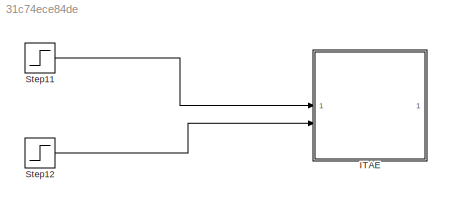
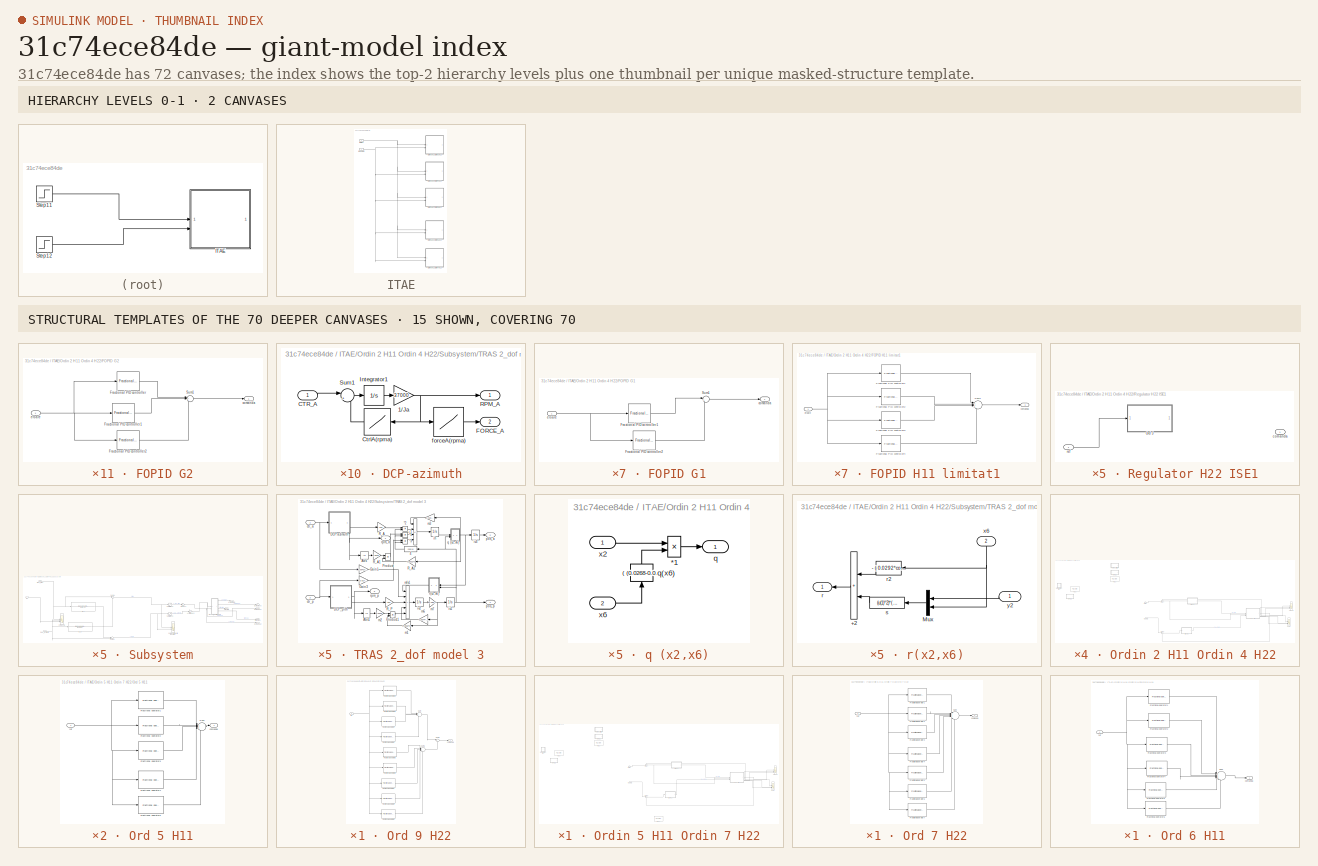
[diagram: thumbnail index - top-2 hierarchy levels (2 canvases) + 15 structural-template representatives of the remaining 70 canvases]
MODEL slx_31c74ece84de
KIND model
CONFIG AbsTol = auto
CONFIG EnableMultiTasking = off
CONFIG FixedStep = 0.000001
CONFIG MaxStep = auto
CONFIG MinStep = auto
CONFIG RelTol = 1e-3
CONFIG SampleTimeConstraint = Unconstrained
CONFIG SolverName = FixedStepAuto
CONFIG StartTime = 0.0
CONFIG StopTime = 5
BLOCK [SubSystem] ITAE
BLOCK [SubSystem] ITAE/Ordin 2 H11 Ordin 4 H22
  Commented = on
BLOCK [Scope] ITAE/Ordin 2 H11 Ordin 4 H22/AZIMUTH2
  Floating = off
  NumInputPorts = 3
  ScopeSpecificationString = Simulink.scopes.TimeScopeBlockCfg('CurrentConfiguration', extmgr.ConfigurationSet(extmgr.Configuration('Core','General UI',true),extmgr.Configuration('Core','Source UI',true),extmgr.Configuration('Sources','WiredSimulink',true,'DataLoggingSaveFormat','StructureWithTime','DataLoggingDecimation','1','DataLoggingDecimateData',true,'DataLoggingVariableName','ScopeData1'),extmgr.Configuration('Visuals'...<+3300ch>
BLOCK [SubSystem] ITAE/Ordin 2 H11 Ordin 4 H22/FOPID G1
  Commented = on
BLOCK [Reference] ITAE/Ordin 2 H11 Ordin 4 H22/FOPID G1/Fractional PID controller1  REF=fod/Fractional PID  (lib defined in slx_5cb2d42c7bef)
controller
  SourceBlock = fod/Fractional PID\ncontroller
  SourceProductName = FOMCON Toolbox
  SourceType = Fractional PID
BLOCK [Reference] ITAE/Ordin 2 H11 Ordin 4 H22/FOPID G1/Fractional PID controller2  REF=fod/Fractional PID  (lib defined in slx_5cb2d42c7bef)
controller
  SourceBlock = fod/Fractional PID\ncontroller
  SourceProductName = FOMCON Toolbox
  SourceType = Fractional PID
BLOCK [Sum] ITAE/Ordin 2 H11 Ordin 4 H22/FOPID G1/Sum1
  Inputs = |++
BLOCK [Outport] ITAE/Ordin 2 H11 Ordin 4 H22/FOPID G1/comanda
BLOCK [Inport] ITAE/Ordin 2 H11 Ordin 4 H22/FOPID G1/eroare
  NameLocation = left
BLOCK [SubSystem] ITAE/Ordin 2 H11 Ordin 4 H22/FOPID G2
  Commented = on
BLOCK [Reference] ITAE/Ordin 2 H11 Ordin 4 H22/FOPID G2/Fractional PID controller  REF=fod/Fractional PID  (lib defined in slx_5cb2d42c7bef)
controller
  SourceBlock = fod/Fractional PID\ncontroller
  SourceProductName = FOMCON Toolbox
  SourceType = Fractional PID
BLOCK [Reference] ITAE/Ordin 2 H11 Ordin 4 H22/FOPID G2/Fractional PID controller1  REF=fod/Fractional PID  (lib defined in slx_5cb2d42c7bef)
controller
  SourceBlock = fod/Fractional PID\ncontroller
  SourceProductName = FOMCON Toolbox
  SourceType = Fractional PID
BLOCK [Reference] ITAE/Ordin 2 H11 Ordin 4 H22/FOPID G2/Fractional PID controller2  REF=fod/Fractional PID  (lib defined in slx_5cb2d42c7bef)
controller
  SourceBlock = fod/Fractional PID\ncontroller
  SourceProductName = FOMCON Toolbox
  SourceType = Fractional PID
BLOCK [Sum] ITAE/Ordin 2 H11 Ordin 4 H22/FOPID G2/Sum1
  Inputs = |+++
BLOCK [Outport] ITAE/Ordin 2 H11 Ordin 4 H22/FOPID G2/comanda
BLOCK [Inport] ITAE/Ordin 2 H11 Ordin 4 H22/FOPID G2/eroare
  NameLocation = left
BLOCK [SubSystem] ITAE/Ordin 2 H11 Ordin 4 H22/FOPID H11 limitat1
  Commented = on
BLOCK [Reference] ITAE/Ordin 2 H11 Ordin 4 H22/FOPID H11 limitat1/Fractional PID controller1  REF=fod/Fractional PID  (lib defined in slx_5cb2d42c7bef)
controller
  SourceBlock = fod/Fractional PID\ncontroller
  SourceProductName = FOMCON Toolbox
  SourceType = Fractional PID
BLOCK [Reference] ITAE/Ordin 2 H11 Ordin 4 H22/FOPID H11 limitat1/Fractional PID controller2  REF=fod/Fractional PID  (lib defined in slx_5cb2d42c7bef)
controller
  SourceBlock = fod/Fractional PID\ncontroller
  SourceProductName = FOMCON Toolbox
  SourceType = Fractional PID
BLOCK [Reference] ITAE/Ordin 2 H11 Ordin 4 H22/FOPID H11 limitat1/Fractional PID controller3  REF=fod/Fractional PID  (lib defined in slx_5cb2d42c7bef)
controller
  SourceBlock = fod/Fractional PID\ncontroller
  SourceProductName = FOMCON Toolbox
  SourceType = Fractional PID
BLOCK [Reference] ITAE/Ordin 2 H11 Ordin 4 H22/FOPID H11 limitat1/Fractional PID controller4  REF=fod/Fractional PID  (lib defined in slx_5cb2d42c7bef)
controller
  SourceBlock = fod/Fractional PID\ncontroller
  SourceProductName = FOMCON Toolbox
  SourceType = Fractional PID
BLOCK [Sum] ITAE/Ordin 2 H11 Ordin 4 H22/FOPID H11 limitat1/Sum1
  Inputs = |++++
BLOCK [Outport] ITAE/Ordin 2 H11 Ordin 4 H22/FOPID H11 limitat1/comanda
BLOCK [Inport] ITAE/Ordin 2 H11 Ordin 4 H22/FOPID H11 limitat1/eroare
  NameLocation = left
BLOCK [SubSystem] ITAE/Ordin 2 H11 Ordin 4 H22/Ord 2 H11
BLOCK [Reference] ITAE/Ordin 2 H11 Ordin 4 H22/Ord 2 H11/Fractional operator1  REF=fod/Fractional  (lib defined in slx_5cb2d42c7bef)
operator
  SourceBlock = fod/Fractional\noperator
  SourceProductName = FOMCON Toolbox
  SourceType = Fractional operator
  Tag = Fractional operator
BLOCK [Reference] ITAE/Ordin 2 H11 Ordin 4 H22/Ord 2 H11/Fractional operator2  REF=fod/Fractional  (lib defined in slx_5cb2d42c7bef)
operator
  SourceBlock = fod/Fractional\noperator
  SourceProductName = FOMCON Toolbox
  SourceType = Fractional operator
  Tag = Fractional operator
BLOCK [Sum] ITAE/Ordin 2 H11 Ordin 4 H22/Ord 2 H11/Sum
  Inputs = |++
BLOCK [Outport] ITAE/Ordin 2 H11 Ordin 4 H22/Ord 2 H11/comanda
BLOCK [Inport] ITAE/Ordin 2 H11 Ordin 4 H22/Ord 2 H11/ref
BLOCK [SubSystem] ITAE/Ordin 2 H11 Ordin 4 H22/Ord 2 H22
BLOCK [Reference] ITAE/Ordin 2 H11 Ordin 4 H22/Ord 2 H22/Fractional operator1  REF=fod/Fractional  (lib defined in slx_5cb2d42c7bef)
operator
  SourceBlock = fod/Fractional\noperator
  SourceProductName = FOMCON Toolbox
  SourceType = Fractional operator
  Tag = Fractional operator
BLOCK [Reference] ITAE/Ordin 2 H11 Ordin 4 H22/Ord 2 H22/Fractional operator2  REF=fod/Fractional  (lib defined in slx_5cb2d42c7bef)
operator
  SourceBlock = fod/Fractional\noperator
  SourceProductName = FOMCON Toolbox
  SourceType = Fractional operator
  Tag = Fractional operator
BLOCK [Reference] ITAE/Ordin 2 H11 Ordin 4 H22/Ord 2 H22/Fractional operator3  REF=fod/Fractional  (lib defined in slx_5cb2d42c7bef)
operator
  SourceBlock = fod/Fractional\noperator
  SourceProductName = FOMCON Toolbox
  SourceType = Fractional operator
  Tag = Fractional operator
BLOCK [Reference] ITAE/Ordin 2 H11 Ordin 4 H22/Ord 2 H22/Fractional operator4  REF=fod/Fractional  (lib defined in slx_5cb2d42c7bef)
operator
  SourceBlock = fod/Fractional\noperator
  SourceProductName = FOMCON Toolbox
  SourceType = Fractional operator
  Tag = Fractional operator
BLOCK [Sum] ITAE/Ordin 2 H11 Ordin 4 H22/Ord 2 H22/Sum
  Inputs = |++++
BLOCK [Outport] ITAE/Ordin 2 H11 Ordin 4 H22/Ord 2 H22/comanda
BLOCK [Inport] ITAE/Ordin 2 H11 Ordin 4 H22/Ord 2 H22/ref
BLOCK [Reference] ITAE/Ordin 2 H11 Ordin 4 H22/PID H1  REF=slpidlib/PID Controller
  Commented = on
  LibrarySourceBlock = simulink/Continuous/PID Controller
  SourceBlock = slpidlib/PID Controller
  SourceType = PID 1dof
BLOCK [Reference] ITAE/Ordin 2 H11 Ordin 4 H22/PID H2  REF=slpidlib/PID Controller
  Commented = on
  LibrarySourceBlock = simulink/Continuous/PID Controller
  SourceBlock = slpidlib/PID Controller
  SourceType = PID 1dof
BLOCK [Scope] ITAE/Ordin 2 H11 Ordin 4 H22/PITCH2
  Floating = off
  NumInputPorts = 3
  ScopeSpecificationString = Simulink.scopes.TimeScopeBlockCfg('CurrentConfiguration', extmgr.ConfigurationSet(extmgr.Configuration('Core','General UI',true),extmgr.Configuration('Core','Source UI',true),extmgr.Configuration('Sources','WiredSimulink',true,'DataLoggingVariableName','ScopeData2','DataLoggingSaveFormat','StructureWithTime','DataLoggingDecimation','1','DataLoggingDecimateData',true),extmgr.Configuration('Visuals'...<+3297ch>
BLOCK [SubSystem] ITAE/Ordin 2 H11 Ordin 4 H22/Regulator H22 ISE1
  Commented = on
BLOCK [SubSystem] ITAE/Ordin 2 H11 Ordin 4 H22/Regulator H22 ISE1/Ord 3
BLOCK [Reference] ITAE/Ordin 2 H11 Ordin 4 H22/Regulator H22 ISE1/Ord 3/Fractional operator1  REF=fod/Fractional  (lib defined in slx_5cb2d42c7bef)
operator
  SourceBlock = fod/Fractional\noperator
  SourceProductName = FOMCON Toolbox
  SourceType = Fractional operator
  Tag = Fractional operator
BLOCK [Reference] ITAE/Ordin 2 H11 Ordin 4 H22/Regulator H22 ISE1/Ord 3/Fractional operator2  REF=fod/Fractional  (lib defined in slx_5cb2d42c7bef)
operator
  SourceBlock = fod/Fractional\noperator
  SourceProductName = FOMCON Toolbox
  SourceType = Fractional operator
  Tag = Fractional operator
BLOCK [Reference] ITAE/Ordin 2 H11 Ordin 4 H22/Regulator H22 ISE1/Ord 3/Fractional operator3  REF=fod/Fractional  (lib defined in slx_5cb2d42c7bef)
operator
  SourceBlock = fod/Fractional\noperator
  SourceProductName = FOMCON Toolbox
  SourceType = Fractional operator
  Tag = Fractional operator
BLOCK [Sum] ITAE/Ordin 2 H11 Ordin 4 H22/Regulator H22 ISE1/Ord 3/Sum
  Inputs = +|++
BLOCK [Outport] ITAE/Ordin 2 H11 Ordin 4 H22/Regulator H22 ISE1/Ord 3/comanda
BLOCK [Inport] ITAE/Ordin 2 H11 Ordin 4 H22/Regulator H22 ISE1/Ord 3/ref
BLOCK [Outport] ITAE/Ordin 2 H11 Ordin 4 H22/Regulator H22 ISE1/comanda
BLOCK [Inport] ITAE/Ordin 2 H11 Ordin 4 H22/Regulator H22 ISE1/ref
BLOCK [SubSystem] ITAE/Ordin 2 H11 Ordin 4 H22/Subsystem
BLOCK [Gain] ITAE/Ordin 2 H11 Ordin 4 H22/Subsystem/Azimuth H22
BLOCK [Scope] ITAE/Ordin 2 H11 Ordin 4 H22/Subsystem/Comanda
  Floating = off
  NumInputPorts = 3
  ScopeSpecificationString = Simulink.scopes.TimeScopeBlockCfg('CurrentConfiguration', extmgr.ConfigurationSet(extmgr.Configuration('Core','General UI',true),extmgr.Configuration('Core','Source UI',true),extmgr.Configuration('Sources','WiredSimulink',true,'DataLoggingSaveFormat','StructureWithTime','DataLoggingLimitDataPoints',true,'DataLoggingDecimation','1','DataLoggingDecimateData',true,'DataLoggingVariableName','ScopeData...<+3394ch>  <repeated x5 — deduplicated; at blocks: Comanda>
BLOCK [Scope] ITAE/Ordin 2 H11 Ordin 4 H22/Subsystem/Comanda Iesire regulator
  Floating = off
  NumInputPorts = 2
  ScopeSpecificationString = Simulink.scopes.TimeScopeBlockCfg('CurrentConfiguration', extmgr.ConfigurationSet(extmgr.Configuration('Core','General UI',true),extmgr.Configuration('Core','Source UI',true),extmgr.Configuration('Sources','WiredSimulink',true,'DataLoggingSaveFormat','StructureWithTime','DataLoggingLimitDataPoints',true,'DataLoggingDecimation','1','DataLoggingDecimateData',true,'DataLoggingVariableName','ScopeData...<+3298ch>  <repeated x4 — deduplicated; at blocks: Comanda Iesire regulator>
BLOCK [Outport] ITAE/Ordin 2 H11 Ordin 4 H22/Subsystem/Comanda1
  Port = 4
BLOCK [Outport] ITAE/Ordin 2 H11 Ordin 4 H22/Subsystem/Comanda2
  Port = 6
BLOCK [TransferFcn] ITAE/Ordin 2 H11 Ordin 4 H22/Subsystem/D12
  Denominator = [1 1.322]
  Numerator = [0.0019343*1 0.0019343*1.287]
BLOCK [TransferFcn] ITAE/Ordin 2 H11 Ordin 4 H22/Subsystem/D21
  Denominator = [1 5.675]
  Numerator = [0.0014712*1    0.0014712*3.527]
BLOCK [Inport] ITAE/Ordin 2 H11 Ordin 4 H22/Subsystem/In2
  Port = 2
BLOCK [Gain] ITAE/Ordin 2 H11 Ordin 4 H22/Subsystem/Pitch H11
BLOCK [Inport] ITAE/Ordin 2 H11 Ordin 4 H22/Subsystem/Reg_azimuth
  Port = 3
BLOCK [Inport] ITAE/Ordin 2 H11 Ordin 4 H22/Subsystem/Reg_pitch
BLOCK [Saturate] ITAE/Ordin 2 H11 Ordin 4 H22/Subsystem/Saturation5
  LowerLimit = -1
  RndMeth = Ceiling
  UpperLimit = 1
BLOCK [Saturate] ITAE/Ordin 2 H11 Ordin 4 H22/Subsystem/Saturation6
  LowerLimit = -1
  RndMeth = Ceiling
  UpperLimit = 1
BLOCK [Sum] ITAE/Ordin 2 H11 Ordin 4 H22/Subsystem/Sum14
  Inputs = |++
BLOCK [Sum] ITAE/Ordin 2 H11 Ordin 4 H22/Subsystem/Sum16
  Inputs = |++
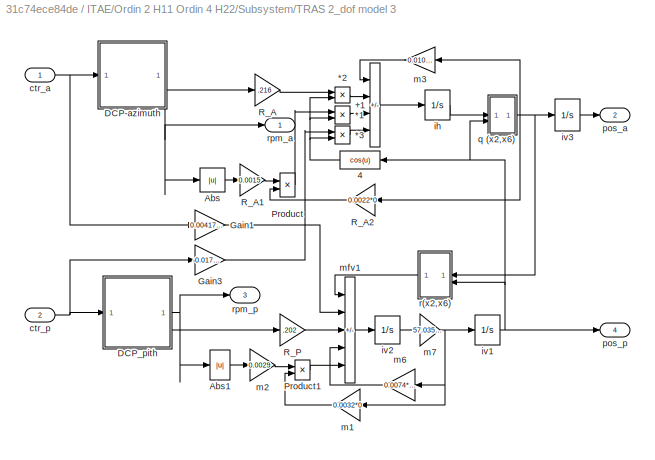
BLOCK [SubSystem] ITAE/Ordin 2 H11 Ordin 4 H22/Subsystem/TRAS 2_dof model 3
  NameLocation = top
BLOCK [Product] ITAE/Ordin 2 H11 Ordin 4 H22/Subsystem/TRAS 2_dof model 3/*1
  InputSameDT = on
  OutDataTypeStr = Inherit: Same as first input
  SaturateOnIntegerOverflow = on
BLOCK [Product] ITAE/Ordin 2 H11 Ordin 4 H22/Subsystem/TRAS 2_dof model 3/*2
  InputSameDT = on
  OutDataTypeStr = Inherit: Same as first input
  SaturateOnIntegerOverflow = on
BLOCK [Product] ITAE/Ordin 2 H11 Ordin 4 H22/Subsystem/TRAS 2_dof model 3/*3
  InputSameDT = on
  OutDataTypeStr = Inherit: Same as first input
  SaturateOnIntegerOverflow = on
BLOCK [Sum] ITAE/Ordin 2 H11 Ordin 4 H22/Subsystem/TRAS 2_dof model 3/+1
  IconShape = rectangular
  InputSameDT = on
  Inputs = -+--
  NameLocation = top
  OutDataTypeStr = Inherit: Same as first input
  SaturateOnIntegerOverflow = on
BLOCK [Fcn] ITAE/Ordin 2 H11 Ordin 4 H22/Subsystem/TRAS 2_dof model 3/4
  Expr = cos(u)
  NameLocation = top
BLOCK [Abs] ITAE/Ordin 2 H11 Ordin 4 H22/Subsystem/TRAS 2_dof model 3/Abs
BLOCK [Abs] ITAE/Ordin 2 H11 Ordin 4 H22/Subsystem/TRAS 2_dof model 3/Abs1
BLOCK [SubSystem] ITAE/Ordin 2 H11 Ordin 4 H22/Subsystem/TRAS 2_dof model 3/DCP-azimuth
  NameLocation = top
BLOCK [Gain] ITAE/Ordin 2 H11 Ordin 4 H22/Subsystem/TRAS 2_dof model 3/DCP-azimuth/1//Ja
  Gain = 37000
  OutDataTypeStr = Inherit: Same as input
  ParamDataTypeStr = Inherit: Same as input
  SaturateOnIntegerOverflow = on
BLOCK [Inport] ITAE/Ordin 2 H11 Ordin 4 H22/Subsystem/TRAS 2_dof model 3/DCP-azimuth/CTR_A
BLOCK [Lookup] ITAE/Ordin 2 H11 Ordin 4 H22/Subsystem/TRAS 2_dof model 3/DCP-azimuth/CtrlA(rpma)
  InputValues = rpm_a
  Table = control_a
BLOCK [Outport] ITAE/Ordin 2 H11 Ordin 4 H22/Subsystem/TRAS 2_dof model 3/DCP-azimuth/FORCE_A
  Port = 2
BLOCK [Integrator] ITAE/Ordin 2 H11 Ordin 4 H22/Subsystem/TRAS 2_dof model 3/DCP-azimuth/Integrator1
BLOCK [Outport] ITAE/Ordin 2 H11 Ordin 4 H22/Subsystem/TRAS 2_dof model 3/DCP-azimuth/RPM_A
BLOCK [Sum] ITAE/Ordin 2 H11 Ordin 4 H22/Subsystem/TRAS 2_dof model 3/DCP-azimuth/Sum1
  InputSameDT = on
  Inputs = |+-
  OutDataTypeStr = Inherit: Same as first input
  SaturateOnIntegerOverflow = on
BLOCK [Lookup] ITAE/Ordin 2 H11 Ordin 4 H22/Subsystem/TRAS 2_dof model 3/DCP-azimuth/forceA(rpma)
  InputValues = rpm_a
  NameLocation = top
  Table = force_a
BLOCK [SubSystem] ITAE/Ordin 2 H11 Ordin 4 H22/Subsystem/TRAS 2_dof model 3/DCP_pith
BLOCK [Gain] ITAE/Ordin 2 H11 Ordin 4 H22/Subsystem/TRAS 2_dof model 3/DCP_pith/1//Jp1
  Gain = 6100
  OutDataTypeStr = Inherit: Same as input
  ParamDataTypeStr = Inherit: Same as input
BLOCK [Inport] ITAE/Ordin 2 H11 Ordin 4 H22/Subsystem/TRAS 2_dof model 3/DCP_pith/CTR_P
BLOCK [Lookup] ITAE/Ordin 2 H11 Ordin 4 H22/Subsystem/TRAS 2_dof model 3/DCP_pith/CtrlP(rpmp)
  InputValues = rpm_p
  Table = control_p
BLOCK [Outport] ITAE/Ordin 2 H11 Ordin 4 H22/Subsystem/TRAS 2_dof model 3/DCP_pith/FORCE_P
  Port = 2
BLOCK [Integrator] ITAE/Ordin 2 H11 Ordin 4 H22/Subsystem/TRAS 2_dof model 3/DCP_pith/Integrator
BLOCK [Outport] ITAE/Ordin 2 H11 Ordin 4 H22/Subsystem/TRAS 2_dof model 3/DCP_pith/RPM_P
BLOCK [Sum] ITAE/Ordin 2 H11 Ordin 4 H22/Subsystem/TRAS 2_dof model 3/DCP_pith/Sum
  InputSameDT = on
  Inputs = |+-
  OutDataTypeStr = Inherit: Same as first input
  SaturateOnIntegerOverflow = on
BLOCK [Lookup] ITAE/Ordin 2 H11 Ordin 4 H22/Subsystem/TRAS 2_dof model 3/DCP_pith/force(rpmp)
  InputValues = rpm_p
  NameLocation = top
  Table = force_p
BLOCK [Gain] ITAE/Ordin 2 H11 Ordin 4 H22/Subsystem/TRAS 2_dof model 3/Gain1
  Gain = 0.00417495398545
  NameLocation = top
  OutDataTypeStr = Inherit: Same as input
  ParamDataTypeStr = Inherit: Same as input
  SaturateOnIntegerOverflow = on
BLOCK [Gain] ITAE/Ordin 2 H11 Ordin 4 H22/Subsystem/TRAS 2_dof model 3/Gain3
  Gain = -0.01782003784180
  NameLocation = top
  OutDataTypeStr = Inherit: Same as input
  ParamDataTypeStr = Inherit: Same as input
  SaturateOnIntegerOverflow = on
BLOCK [Product] ITAE/Ordin 2 H11 Ordin 4 H22/Subsystem/TRAS 2_dof model 3/Product
  InputSameDT = on
  OutDataTypeStr = Inherit: Same as first input
  SaturateOnIntegerOverflow = on
BLOCK [Product] ITAE/Ordin 2 H11 Ordin 4 H22/Subsystem/TRAS 2_dof model 3/Product1
  OutDataTypeStr = Inherit: Same as first input
  SaturateOnIntegerOverflow = on
BLOCK [Gain] ITAE/Ordin 2 H11 Ordin 4 H22/Subsystem/TRAS 2_dof model 3/R_A
  Gain = .216
  NameLocation = top
  OutDataTypeStr = Inherit: Same as input
  ParamDataTypeStr = Inherit: Same as input
BLOCK [Gain] ITAE/Ordin 2 H11 Ordin 4 H22/Subsystem/TRAS 2_dof model 3/R_A1
  Gain = 0.0015
  NameLocation = top
  OutDataTypeStr = Inherit: Same as input
  ParamDataTypeStr = Inherit: Same as input
BLOCK [Gain] ITAE/Ordin 2 H11 Ordin 4 H22/Subsystem/TRAS 2_dof model 3/R_A2
  Gain = 0.0022*0
  NameLocation = top
  OutDataTypeStr = Inherit: Same as input
  ParamDataTypeStr = Inherit: Same as input
BLOCK [Gain] ITAE/Ordin 2 H11 Ordin 4 H22/Subsystem/TRAS 2_dof model 3/R_P
  Gain = .202
  OutDataTypeStr = Inherit: Same as input
  ParamDataTypeStr = Inherit: Same as input
BLOCK [Inport] ITAE/Ordin 2 H11 Ordin 4 H22/Subsystem/TRAS 2_dof model 3/ctr_a
BLOCK [Inport] ITAE/Ordin 2 H11 Ordin 4 H22/Subsystem/TRAS 2_dof model 3/ctr_p
  Port = 2
BLOCK [Integrator] ITAE/Ordin 2 H11 Ordin 4 H22/Subsystem/TRAS 2_dof model 3/ih
  LowerSaturationLimit = -10
  UpperSaturationLimit = 10
BLOCK [Integrator] ITAE/Ordin 2 H11 Ordin 4 H22/Subsystem/TRAS 2_dof model 3/iv1
  LimitOutput = on
  LowerSaturationLimit = -pi/2
  NameLocation = top
  UpperSaturationLimit = pi/2
BLOCK [Integrator] ITAE/Ordin 2 H11 Ordin 4 H22/Subsystem/TRAS 2_dof model 3/iv2
  LowerSaturationLimit = -pi
  NameLocation = top
  UpperSaturationLimit = pi
BLOCK [Integrator] ITAE/Ordin 2 H11 Ordin 4 H22/Subsystem/TRAS 2_dof model 3/iv3
  LimitOutput = on
  LowerSaturationLimit = -6
  NameLocation = top
  UpperSaturationLimit = 6
BLOCK [Gain] ITAE/Ordin 2 H11 Ordin 4 H22/Subsystem/TRAS 2_dof model 3/m1
  Gain = 0.0032*0
  NameLocation = top
  OutDataTypeStr = Inherit: Same as input
  ParamDataTypeStr = Inherit: Same as input
  SaturateOnIntegerOverflow = on
BLOCK [Gain] ITAE/Ordin 2 H11 Ordin 4 H22/Subsystem/TRAS 2_dof model 3/m2
  Gain = 0.0029
  NameLocation = top
  OutDataTypeStr = Inherit: Same as input
  ParamDataTypeStr = Inherit: Same as input
  SaturateOnIntegerOverflow = on
BLOCK [Gain] ITAE/Ordin 2 H11 Ordin 4 H22/Subsystem/TRAS 2_dof model 3/m3
  Gain = 0.0108*0.4935*1.1051
  NameLocation = top
  OutDataTypeStr = Inherit: Same as input
  ParamDataTypeStr = Inherit: Same as input
BLOCK [Gain] ITAE/Ordin 2 H11 Ordin 4 H22/Subsystem/TRAS 2_dof model 3/m6
  Gain = 0.0074*1.7175
  OutDataTypeStr = Inherit: Same as input
  ParamDataTypeStr = Inherit: Same as input
BLOCK [Gain] ITAE/Ordin 2 H11 Ordin 4 H22/Subsystem/TRAS 2_dof model 3/m7
  Gain = 57.0357*0.5833
  NameLocation = top
  OutDataTypeStr = Inherit: Same as input
  ParamDataTypeStr = Inherit: Same as input
  SaturateOnIntegerOverflow = on
BLOCK [Sum] ITAE/Ordin 2 H11 Ordin 4 H22/Subsystem/TRAS 2_dof model 3/mfv1
  IconShape = rectangular
  InputSameDT = on
  Inputs = +++--
  NameLocation = top
  OutDataTypeStr = Inherit: Same as first input
  SaturateOnIntegerOverflow = on
BLOCK [Outport] ITAE/Ordin 2 H11 Ordin 4 H22/Subsystem/TRAS 2_dof model 3/pos_a
  Port = 2
BLOCK [Outport] ITAE/Ordin 2 H11 Ordin 4 H22/Subsystem/TRAS 2_dof model 3/pos_p
  Port = 4
BLOCK [SubSystem] ITAE/Ordin 2 H11 Ordin 4 H22/Subsystem/TRAS 2_dof model 3/q (x2,x6)
BLOCK [Fcn] ITAE/Ordin 2 H11 Ordin 4 H22/Subsystem/TRAS 2_dof model 3/q (x2,x6)/ q(x6)
  Expr = ( (0.0268-0.00300962066650)*cos(u)^2) +0.00300962066650
  NameLocation = left
BLOCK [Product] ITAE/Ordin 2 H11 Ordin 4 H22/Subsystem/TRAS 2_dof model 3/q (x2,x6)/*1
  InputSameDT = on
  Inputs = */
  OutDataTypeStr = Inherit: Same as first input
  SaturateOnIntegerOverflow = on
BLOCK [Outport] ITAE/Ordin 2 H11 Ordin 4 H22/Subsystem/TRAS 2_dof model 3/q (x2,x6)/q
BLOCK [Inport] ITAE/Ordin 2 H11 Ordin 4 H22/Subsystem/TRAS 2_dof model 3/q (x2,x6)/x2
BLOCK [Inport] ITAE/Ordin 2 H11 Ordin 4 H22/Subsystem/TRAS 2_dof model 3/q (x2,x6)/x6
  Port = 2
BLOCK [SubSystem] ITAE/Ordin 2 H11 Ordin 4 H22/Subsystem/TRAS 2_dof model 3/r(x2,x6)
BLOCK [Sum] ITAE/Ordin 2 H11 Ordin 4 H22/Subsystem/TRAS 2_dof model 3/r(x2,x6)/+2
  IconShape = rectangular
  InputSameDT = on
  OutDataTypeStr = Inherit: Same as first input
  SaturateOnIntegerOverflow = on
BLOCK [Mux] ITAE/Ordin 2 H11 Ordin 4 H22/Subsystem/TRAS 2_dof model 3/r(x2,x6)/Mux
  DisplayOption = bar
  Inputs = 2
  NameLocation = top
BLOCK [Outport] ITAE/Ordin 2 H11 Ordin 4 H22/Subsystem/TRAS 2_dof model 3/r(x2,x6)/r
BLOCK [Fcn] ITAE/Ordin 2 H11 Ordin 4 H22/Subsystem/TRAS 2_dof model 3/r(x2,x6)/r2
  Expr = - ( 0.0292*cos(u)+ 0.0546*sin(u))*1.7143
BLOCK [Fcn] ITAE/Ordin 2 H11 Ordin 4 H22/Subsystem/TRAS 2_dof model 3/r(x2,x6)/s
  Expr = (u(1)^2)*(     -0.07389953104162*  0.28753198180218*sin(u(2))*cos(u(2)))
BLOCK [Inport] ITAE/Ordin 2 H11 Ordin 4 H22/Subsystem/TRAS 2_dof model 3/r(x2,x6)/x6
  NameLocation = right
  Port = 2
BLOCK [Inport] ITAE/Ordin 2 H11 Ordin 4 H22/Subsystem/TRAS 2_dof model 3/r(x2,x6)/y2
BLOCK [Outport] ITAE/Ordin 2 H11 Ordin 4 H22/Subsystem/TRAS 2_dof model 3/rpm_a
BLOCK [Outport] ITAE/Ordin 2 H11 Ordin 4 H22/Subsystem/TRAS 2_dof model 3/rpm_p
  Port = 3
BLOCK [Outport] ITAE/Ordin 2 H11 Ordin 4 H22/Subsystem/azimuth pos
  Port = 2
BLOCK [Outport] ITAE/Ordin 2 H11 Ordin 4 H22/Subsystem/azimuth rpm
BLOCK [Outport] ITAE/Ordin 2 H11 Ordin 4 H22/Subsystem/pitch pos
  Port = 5
BLOCK [Outport] ITAE/Ordin 2 H11 Ordin 4 H22/Subsystem/pitch rpm
  Port = 3
BLOCK [Sum] ITAE/Ordin 2 H11 Ordin 4 H22/Sum15
  Inputs = |+-
BLOCK [Sum] ITAE/Ordin 2 H11 Ordin 4 H22/Sum17
  Inputs = -+|
BLOCK [Inport] ITAE/Ordin 2 H11 Ordin 4 H22/ref azimuth
  Port = 2
BLOCK [Inport] ITAE/Ordin 2 H11 Ordin 4 H22/ref pitch
BLOCK [SubSystem] ITAE/Ordin 3 H11 Ordin 2 H22
  Commented = on
BLOCK [Scope] ITAE/Ordin 3 H11 Ordin 2 H22/AZIMUTH2
  Floating = off
  NumInputPorts = 3
  ScopeSpecificationString = Simulink.scopes.TimeScopeBlockCfg('CurrentConfiguration', extmgr.ConfigurationSet(extmgr.Configuration('Core','General UI',true),extmgr.Configuration('Core','Source UI',true),extmgr.Configuration('Sources','WiredSimulink',true,'DataLoggingSaveFormat','StructureWithTime','DataLoggingDecimation','1','DataLoggingDecimateData',true,'DataLoggingVariableName','ScopeData1'),extmgr.Configuration('Visuals'...<+3302ch>
BLOCK [SubSystem] ITAE/Ordin 3 H11 Ordin 2 H22/FOPID G1
  Commented = on
BLOCK [Reference] ITAE/Ordin 3 H11 Ordin 2 H22/FOPID G1/Fractional PID controller1  REF=fod/Fractional PID  (lib defined in slx_5cb2d42c7bef)
controller
  SourceBlock = fod/Fractional PID\ncontroller
  SourceProductName = FOMCON Toolbox
  SourceType = Fractional PID
BLOCK [Reference] ITAE/Ordin 3 H11 Ordin 2 H22/FOPID G1/Fractional PID controller2  REF=fod/Fractional PID  (lib defined in slx_5cb2d42c7bef)
controller
  SourceBlock = fod/Fractional PID\ncontroller
  SourceProductName = FOMCON Toolbox
  SourceType = Fractional PID
BLOCK [Sum] ITAE/Ordin 3 H11 Ordin 2 H22/FOPID G1/Sum1
  Inputs = |++
BLOCK [Outport] ITAE/Ordin 3 H11 Ordin 2 H22/FOPID G1/comanda
BLOCK [Inport] ITAE/Ordin 3 H11 Ordin 2 H22/FOPID G1/eroare
  NameLocation = left
BLOCK [SubSystem] ITAE/Ordin 3 H11 Ordin 2 H22/FOPID G2
  Commented = on
BLOCK [Reference] ITAE/Ordin 3 H11 Ordin 2 H22/FOPID G2/Fractional PID controller  REF=fod/Fractional PID  (lib defined in slx_5cb2d42c7bef)
controller
  SourceBlock = fod/Fractional PID\ncontroller
  SourceProductName = FOMCON Toolbox
  SourceType = Fractional PID
BLOCK [Reference] ITAE/Ordin 3 H11 Ordin 2 H22/FOPID G2/Fractional PID controller1  REF=fod/Fractional PID  (lib defined in slx_5cb2d42c7bef)
controller
  SourceBlock = fod/Fractional PID\ncontroller
  SourceProductName = FOMCON Toolbox
  SourceType = Fractional PID
BLOCK [Reference] ITAE/Ordin 3 H11 Ordin 2 H22/FOPID G2/Fractional PID controller2  REF=fod/Fractional PID  (lib defined in slx_5cb2d42c7bef)
controller
  SourceBlock = fod/Fractional PID\ncontroller
  SourceProductName = FOMCON Toolbox
  SourceType = Fractional PID
BLOCK [Sum] ITAE/Ordin 3 H11 Ordin 2 H22/FOPID G2/Sum1
  Inputs = |+++
BLOCK [Outport] ITAE/Ordin 3 H11 Ordin 2 H22/FOPID G2/comanda
BLOCK [Inport] ITAE/Ordin 3 H11 Ordin 2 H22/FOPID G2/eroare
  NameLocation = left
BLOCK [SubSystem] ITAE/Ordin 3 H11 Ordin 2 H22/FOPID H11 limitat1
  Commented = on
BLOCK [Reference] ITAE/Ordin 3 H11 Ordin 2 H22/FOPID H11 limitat1/Fractional PID controller1  REF=fod/Fractional PID  (lib defined in slx_5cb2d42c7bef)
controller
  SourceBlock = fod/Fractional PID\ncontroller
  SourceProductName = FOMCON Toolbox
  SourceType = Fractional PID
BLOCK [Reference] ITAE/Ordin 3 H11 Ordin 2 H22/FOPID H11 limitat1/Fractional PID controller2  REF=fod/Fractional PID  (lib defined in slx_5cb2d42c7bef)
controller
  SourceBlock = fod/Fractional PID\ncontroller
  SourceProductName = FOMCON Toolbox
  SourceType = Fractional PID
BLOCK [Reference] ITAE/Ordin 3 H11 Ordin 2 H22/FOPID H11 limitat1/Fractional PID controller3  REF=fod/Fractional PID  (lib defined in slx_5cb2d42c7bef)
controller
  SourceBlock = fod/Fractional PID\ncontroller
  SourceProductName = FOMCON Toolbox
  SourceType = Fractional PID
BLOCK [Reference] ITAE/Ordin 3 H11 Ordin 2 H22/FOPID H11 limitat1/Fractional PID controller4  REF=fod/Fractional PID  (lib defined in slx_5cb2d42c7bef)
controller
  SourceBlock = fod/Fractional PID\ncontroller
  SourceProductName = FOMCON Toolbox
  SourceType = Fractional PID
BLOCK [Sum] ITAE/Ordin 3 H11 Ordin 2 H22/FOPID H11 limitat1/Sum1
  Inputs = |++++
BLOCK [Outport] ITAE/Ordin 3 H11 Ordin 2 H22/FOPID H11 limitat1/comanda
BLOCK [Inport] ITAE/Ordin 3 H11 Ordin 2 H22/FOPID H11 limitat1/eroare
  NameLocation = left
BLOCK [SubSystem] ITAE/Ordin 3 H11 Ordin 2 H22/Ord 2 H22
BLOCK [Reference] ITAE/Ordin 3 H11 Ordin 2 H22/Ord 2 H22/Fractional operator1  REF=fod/Fractional  (lib defined in slx_5cb2d42c7bef)
operator
  SourceBlock = fod/Fractional\noperator
  SourceProductName = FOMCON Toolbox
  SourceType = Fractional operator
  Tag = Fractional operator
BLOCK [Reference] ITAE/Ordin 3 H11 Ordin 2 H22/Ord 2 H22/Fractional operator2  REF=fod/Fractional  (lib defined in slx_5cb2d42c7bef)
operator
  SourceBlock = fod/Fractional\noperator
  SourceProductName = FOMCON Toolbox
  SourceType = Fractional operator
  Tag = Fractional operator
BLOCK [Sum] ITAE/Ordin 3 H11 Ordin 2 H22/Ord 2 H22/Sum
  Inputs = |++
BLOCK [Outport] ITAE/Ordin 3 H11 Ordin 2 H22/Ord 2 H22/comanda
BLOCK [Inport] ITAE/Ordin 3 H11 Ordin 2 H22/Ord 2 H22/ref
BLOCK [SubSystem] ITAE/Ordin 3 H11 Ordin 2 H22/Ord 3 H11
BLOCK [Reference] ITAE/Ordin 3 H11 Ordin 2 H22/Ord 3 H11/Fractional operator1  REF=fod/Fractional  (lib defined in slx_5cb2d42c7bef)
operator
  SourceBlock = fod/Fractional\noperator
  SourceProductName = FOMCON Toolbox
  SourceType = Fractional operator
  Tag = Fractional operator
BLOCK [Reference] ITAE/Ordin 3 H11 Ordin 2 H22/Ord 3 H11/Fractional operator2  REF=fod/Fractional  (lib defined in slx_5cb2d42c7bef)
operator
  SourceBlock = fod/Fractional\noperator
  SourceProductName = FOMCON Toolbox
  SourceType = Fractional operator
  Tag = Fractional operator
BLOCK [Reference] ITAE/Ordin 3 H11 Ordin 2 H22/Ord 3 H11/Fractional operator3  REF=fod/Fractional  (lib defined in slx_5cb2d42c7bef)
operator
  SourceBlock = fod/Fractional\noperator
  SourceProductName = FOMCON Toolbox
  SourceType = Fractional operator
  Tag = Fractional operator
BLOCK [Sum] ITAE/Ordin 3 H11 Ordin 2 H22/Ord 3 H11/Sum
  Inputs = |+++
BLOCK [Outport] ITAE/Ordin 3 H11 Ordin 2 H22/Ord 3 H11/comanda
BLOCK [Inport] ITAE/Ordin 3 H11 Ordin 2 H22/Ord 3 H11/ref
BLOCK [Reference] ITAE/Ordin 3 H11 Ordin 2 H22/PID H1  REF=slpidlib/PID Controller
  Commented = on
  LibrarySourceBlock = simulink/Continuous/PID Controller
  SourceBlock = slpidlib/PID Controller
  SourceType = PID 1dof
BLOCK [Reference] ITAE/Ordin 3 H11 Ordin 2 H22/PID H2  REF=slpidlib/PID Controller
  Commented = on
  LibrarySourceBlock = simulink/Continuous/PID Controller
  SourceBlock = slpidlib/PID Controller
  SourceType = PID 1dof
BLOCK [Scope] ITAE/Ordin 3 H11 Ordin 2 H22/PITCH2
  Floating = off
  NumInputPorts = 3
  ScopeSpecificationString = Simulink.scopes.TimeScopeBlockCfg('CurrentConfiguration', extmgr.ConfigurationSet(extmgr.Configuration('Core','General UI',true),extmgr.Configuration('Core','Source UI',true),extmgr.Configuration('Sources','WiredSimulink',true,'DataLoggingVariableName','ScopeData2','DataLoggingSaveFormat','StructureWithTime','DataLoggingDecimation','1','DataLoggingDecimateData',true),extmgr.Configuration('Visuals'...<+3300ch>
BLOCK [SubSystem] ITAE/Ordin 3 H11 Ordin 2 H22/Regulator H22 ISE1
  Commented = on
BLOCK [SubSystem] ITAE/Ordin 3 H11 Ordin 2 H22/Regulator H22 ISE1/Ord 3
BLOCK [Reference] ITAE/Ordin 3 H11 Ordin 2 H22/Regulator H22 ISE1/Ord 3/Fractional operator1  REF=fod/Fractional  (lib defined in slx_5cb2d42c7bef)
operator
  SourceBlock = fod/Fractional\noperator
  SourceProductName = FOMCON Toolbox
  SourceType = Fractional operator
  Tag = Fractional operator
BLOCK [Reference] ITAE/Ordin 3 H11 Ordin 2 H22/Regulator H22 ISE1/Ord 3/Fractional operator2  REF=fod/Fractional  (lib defined in slx_5cb2d42c7bef)
operator
  SourceBlock = fod/Fractional\noperator
  SourceProductName = FOMCON Toolbox
  SourceType = Fractional operator
  Tag = Fractional operator
BLOCK [Reference] ITAE/Ordin 3 H11 Ordin 2 H22/Regulator H22 ISE1/Ord 3/Fractional operator3  REF=fod/Fractional  (lib defined in slx_5cb2d42c7bef)
operator
  SourceBlock = fod/Fractional\noperator
  SourceProductName = FOMCON Toolbox
  SourceType = Fractional operator
  Tag = Fractional operator
BLOCK [Sum] ITAE/Ordin 3 H11 Ordin 2 H22/Regulator H22 ISE1/Ord 3/Sum
  Inputs = +|++
BLOCK [Outport] ITAE/Ordin 3 H11 Ordin 2 H22/Regulator H22 ISE1/Ord 3/comanda
BLOCK [Inport] ITAE/Ordin 3 H11 Ordin 2 H22/Regulator H22 ISE1/Ord 3/ref
BLOCK [Outport] ITAE/Ordin 3 H11 Ordin 2 H22/Regulator H22 ISE1/comanda
BLOCK [Inport] ITAE/Ordin 3 H11 Ordin 2 H22/Regulator H22 ISE1/ref
BLOCK [SubSystem] ITAE/Ordin 3 H11 Ordin 2 H22/Subsystem
BLOCK [Gain] ITAE/Ordin 3 H11 Ordin 2 H22/Subsystem/Azimuth H22
BLOCK [Scope] ITAE/Ordin 3 H11 Ordin 2 H22/Subsystem/Comanda
  Floating = off
  NumInputPorts = 3
BLOCK [Scope] ITAE/Ordin 3 H11 Ordin 2 H22/Subsystem/Comanda Iesire regulator
  Floating = off
  NumInputPorts = 2
BLOCK [Outport] ITAE/Ordin 3 H11 Ordin 2 H22/Subsystem/Comanda1
  Port = 4
BLOCK [Outport] ITAE/Ordin 3 H11 Ordin 2 H22/Subsystem/Comanda2
  Port = 6
BLOCK [TransferFcn] ITAE/Ordin 3 H11 Ordin 2 H22/Subsystem/D12
  Denominator = [1 1.322]
  Numerator = [0.0019343*1 0.0019343*1.287]
BLOCK [TransferFcn] ITAE/Ordin 3 H11 Ordin 2 H22/Subsystem/D21
  Denominator = [1 5.675]
  Numerator = [0.0014712*1    0.0014712*3.527]
BLOCK [Inport] ITAE/Ordin 3 H11 Ordin 2 H22/Subsystem/In2
  Port = 2
BLOCK [Gain] ITAE/Ordin 3 H11 Ordin 2 H22/Subsystem/Pitch H11
BLOCK [Inport] ITAE/Ordin 3 H11 Ordin 2 H22/Subsystem/Reg_azimuth
  Port = 3
BLOCK [Inport] ITAE/Ordin 3 H11 Ordin 2 H22/Subsystem/Reg_pitch
BLOCK [Saturate] ITAE/Ordin 3 H11 Ordin 2 H22/Subsystem/Saturation5
  LowerLimit = -1
  RndMeth = Ceiling
  UpperLimit = 1
BLOCK [Saturate] ITAE/Ordin 3 H11 Ordin 2 H22/Subsystem/Saturation6
  LowerLimit = -1
  RndMeth = Ceiling
  UpperLimit = 1
BLOCK [Sum] ITAE/Ordin 3 H11 Ordin 2 H22/Subsystem/Sum14
  Inputs = |++
BLOCK [Sum] ITAE/Ordin 3 H11 Ordin 2 H22/Subsystem/Sum16
  Inputs = |++
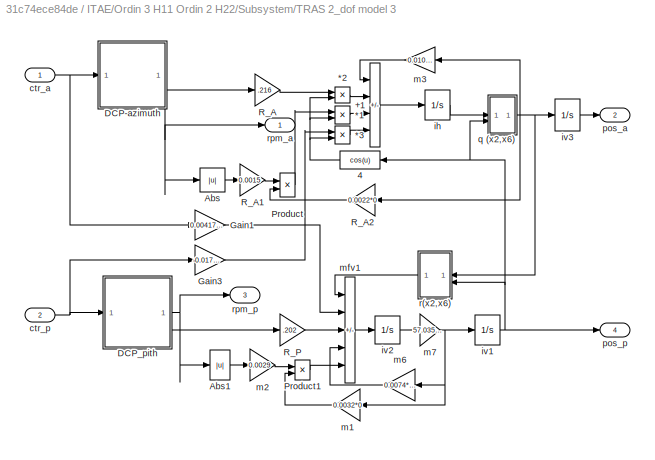
BLOCK [SubSystem] ITAE/Ordin 3 H11 Ordin 2 H22/Subsystem/TRAS 2_dof model 3
  NameLocation = top
BLOCK [Product] ITAE/Ordin 3 H11 Ordin 2 H22/Subsystem/TRAS 2_dof model 3/*1
  InputSameDT = on
  OutDataTypeStr = Inherit: Same as first input
  SaturateOnIntegerOverflow = on
BLOCK [Product] ITAE/Ordin 3 H11 Ordin 2 H22/Subsystem/TRAS 2_dof model 3/*2
  InputSameDT = on
  OutDataTypeStr = Inherit: Same as first input
  SaturateOnIntegerOverflow = on
BLOCK [Product] ITAE/Ordin 3 H11 Ordin 2 H22/Subsystem/TRAS 2_dof model 3/*3
  InputSameDT = on
  OutDataTypeStr = Inherit: Same as first input
  SaturateOnIntegerOverflow = on
BLOCK [Sum] ITAE/Ordin 3 H11 Ordin 2 H22/Subsystem/TRAS 2_dof model 3/+1
  IconShape = rectangular
  InputSameDT = on
  Inputs = -+--
  NameLocation = top
  OutDataTypeStr = Inherit: Same as first input
  SaturateOnIntegerOverflow = on
BLOCK [Fcn] ITAE/Ordin 3 H11 Ordin 2 H22/Subsystem/TRAS 2_dof model 3/4
  Expr = cos(u)
  NameLocation = top
BLOCK [Abs] ITAE/Ordin 3 H11 Ordin 2 H22/Subsystem/TRAS 2_dof model 3/Abs
BLOCK [Abs] ITAE/Ordin 3 H11 Ordin 2 H22/Subsystem/TRAS 2_dof model 3/Abs1
BLOCK [SubSystem] ITAE/Ordin 3 H11 Ordin 2 H22/Subsystem/TRAS 2_dof model 3/DCP-azimuth
  NameLocation = top
BLOCK [Gain] ITAE/Ordin 3 H11 Ordin 2 H22/Subsystem/TRAS 2_dof model 3/DCP-azimuth/1//Ja
  Gain = 37000
  OutDataTypeStr = Inherit: Same as input
  ParamDataTypeStr = Inherit: Same as input
  SaturateOnIntegerOverflow = on
BLOCK [Inport] ITAE/Ordin 3 H11 Ordin 2 H22/Subsystem/TRAS 2_dof model 3/DCP-azimuth/CTR_A
BLOCK [Lookup] ITAE/Ordin 3 H11 Ordin 2 H22/Subsystem/TRAS 2_dof model 3/DCP-azimuth/CtrlA(rpma)
  InputValues = rpm_a
  Table = control_a
BLOCK [Outport] ITAE/Ordin 3 H11 Ordin 2 H22/Subsystem/TRAS 2_dof model 3/DCP-azimuth/FORCE_A
  Port = 2
BLOCK [Integrator] ITAE/Ordin 3 H11 Ordin 2 H22/Subsystem/TRAS 2_dof model 3/DCP-azimuth/Integrator1
BLOCK [Outport] ITAE/Ordin 3 H11 Ordin 2 H22/Subsystem/TRAS 2_dof model 3/DCP-azimuth/RPM_A
BLOCK [Sum] ITAE/Ordin 3 H11 Ordin 2 H22/Subsystem/TRAS 2_dof model 3/DCP-azimuth/Sum1
  InputSameDT = on
  Inputs = |+-
  OutDataTypeStr = Inherit: Same as first input
  SaturateOnIntegerOverflow = on
BLOCK [Lookup] ITAE/Ordin 3 H11 Ordin 2 H22/Subsystem/TRAS 2_dof model 3/DCP-azimuth/forceA(rpma)
  InputValues = rpm_a
  NameLocation = top
  Table = force_a
BLOCK [SubSystem] ITAE/Ordin 3 H11 Ordin 2 H22/Subsystem/TRAS 2_dof model 3/DCP_pith
BLOCK [Gain] ITAE/Ordin 3 H11 Ordin 2 H22/Subsystem/TRAS 2_dof model 3/DCP_pith/1//Jp1
  Gain = 6100
  OutDataTypeStr = Inherit: Same as input
  ParamDataTypeStr = Inherit: Same as input
BLOCK [Inport] ITAE/Ordin 3 H11 Ordin 2 H22/Subsystem/TRAS 2_dof model 3/DCP_pith/CTR_P
BLOCK [Lookup] ITAE/Ordin 3 H11 Ordin 2 H22/Subsystem/TRAS 2_dof model 3/DCP_pith/CtrlP(rpmp)
  InputValues = rpm_p
  Table = control_p
BLOCK [Outport] ITAE/Ordin 3 H11 Ordin 2 H22/Subsystem/TRAS 2_dof model 3/DCP_pith/FORCE_P
  Port = 2
BLOCK [Integrator] ITAE/Ordin 3 H11 Ordin 2 H22/Subsystem/TRAS 2_dof model 3/DCP_pith/Integrator
BLOCK [Outport] ITAE/Ordin 3 H11 Ordin 2 H22/Subsystem/TRAS 2_dof model 3/DCP_pith/RPM_P
BLOCK [Sum] ITAE/Ordin 3 H11 Ordin 2 H22/Subsystem/TRAS 2_dof model 3/DCP_pith/Sum
  InputSameDT = on
  Inputs = |+-
  OutDataTypeStr = Inherit: Same as first input
  SaturateOnIntegerOverflow = on
BLOCK [Lookup] ITAE/Ordin 3 H11 Ordin 2 H22/Subsystem/TRAS 2_dof model 3/DCP_pith/force(rpmp)
  InputValues = rpm_p
  NameLocation = top
  Table = force_p
BLOCK [Gain] ITAE/Ordin 3 H11 Ordin 2 H22/Subsystem/TRAS 2_dof model 3/Gain1
  Gain = 0.00417495398545
  NameLocation = top
  OutDataTypeStr = Inherit: Same as input
  ParamDataTypeStr = Inherit: Same as input
  SaturateOnIntegerOverflow = on
BLOCK [Gain] ITAE/Ordin 3 H11 Ordin 2 H22/Subsystem/TRAS 2_dof model 3/Gain3
  Gain = -0.01782003784180
  NameLocation = top
  OutDataTypeStr = Inherit: Same as input
  ParamDataTypeStr = Inherit: Same as input
  SaturateOnIntegerOverflow = on
BLOCK [Product] ITAE/Ordin 3 H11 Ordin 2 H22/Subsystem/TRAS 2_dof model 3/Product
  InputSameDT = on
  OutDataTypeStr = Inherit: Same as first input
  SaturateOnIntegerOverflow = on
BLOCK [Product] ITAE/Ordin 3 H11 Ordin 2 H22/Subsystem/TRAS 2_dof model 3/Product1
  OutDataTypeStr = Inherit: Same as first input
  SaturateOnIntegerOverflow = on
BLOCK [Gain] ITAE/Ordin 3 H11 Ordin 2 H22/Subsystem/TRAS 2_dof model 3/R_A
  Gain = .216
  NameLocation = top
  OutDataTypeStr = Inherit: Same as input
  ParamDataTypeStr = Inherit: Same as input
BLOCK [Gain] ITAE/Ordin 3 H11 Ordin 2 H22/Subsystem/TRAS 2_dof model 3/R_A1
  Gain = 0.0015
  NameLocation = top
  OutDataTypeStr = Inherit: Same as input
  ParamDataTypeStr = Inherit: Same as input
BLOCK [Gain] ITAE/Ordin 3 H11 Ordin 2 H22/Subsystem/TRAS 2_dof model 3/R_A2
  Gain = 0.0022*0
  NameLocation = top
  OutDataTypeStr = Inherit: Same as input
  ParamDataTypeStr = Inherit: Same as input
BLOCK [Gain] ITAE/Ordin 3 H11 Ordin 2 H22/Subsystem/TRAS 2_dof model 3/R_P
  Gain = .202
  OutDataTypeStr = Inherit: Same as input
  ParamDataTypeStr = Inherit: Same as input
BLOCK [Inport] ITAE/Ordin 3 H11 Ordin 2 H22/Subsystem/TRAS 2_dof model 3/ctr_a
BLOCK [Inport] ITAE/Ordin 3 H11 Ordin 2 H22/Subsystem/TRAS 2_dof model 3/ctr_p
  Port = 2
BLOCK [Integrator] ITAE/Ordin 3 H11 Ordin 2 H22/Subsystem/TRAS 2_dof model 3/ih
  LowerSaturationLimit = -10
  UpperSaturationLimit = 10
BLOCK [Integrator] ITAE/Ordin 3 H11 Ordin 2 H22/Subsystem/TRAS 2_dof model 3/iv1
  LimitOutput = on
  LowerSaturationLimit = -pi/2
  NameLocation = top
  UpperSaturationLimit = pi/2
BLOCK [Integrator] ITAE/Ordin 3 H11 Ordin 2 H22/Subsystem/TRAS 2_dof model 3/iv2
  LowerSaturationLimit = -pi
  NameLocation = top
  UpperSaturationLimit = pi
BLOCK [Integrator] ITAE/Ordin 3 H11 Ordin 2 H22/Subsystem/TRAS 2_dof model 3/iv3
  LimitOutput = on
  LowerSaturationLimit = -6
  NameLocation = top
  UpperSaturationLimit = 6
BLOCK [Gain] ITAE/Ordin 3 H11 Ordin 2 H22/Subsystem/TRAS 2_dof model 3/m1
  Gain = 0.0032*0
  NameLocation = top
  OutDataTypeStr = Inherit: Same as input
  ParamDataTypeStr = Inherit: Same as input
  SaturateOnIntegerOverflow = on
BLOCK [Gain] ITAE/Ordin 3 H11 Ordin 2 H22/Subsystem/TRAS 2_dof model 3/m2
  Gain = 0.0029
  NameLocation = top
  OutDataTypeStr = Inherit: Same as input
  ParamDataTypeStr = Inherit: Same as input
  SaturateOnIntegerOverflow = on
BLOCK [Gain] ITAE/Ordin 3 H11 Ordin 2 H22/Subsystem/TRAS 2_dof model 3/m3
  Gain = 0.0108*0.4935*1.1051
  NameLocation = top
  OutDataTypeStr = Inherit: Same as input
  ParamDataTypeStr = Inherit: Same as input
BLOCK [Gain] ITAE/Ordin 3 H11 Ordin 2 H22/Subsystem/TRAS 2_dof model 3/m6
  Gain = 0.0074*1.7175
  OutDataTypeStr = Inherit: Same as input
  ParamDataTypeStr = Inherit: Same as input
BLOCK [Gain] ITAE/Ordin 3 H11 Ordin 2 H22/Subsystem/TRAS 2_dof model 3/m7
  Gain = 57.0357*0.5833
  NameLocation = top
  OutDataTypeStr = Inherit: Same as input
  ParamDataTypeStr = Inherit: Same as input
  SaturateOnIntegerOverflow = on
BLOCK [Sum] ITAE/Ordin 3 H11 Ordin 2 H22/Subsystem/TRAS 2_dof model 3/mfv1
  IconShape = rectangular
  InputSameDT = on
  Inputs = +++--
  NameLocation = top
  OutDataTypeStr = Inherit: Same as first input
  SaturateOnIntegerOverflow = on
BLOCK [Outport] ITAE/Ordin 3 H11 Ordin 2 H22/Subsystem/TRAS 2_dof model 3/pos_a
  Port = 2
BLOCK [Outport] ITAE/Ordin 3 H11 Ordin 2 H22/Subsystem/TRAS 2_dof model 3/pos_p
  Port = 4
BLOCK [SubSystem] ITAE/Ordin 3 H11 Ordin 2 H22/Subsystem/TRAS 2_dof model 3/q (x2,x6)
BLOCK [Fcn] ITAE/Ordin 3 H11 Ordin 2 H22/Subsystem/TRAS 2_dof model 3/q (x2,x6)/ q(x6)
  Expr = ( (0.0268-0.00300962066650)*cos(u)^2) +0.00300962066650
  NameLocation = left
BLOCK [Product] ITAE/Ordin 3 H11 Ordin 2 H22/Subsystem/TRAS 2_dof model 3/q (x2,x6)/*1
  InputSameDT = on
  Inputs = */
  OutDataTypeStr = Inherit: Same as first input
  SaturateOnIntegerOverflow = on
BLOCK [Outport] ITAE/Ordin 3 H11 Ordin 2 H22/Subsystem/TRAS 2_dof model 3/q (x2,x6)/q
BLOCK [Inport] ITAE/Ordin 3 H11 Ordin 2 H22/Subsystem/TRAS 2_dof model 3/q (x2,x6)/x2
BLOCK [Inport] ITAE/Ordin 3 H11 Ordin 2 H22/Subsystem/TRAS 2_dof model 3/q (x2,x6)/x6
  Port = 2
BLOCK [SubSystem] ITAE/Ordin 3 H11 Ordin 2 H22/Subsystem/TRAS 2_dof model 3/r(x2,x6)
BLOCK [Sum] ITAE/Ordin 3 H11 Ordin 2 H22/Subsystem/TRAS 2_dof model 3/r(x2,x6)/+2
  IconShape = rectangular
  InputSameDT = on
  OutDataTypeStr = Inherit: Same as first input
  SaturateOnIntegerOverflow = on
BLOCK [Mux] ITAE/Ordin 3 H11 Ordin 2 H22/Subsystem/TRAS 2_dof model 3/r(x2,x6)/Mux
  DisplayOption = bar
  Inputs = 2
  NameLocation = top
BLOCK [Outport] ITAE/Ordin 3 H11 Ordin 2 H22/Subsystem/TRAS 2_dof model 3/r(x2,x6)/r
BLOCK [Fcn] ITAE/Ordin 3 H11 Ordin 2 H22/Subsystem/TRAS 2_dof model 3/r(x2,x6)/r2
  Expr = - ( 0.0292*cos(u)+ 0.0546*sin(u))*1.7143
BLOCK [Fcn] ITAE/Ordin 3 H11 Ordin 2 H22/Subsystem/TRAS 2_dof model 3/r(x2,x6)/s
  Expr = (u(1)^2)*(     -0.07389953104162*  0.28753198180218*sin(u(2))*cos(u(2)))
BLOCK [Inport] ITAE/Ordin 3 H11 Ordin 2 H22/Subsystem/TRAS 2_dof model 3/r(x2,x6)/x6
  NameLocation = right
  Port = 2
BLOCK [Inport] ITAE/Ordin 3 H11 Ordin 2 H22/Subsystem/TRAS 2_dof model 3/r(x2,x6)/y2
BLOCK [Outport] ITAE/Ordin 3 H11 Ordin 2 H22/Subsystem/TRAS 2_dof model 3/rpm_a
BLOCK [Outport] ITAE/Ordin 3 H11 Ordin 2 H22/Subsystem/TRAS 2_dof model 3/rpm_p
  Port = 3
BLOCK [Outport] ITAE/Ordin 3 H11 Ordin 2 H22/Subsystem/azimuth pos
  Port = 2
BLOCK [Outport] ITAE/Ordin 3 H11 Ordin 2 H22/Subsystem/azimuth rpm
BLOCK [Outport] ITAE/Ordin 3 H11 Ordin 2 H22/Subsystem/pitch pos
  Port = 5
BLOCK [Outport] ITAE/Ordin 3 H11 Ordin 2 H22/Subsystem/pitch rpm
  Port = 3
BLOCK [Sum] ITAE/Ordin 3 H11 Ordin 2 H22/Sum15
  Inputs = |+-
BLOCK [Sum] ITAE/Ordin 3 H11 Ordin 2 H22/Sum17
  Inputs = -+|
BLOCK [Inport] ITAE/Ordin 3 H11 Ordin 2 H22/ref azimuth
  Port = 2
BLOCK [Inport] ITAE/Ordin 3 H11 Ordin 2 H22/ref pitch
BLOCK [SubSystem] ITAE/Ordin 4 H11 Ordin 9 H22
  Commented = on
BLOCK [Scope] ITAE/Ordin 4 H11 Ordin 9 H22/AZIMUTH2
  Floating = off
  NumInputPorts = 3
  ScopeSpecificationString = Simulink.scopes.TimeScopeBlockCfg('CurrentConfiguration', extmgr.ConfigurationSet(extmgr.Configuration('Core','General UI',true),extmgr.Configuration('Core','Source UI',true),extmgr.Configuration('Sources','WiredSimulink',true,'DataLoggingSaveFormat','StructureWithTime','DataLoggingDecimation','1','DataLoggingDecimateData',true,'DataLoggingVariableName','ScopeData1'),extmgr.Configuration('Visuals'...<+3301ch>
BLOCK [SubSystem] ITAE/Ordin 4 H11 Ordin 9 H22/FOPID G1
  Commented = on
BLOCK [Reference] ITAE/Ordin 4 H11 Ordin 9 H22/FOPID G1/Fractional PID controller1  REF=fod/Fractional PID  (lib defined in slx_5cb2d42c7bef)
controller
  SourceBlock = fod/Fractional PID\ncontroller
  SourceProductName = FOMCON Toolbox
  SourceType = Fractional PID
BLOCK [Reference] ITAE/Ordin 4 H11 Ordin 9 H22/FOPID G1/Fractional PID controller2  REF=fod/Fractional PID  (lib defined in slx_5cb2d42c7bef)
controller
  SourceBlock = fod/Fractional PID\ncontroller
  SourceProductName = FOMCON Toolbox
  SourceType = Fractional PID
BLOCK [Sum] ITAE/Ordin 4 H11 Ordin 9 H22/FOPID G1/Sum1
  Inputs = |++
BLOCK [Outport] ITAE/Ordin 4 H11 Ordin 9 H22/FOPID G1/comanda
BLOCK [Inport] ITAE/Ordin 4 H11 Ordin 9 H22/FOPID G1/eroare
  NameLocation = left
BLOCK [SubSystem] ITAE/Ordin 4 H11 Ordin 9 H22/FOPID G2
  Commented = on
BLOCK [Reference] ITAE/Ordin 4 H11 Ordin 9 H22/FOPID G2/Fractional PID controller  REF=fod/Fractional PID  (lib defined in slx_5cb2d42c7bef)
controller
  SourceBlock = fod/Fractional PID\ncontroller
  SourceProductName = FOMCON Toolbox
  SourceType = Fractional PID
BLOCK [Reference] ITAE/Ordin 4 H11 Ordin 9 H22/FOPID G2/Fractional PID controller1  REF=fod/Fractional PID  (lib defined in slx_5cb2d42c7bef)
controller
  SourceBlock = fod/Fractional PID\ncontroller
  SourceProductName = FOMCON Toolbox
  SourceType = Fractional PID
BLOCK [Reference] ITAE/Ordin 4 H11 Ordin 9 H22/FOPID G2/Fractional PID controller2  REF=fod/Fractional PID  (lib defined in slx_5cb2d42c7bef)
controller
  SourceBlock = fod/Fractional PID\ncontroller
  SourceProductName = FOMCON Toolbox
  SourceType = Fractional PID
BLOCK [Sum] ITAE/Ordin 4 H11 Ordin 9 H22/FOPID G2/Sum1
  Inputs = |+++
BLOCK [Outport] ITAE/Ordin 4 H11 Ordin 9 H22/FOPID G2/comanda
BLOCK [Inport] ITAE/Ordin 4 H11 Ordin 9 H22/FOPID G2/eroare
  NameLocation = left
BLOCK [SubSystem] ITAE/Ordin 4 H11 Ordin 9 H22/FOPID H11 limitat1
  Commented = on
BLOCK [Reference] ITAE/Ordin 4 H11 Ordin 9 H22/FOPID H11 limitat1/Fractional PID controller1  REF=fod/Fractional PID  (lib defined in slx_5cb2d42c7bef)
controller
  SourceBlock = fod/Fractional PID\ncontroller
  SourceProductName = FOMCON Toolbox
  SourceType = Fractional PID
BLOCK [Reference] ITAE/Ordin 4 H11 Ordin 9 H22/FOPID H11 limitat1/Fractional PID controller2  REF=fod/Fractional PID  (lib defined in slx_5cb2d42c7bef)
controller
  SourceBlock = fod/Fractional PID\ncontroller
  SourceProductName = FOMCON Toolbox
  SourceType = Fractional PID
BLOCK [Reference] ITAE/Ordin 4 H11 Ordin 9 H22/FOPID H11 limitat1/Fractional PID controller3  REF=fod/Fractional PID  (lib defined in slx_5cb2d42c7bef)
controller
  SourceBlock = fod/Fractional PID\ncontroller
  SourceProductName = FOMCON Toolbox
  SourceType = Fractional PID
BLOCK [Reference] ITAE/Ordin 4 H11 Ordin 9 H22/FOPID H11 limitat1/Fractional PID controller4  REF=fod/Fractional PID  (lib defined in slx_5cb2d42c7bef)
controller
  SourceBlock = fod/Fractional PID\ncontroller
  SourceProductName = FOMCON Toolbox
  SourceType = Fractional PID
BLOCK [Sum] ITAE/Ordin 4 H11 Ordin 9 H22/FOPID H11 limitat1/Sum1
  Inputs = |++++
BLOCK [Outport] ITAE/Ordin 4 H11 Ordin 9 H22/FOPID H11 limitat1/comanda
BLOCK [Inport] ITAE/Ordin 4 H11 Ordin 9 H22/FOPID H11 limitat1/eroare
  NameLocation = left
BLOCK [SubSystem] ITAE/Ordin 4 H11 Ordin 9 H22/Ord 4 H11
BLOCK [Reference] ITAE/Ordin 4 H11 Ordin 9 H22/Ord 4 H11/Fractional operator1  REF=fod/Fractional  (lib defined in slx_5cb2d42c7bef)
operator
  SourceBlock = fod/Fractional\noperator
  SourceProductName = FOMCON Toolbox
  SourceType = Fractional operator
  Tag = Fractional operator
BLOCK [Reference] ITAE/Ordin 4 H11 Ordin 9 H22/Ord 4 H11/Fractional operator2  REF=fod/Fractional  (lib defined in slx_5cb2d42c7bef)
operator
  SourceBlock = fod/Fractional\noperator
  SourceProductName = FOMCON Toolbox
  SourceType = Fractional operator
  Tag = Fractional operator
BLOCK [Reference] ITAE/Ordin 4 H11 Ordin 9 H22/Ord 4 H11/Fractional operator3  REF=fod/Fractional  (lib defined in slx_5cb2d42c7bef)
operator
  SourceBlock = fod/Fractional\noperator
  SourceProductName = FOMCON Toolbox
  SourceType = Fractional operator
  Tag = Fractional operator
BLOCK [Reference] ITAE/Ordin 4 H11 Ordin 9 H22/Ord 4 H11/Fractional operator4  REF=fod/Fractional  (lib defined in slx_5cb2d42c7bef)
operator
  SourceBlock = fod/Fractional\noperator
  SourceProductName = FOMCON Toolbox
  SourceType = Fractional operator
  Tag = Fractional operator
BLOCK [Sum] ITAE/Ordin 4 H11 Ordin 9 H22/Ord 4 H11/Sum
  Inputs = |++++
BLOCK [Outport] ITAE/Ordin 4 H11 Ordin 9 H22/Ord 4 H11/comanda
BLOCK [Inport] ITAE/Ordin 4 H11 Ordin 9 H22/Ord 4 H11/ref
BLOCK [SubSystem] ITAE/Ordin 4 H11 Ordin 9 H22/Ord 9 H22
BLOCK [Reference] ITAE/Ordin 4 H11 Ordin 9 H22/Ord 9 H22/Fractional operator1  REF=fod/Fractional  (lib defined in slx_5cb2d42c7bef)
operator
  SourceBlock = fod/Fractional\noperator
  SourceProductName = FOMCON Toolbox
  SourceType = Fractional operator
  Tag = Fractional operator
BLOCK [Reference] ITAE/Ordin 4 H11 Ordin 9 H22/Ord 9 H22/Fractional operator2  REF=fod/Fractional  (lib defined in slx_5cb2d42c7bef)
operator
  SourceBlock = fod/Fractional\noperator
  SourceProductName = FOMCON Toolbox
  SourceType = Fractional operator
  Tag = Fractional operator
BLOCK [Reference] ITAE/Ordin 4 H11 Ordin 9 H22/Ord 9 H22/Fractional operator3  REF=fod/Fractional  (lib defined in slx_5cb2d42c7bef)
operator
  SourceBlock = fod/Fractional\noperator
  SourceProductName = FOMCON Toolbox
  SourceType = Fractional operator
  Tag = Fractional operator
BLOCK [Reference] ITAE/Ordin 4 H11 Ordin 9 H22/Ord 9 H22/Fractional operator4  REF=fod/Fractional  (lib defined in slx_5cb2d42c7bef)
operator
  SourceBlock = fod/Fractional\noperator
  SourceProductName = FOMCON Toolbox
  SourceType = Fractional operator
  Tag = Fractional operator
BLOCK [Reference] ITAE/Ordin 4 H11 Ordin 9 H22/Ord 9 H22/Fractional operator5  REF=fod/Fractional  (lib defined in slx_5cb2d42c7bef)
operator
  SourceBlock = fod/Fractional\noperator
  SourceProductName = FOMCON Toolbox
  SourceType = Fractional operator
  Tag = Fractional operator
BLOCK [Reference] ITAE/Ordin 4 H11 Ordin 9 H22/Ord 9 H22/Fractional operator6  REF=fod/Fractional  (lib defined in slx_5cb2d42c7bef)
operator
  SourceBlock = fod/Fractional\noperator
  SourceProductName = FOMCON Toolbox
  SourceType = Fractional operator
  Tag = Fractional operator
BLOCK [Reference] ITAE/Ordin 4 H11 Ordin 9 H22/Ord 9 H22/Fractional operator7  REF=fod/Fractional  (lib defined in slx_5cb2d42c7bef)
operator
  SourceBlock = fod/Fractional\noperator
  SourceProductName = FOMCON Toolbox
  SourceType = Fractional operator
  Tag = Fractional operator
BLOCK [Reference] ITAE/Ordin 4 H11 Ordin 9 H22/Ord 9 H22/Fractional operator8  REF=fod/Fractional  (lib defined in slx_5cb2d42c7bef)
operator
  SourceBlock = fod/Fractional\noperator
  SourceProductName = FOMCON Toolbox
  SourceType = Fractional operator
  Tag = Fractional operator
BLOCK [Reference] ITAE/Ordin 4 H11 Ordin 9 H22/Ord 9 H22/Fractional operator9  REF=fod/Fractional  (lib defined in slx_5cb2d42c7bef)
operator
  SourceBlock = fod/Fractional\noperator
  SourceProductName = FOMCON Toolbox
  SourceType = Fractional operator
  Tag = Fractional operator
BLOCK [Sum] ITAE/Ordin 4 H11 Ordin 9 H22/Ord 9 H22/Sum
  Inputs = |++++
BLOCK [Sum] ITAE/Ordin 4 H11 Ordin 9 H22/Ord 9 H22/Sum1
  Inputs = |+++++
BLOCK [Sum] ITAE/Ordin 4 H11 Ordin 9 H22/Ord 9 H22/Sum2
  Inputs = |++
BLOCK [Outport] ITAE/Ordin 4 H11 Ordin 9 H22/Ord 9 H22/comanda
BLOCK [Inport] ITAE/Ordin 4 H11 Ordin 9 H22/Ord 9 H22/ref
BLOCK [Reference] ITAE/Ordin 4 H11 Ordin 9 H22/PID H1  REF=slpidlib/PID Controller
  Commented = on
  LibrarySourceBlock = simulink/Continuous/PID Controller
  SourceBlock = slpidlib/PID Controller
  SourceType = PID 1dof
BLOCK [Reference] ITAE/Ordin 4 H11 Ordin 9 H22/PID H2  REF=slpidlib/PID Controller
  Commented = on
  LibrarySourceBlock = simulink/Continuous/PID Controller
  SourceBlock = slpidlib/PID Controller
  SourceType = PID 1dof
BLOCK [Scope] ITAE/Ordin 4 H11 Ordin 9 H22/PITCH2
  Floating = off
  NumInputPorts = 3
  ScopeSpecificationString = Simulink.scopes.TimeScopeBlockCfg('CurrentConfiguration', extmgr.ConfigurationSet(extmgr.Configuration('Core','General UI',true),extmgr.Configuration('Core','Source UI',true),extmgr.Configuration('Sources','WiredSimulink',true,'DataLoggingVariableName','ScopeData2','DataLoggingSaveFormat','StructureWithTime','DataLoggingDecimation','1','DataLoggingDecimateData',true),extmgr.Configuration('Visuals'...<+3294ch>
BLOCK [SubSystem] ITAE/Ordin 4 H11 Ordin 9 H22/Regulator H22 ISE1
  Commented = on
BLOCK [SubSystem] ITAE/Ordin 4 H11 Ordin 9 H22/Regulator H22 ISE1/Ord 3
BLOCK [Reference] ITAE/Ordin 4 H11 Ordin 9 H22/Regulator H22 ISE1/Ord 3/Fractional operator1  REF=fod/Fractional  (lib defined in slx_5cb2d42c7bef)
operator
  SourceBlock = fod/Fractional\noperator
  SourceProductName = FOMCON Toolbox
  SourceType = Fractional operator
  Tag = Fractional operator
BLOCK [Reference] ITAE/Ordin 4 H11 Ordin 9 H22/Regulator H22 ISE1/Ord 3/Fractional operator2  REF=fod/Fractional  (lib defined in slx_5cb2d42c7bef)
operator
  SourceBlock = fod/Fractional\noperator
  SourceProductName = FOMCON Toolbox
  SourceType = Fractional operator
  Tag = Fractional operator
BLOCK [Reference] ITAE/Ordin 4 H11 Ordin 9 H22/Regulator H22 ISE1/Ord 3/Fractional operator3  REF=fod/Fractional  (lib defined in slx_5cb2d42c7bef)
operator
  SourceBlock = fod/Fractional\noperator
  SourceProductName = FOMCON Toolbox
  SourceType = Fractional operator
  Tag = Fractional operator
BLOCK [Sum] ITAE/Ordin 4 H11 Ordin 9 H22/Regulator H22 ISE1/Ord 3/Sum
  Inputs = +|++
BLOCK [Outport] ITAE/Ordin 4 H11 Ordin 9 H22/Regulator H22 ISE1/Ord 3/comanda
BLOCK [Inport] ITAE/Ordin 4 H11 Ordin 9 H22/Regulator H22 ISE1/Ord 3/ref
BLOCK [Outport] ITAE/Ordin 4 H11 Ordin 9 H22/Regulator H22 ISE1/comanda
BLOCK [Inport] ITAE/Ordin 4 H11 Ordin 9 H22/Regulator H22 ISE1/ref
BLOCK [SubSystem] ITAE/Ordin 4 H11 Ordin 9 H22/Subsystem
BLOCK [Gain] ITAE/Ordin 4 H11 Ordin 9 H22/Subsystem/Azimuth H22
BLOCK [Scope] ITAE/Ordin 4 H11 Ordin 9 H22/Subsystem/Comanda
  Floating = off
  NumInputPorts = 3
BLOCK [Scope] ITAE/Ordin 4 H11 Ordin 9 H22/Subsystem/Comanda Iesire regulator
  Floating = off
  NumInputPorts = 2
BLOCK [Outport] ITAE/Ordin 4 H11 Ordin 9 H22/Subsystem/Comanda1
  Port = 4
BLOCK [Outport] ITAE/Ordin 4 H11 Ordin 9 H22/Subsystem/Comanda2
  Port = 6
BLOCK [TransferFcn] ITAE/Ordin 4 H11 Ordin 9 H22/Subsystem/D12
  Denominator = [1 1.322]
  Numerator = [0.0019343*1 0.0019343*1.287]
BLOCK [TransferFcn] ITAE/Ordin 4 H11 Ordin 9 H22/Subsystem/D21
  Denominator = [1 5.675]
  Numerator = [0.0014712*1    0.0014712*3.527]
BLOCK [Inport] ITAE/Ordin 4 H11 Ordin 9 H22/Subsystem/In2
  Port = 2
BLOCK [Gain] ITAE/Ordin 4 H11 Ordin 9 H22/Subsystem/Pitch H11
BLOCK [Inport] ITAE/Ordin 4 H11 Ordin 9 H22/Subsystem/Reg_azimuth
  Port = 3
BLOCK [Inport] ITAE/Ordin 4 H11 Ordin 9 H22/Subsystem/Reg_pitch
BLOCK [Saturate] ITAE/Ordin 4 H11 Ordin 9 H22/Subsystem/Saturation5
  LowerLimit = -1
  RndMeth = Ceiling
  UpperLimit = 1
BLOCK [Saturate] ITAE/Ordin 4 H11 Ordin 9 H22/Subsystem/Saturation6
  LowerLimit = -1
  RndMeth = Ceiling
  UpperLimit = 1
BLOCK [Sum] ITAE/Ordin 4 H11 Ordin 9 H22/Subsystem/Sum14
  Inputs = |++
BLOCK [Sum] ITAE/Ordin 4 H11 Ordin 9 H22/Subsystem/Sum16
  Inputs = |++
BLOCK [SubSystem] ITAE/Ordin 4 H11 Ordin 9 H22/Subsystem/TRAS 2_dof model 3
  NameLocation = top
BLOCK [Product] ITAE/Ordin 4 H11 Ordin 9 H22/Subsystem/TRAS 2_dof model 3/*1
  InputSameDT = on
  OutDataTypeStr = Inherit: Same as first input
  SaturateOnIntegerOverflow = on
BLOCK [Product] ITAE/Ordin 4 H11 Ordin 9 H22/Subsystem/TRAS 2_dof model 3/*2
  InputSameDT = on
  OutDataTypeStr = Inherit: Same as first input
  SaturateOnIntegerOverflow = on
BLOCK [Product] ITAE/Ordin 4 H11 Ordin 9 H22/Subsystem/TRAS 2_dof model 3/*3
  InputSameDT = on
  OutDataTypeStr = Inherit: Same as first input
  SaturateOnIntegerOverflow = on
BLOCK [Sum] ITAE/Ordin 4 H11 Ordin 9 H22/Subsystem/TRAS 2_dof model 3/+1
  IconShape = rectangular
  InputSameDT = on
  Inputs = -+--
  NameLocation = top
  OutDataTypeStr = Inherit: Same as first input
  SaturateOnIntegerOverflow = on
BLOCK [Fcn] ITAE/Ordin 4 H11 Ordin 9 H22/Subsystem/TRAS 2_dof model 3/4
  Expr = cos(u)
  NameLocation = top
BLOCK [Abs] ITAE/Ordin 4 H11 Ordin 9 H22/Subsystem/TRAS 2_dof model 3/Abs
BLOCK [Abs] ITAE/Ordin 4 H11 Ordin 9 H22/Subsystem/TRAS 2_dof model 3/Abs1
BLOCK [SubSystem] ITAE/Ordin 4 H11 Ordin 9 H22/Subsystem/TRAS 2_dof model 3/DCP-azimuth
  NameLocation = top
BLOCK [Gain] ITAE/Ordin 4 H11 Ordin 9 H22/Subsystem/TRAS 2_dof model 3/DCP-azimuth/1//Ja
  Gain = 37000
  OutDataTypeStr = Inherit: Same as input
  ParamDataTypeStr = Inherit: Same as input
  SaturateOnIntegerOverflow = on
BLOCK [Inport] ITAE/Ordin 4 H11 Ordin 9 H22/Subsystem/TRAS 2_dof model 3/DCP-azimuth/CTR_A
BLOCK [Lookup] ITAE/Ordin 4 H11 Ordin 9 H22/Subsystem/TRAS 2_dof model 3/DCP-azimuth/CtrlA(rpma)
  InputValues = rpm_a
  Table = control_a
BLOCK [Outport] ITAE/Ordin 4 H11 Ordin 9 H22/Subsystem/TRAS 2_dof model 3/DCP-azimuth/FORCE_A
  Port = 2
BLOCK [Integrator] ITAE/Ordin 4 H11 Ordin 9 H22/Subsystem/TRAS 2_dof model 3/DCP-azimuth/Integrator1
BLOCK [Outport] ITAE/Ordin 4 H11 Ordin 9 H22/Subsystem/TRAS 2_dof model 3/DCP-azimuth/RPM_A
BLOCK [Sum] ITAE/Ordin 4 H11 Ordin 9 H22/Subsystem/TRAS 2_dof model 3/DCP-azimuth/Sum1
  InputSameDT = on
  Inputs = |+-
  OutDataTypeStr = Inherit: Same as first input
  SaturateOnIntegerOverflow = on
BLOCK [Lookup] ITAE/Ordin 4 H11 Ordin 9 H22/Subsystem/TRAS 2_dof model 3/DCP-azimuth/forceA(rpma)
  InputValues = rpm_a
  NameLocation = top
  Table = force_a
BLOCK [SubSystem] ITAE/Ordin 4 H11 Ordin 9 H22/Subsystem/TRAS 2_dof model 3/DCP_pith
BLOCK [Gain] ITAE/Ordin 4 H11 Ordin 9 H22/Subsystem/TRAS 2_dof model 3/DCP_pith/1//Jp1
  Gain = 6100
  OutDataTypeStr = Inherit: Same as input
  ParamDataTypeStr = Inherit: Same as input
BLOCK [Inport] ITAE/Ordin 4 H11 Ordin 9 H22/Subsystem/TRAS 2_dof model 3/DCP_pith/CTR_P
BLOCK [Lookup] ITAE/Ordin 4 H11 Ordin 9 H22/Subsystem/TRAS 2_dof model 3/DCP_pith/CtrlP(rpmp)
  InputValues = rpm_p
  Table = control_p
BLOCK [Outport] ITAE/Ordin 4 H11 Ordin 9 H22/Subsystem/TRAS 2_dof model 3/DCP_pith/FORCE_P
  Port = 2
BLOCK [Integrator] ITAE/Ordin 4 H11 Ordin 9 H22/Subsystem/TRAS 2_dof model 3/DCP_pith/Integrator
BLOCK [Outport] ITAE/Ordin 4 H11 Ordin 9 H22/Subsystem/TRAS 2_dof model 3/DCP_pith/RPM_P
BLOCK [Sum] ITAE/Ordin 4 H11 Ordin 9 H22/Subsystem/TRAS 2_dof model 3/DCP_pith/Sum
  InputSameDT = on
  Inputs = |+-
  OutDataTypeStr = Inherit: Same as first input
  SaturateOnIntegerOverflow = on
BLOCK [Lookup] ITAE/Ordin 4 H11 Ordin 9 H22/Subsystem/TRAS 2_dof model 3/DCP_pith/force(rpmp)
  InputValues = rpm_p
  NameLocation = top
  Table = force_p
BLOCK [Gain] ITAE/Ordin 4 H11 Ordin 9 H22/Subsystem/TRAS 2_dof model 3/Gain1
  Gain = 0.00417495398545
  NameLocation = top
  OutDataTypeStr = Inherit: Same as input
  ParamDataTypeStr = Inherit: Same as input
  SaturateOnIntegerOverflow = on
BLOCK [Gain] ITAE/Ordin 4 H11 Ordin 9 H22/Subsystem/TRAS 2_dof model 3/Gain3
  Gain = -0.01782003784180
  NameLocation = top
  OutDataTypeStr = Inherit: Same as input
  ParamDataTypeStr = Inherit: Same as input
  SaturateOnIntegerOverflow = on
BLOCK [Product] ITAE/Ordin 4 H11 Ordin 9 H22/Subsystem/TRAS 2_dof model 3/Product
  InputSameDT = on
  OutDataTypeStr = Inherit: Same as first input
  SaturateOnIntegerOverflow = on
BLOCK [Product] ITAE/Ordin 4 H11 Ordin 9 H22/Subsystem/TRAS 2_dof model 3/Product1
  OutDataTypeStr = Inherit: Same as first input
  SaturateOnIntegerOverflow = on
BLOCK [Gain] ITAE/Ordin 4 H11 Ordin 9 H22/Subsystem/TRAS 2_dof model 3/R_A
  Gain = .216
  NameLocation = top
  OutDataTypeStr = Inherit: Same as input
  ParamDataTypeStr = Inherit: Same as input
BLOCK [Gain] ITAE/Ordin 4 H11 Ordin 9 H22/Subsystem/TRAS 2_dof model 3/R_A1
  Gain = 0.0015
  NameLocation = top
  OutDataTypeStr = Inherit: Same as input
  ParamDataTypeStr = Inherit: Same as input
BLOCK [Gain] ITAE/Ordin 4 H11 Ordin 9 H22/Subsystem/TRAS 2_dof model 3/R_A2
  Gain = 0.0022*0
  NameLocation = top
  OutDataTypeStr = Inherit: Same as input
  ParamDataTypeStr = Inherit: Same as input
BLOCK [Gain] ITAE/Ordin 4 H11 Ordin 9 H22/Subsystem/TRAS 2_dof model 3/R_P
  Gain = .202
  OutDataTypeStr = Inherit: Same as input
  ParamDataTypeStr = Inherit: Same as input
BLOCK [Inport] ITAE/Ordin 4 H11 Ordin 9 H22/Subsystem/TRAS 2_dof model 3/ctr_a
BLOCK [Inport] ITAE/Ordin 4 H11 Ordin 9 H22/Subsystem/TRAS 2_dof model 3/ctr_p
  Port = 2
BLOCK [Integrator] ITAE/Ordin 4 H11 Ordin 9 H22/Subsystem/TRAS 2_dof model 3/ih
  LowerSaturationLimit = -10
  UpperSaturationLimit = 10
BLOCK [Integrator] ITAE/Ordin 4 H11 Ordin 9 H22/Subsystem/TRAS 2_dof model 3/iv1
  LimitOutput = on
  LowerSaturationLimit = -pi/2
  NameLocation = top
  UpperSaturationLimit = pi/2
BLOCK [Integrator] ITAE/Ordin 4 H11 Ordin 9 H22/Subsystem/TRAS 2_dof model 3/iv2
  LowerSaturationLimit = -pi
  NameLocation = top
  UpperSaturationLimit = pi
BLOCK [Integrator] ITAE/Ordin 4 H11 Ordin 9 H22/Subsystem/TRAS 2_dof model 3/iv3
  LimitOutput = on
  LowerSaturationLimit = -6
  NameLocation = top
  UpperSaturationLimit = 6
BLOCK [Gain] ITAE/Ordin 4 H11 Ordin 9 H22/Subsystem/TRAS 2_dof model 3/m1
  Gain = 0.0032*0
  NameLocation = top
  OutDataTypeStr = Inherit: Same as input
  ParamDataTypeStr = Inherit: Same as input
  SaturateOnIntegerOverflow = on
BLOCK [Gain] ITAE/Ordin 4 H11 Ordin 9 H22/Subsystem/TRAS 2_dof model 3/m2
  Gain = 0.0029
  NameLocation = top
  OutDataTypeStr = Inherit: Same as input
  ParamDataTypeStr = Inherit: Same as input
  SaturateOnIntegerOverflow = on
BLOCK [Gain] ITAE/Ordin 4 H11 Ordin 9 H22/Subsystem/TRAS 2_dof model 3/m3
  Gain = 0.0108*0.4935*1.1051
  NameLocation = top
  OutDataTypeStr = Inherit: Same as input
  ParamDataTypeStr = Inherit: Same as input
BLOCK [Gain] ITAE/Ordin 4 H11 Ordin 9 H22/Subsystem/TRAS 2_dof model 3/m6
  Gain = 0.0074*1.7175
  OutDataTypeStr = Inherit: Same as input
  ParamDataTypeStr = Inherit: Same as input
BLOCK [Gain] ITAE/Ordin 4 H11 Ordin 9 H22/Subsystem/TRAS 2_dof model 3/m7
  Gain = 57.0357*0.5833
  NameLocation = top
  OutDataTypeStr = Inherit: Same as input
  ParamDataTypeStr = Inherit: Same as input
  SaturateOnIntegerOverflow = on
BLOCK [Sum] ITAE/Ordin 4 H11 Ordin 9 H22/Subsystem/TRAS 2_dof model 3/mfv1
  IconShape = rectangular
  InputSameDT = on
  Inputs = +++--
  NameLocation = top
  OutDataTypeStr = Inherit: Same as first input
  SaturateOnIntegerOverflow = on
BLOCK [Outport] ITAE/Ordin 4 H11 Ordin 9 H22/Subsystem/TRAS 2_dof model 3/pos_a
  Port = 2
BLOCK [Outport] ITAE/Ordin 4 H11 Ordin 9 H22/Subsystem/TRAS 2_dof model 3/pos_p
  Port = 4
BLOCK [SubSystem] ITAE/Ordin 4 H11 Ordin 9 H22/Subsystem/TRAS 2_dof model 3/q (x2,x6)
BLOCK [Fcn] ITAE/Ordin 4 H11 Ordin 9 H22/Subsystem/TRAS 2_dof model 3/q (x2,x6)/ q(x6)
  Expr = ( (0.0268-0.00300962066650)*cos(u)^2) +0.00300962066650
  NameLocation = left
BLOCK [Product] ITAE/Ordin 4 H11 Ordin 9 H22/Subsystem/TRAS 2_dof model 3/q (x2,x6)/*1
  InputSameDT = on
  Inputs = */
  OutDataTypeStr = Inherit: Same as first input
  SaturateOnIntegerOverflow = on
BLOCK [Outport] ITAE/Ordin 4 H11 Ordin 9 H22/Subsystem/TRAS 2_dof model 3/q (x2,x6)/q
BLOCK [Inport] ITAE/Ordin 4 H11 Ordin 9 H22/Subsystem/TRAS 2_dof model 3/q (x2,x6)/x2
BLOCK [Inport] ITAE/Ordin 4 H11 Ordin 9 H22/Subsystem/TRAS 2_dof model 3/q (x2,x6)/x6
  Port = 2
BLOCK [SubSystem] ITAE/Ordin 4 H11 Ordin 9 H22/Subsystem/TRAS 2_dof model 3/r(x2,x6)
BLOCK [Sum] ITAE/Ordin 4 H11 Ordin 9 H22/Subsystem/TRAS 2_dof model 3/r(x2,x6)/+2
  IconShape = rectangular
  InputSameDT = on
  OutDataTypeStr = Inherit: Same as first input
  SaturateOnIntegerOverflow = on
BLOCK [Mux] ITAE/Ordin 4 H11 Ordin 9 H22/Subsystem/TRAS 2_dof model 3/r(x2,x6)/Mux
  DisplayOption = bar
  Inputs = 2
  NameLocation = top
BLOCK [Outport] ITAE/Ordin 4 H11 Ordin 9 H22/Subsystem/TRAS 2_dof model 3/r(x2,x6)/r
BLOCK [Fcn] ITAE/Ordin 4 H11 Ordin 9 H22/Subsystem/TRAS 2_dof model 3/r(x2,x6)/r2
  Expr = - ( 0.0292*cos(u)+ 0.0546*sin(u))*1.7143
BLOCK [Fcn] ITAE/Ordin 4 H11 Ordin 9 H22/Subsystem/TRAS 2_dof model 3/r(x2,x6)/s
  Expr = (u(1)^2)*(     -0.07389953104162*  0.28753198180218*sin(u(2))*cos(u(2)))
BLOCK [Inport] ITAE/Ordin 4 H11 Ordin 9 H22/Subsystem/TRAS 2_dof model 3/r(x2,x6)/x6
  NameLocation = right
  Port = 2
BLOCK [Inport] ITAE/Ordin 4 H11 Ordin 9 H22/Subsystem/TRAS 2_dof model 3/r(x2,x6)/y2
BLOCK [Outport] ITAE/Ordin 4 H11 Ordin 9 H22/Subsystem/TRAS 2_dof model 3/rpm_a
BLOCK [Outport] ITAE/Ordin 4 H11 Ordin 9 H22/Subsystem/TRAS 2_dof model 3/rpm_p
  Port = 3
BLOCK [Outport] ITAE/Ordin 4 H11 Ordin 9 H22/Subsystem/azimuth pos
  Port = 2
BLOCK [Outport] ITAE/Ordin 4 H11 Ordin 9 H22/Subsystem/azimuth rpm
BLOCK [Outport] ITAE/Ordin 4 H11 Ordin 9 H22/Subsystem/pitch pos
  Port = 5
BLOCK [Outport] ITAE/Ordin 4 H11 Ordin 9 H22/Subsystem/pitch rpm
  Port = 3
BLOCK [Sum] ITAE/Ordin 4 H11 Ordin 9 H22/Sum15
  Inputs = |+-
BLOCK [Sum] ITAE/Ordin 4 H11 Ordin 9 H22/Sum17
  Inputs = -+|
BLOCK [Inport] ITAE/Ordin 4 H11 Ordin 9 H22/ref azimuth
  Port = 2
BLOCK [Inport] ITAE/Ordin 4 H11 Ordin 9 H22/ref pitch
BLOCK [SubSystem] ITAE/Ordin 5 H11 Ordin 7 H22
BLOCK [Scope] ITAE/Ordin 5 H11 Ordin 7 H22/AZIMUTH2
  Floating = off
  NumInputPorts = 3
  ScopeSpecificationString = Simulink.scopes.TimeScopeBlockCfg('CurrentConfiguration', extmgr.ConfigurationSet(extmgr.Configuration('Core','General UI',true),extmgr.Configuration('Core','Source UI',true),extmgr.Configuration('Sources','WiredSimulink',true,'DataLoggingSaveFormat','StructureWithTime','DataLoggingDecimation','1','DataLoggingDecimateData',true,'DataLoggingVariableName','ScopeData1'),extmgr.Configuration('Visuals'...<+3302ch>
BLOCK [SubSystem] ITAE/Ordin 5 H11 Ordin 7 H22/FOPID G1
  Commented = on
BLOCK [Reference] ITAE/Ordin 5 H11 Ordin 7 H22/FOPID G1/Fractional PID controller1  REF=fod/Fractional PID  (lib defined in slx_5cb2d42c7bef)
controller
  SourceBlock = fod/Fractional PID\ncontroller
  SourceProductName = FOMCON Toolbox
  SourceType = Fractional PID
BLOCK [Reference] ITAE/Ordin 5 H11 Ordin 7 H22/FOPID G1/Fractional PID controller2  REF=fod/Fractional PID  (lib defined in slx_5cb2d42c7bef)
controller
  SourceBlock = fod/Fractional PID\ncontroller
  SourceProductName = FOMCON Toolbox
  SourceType = Fractional PID
BLOCK [Sum] ITAE/Ordin 5 H11 Ordin 7 H22/FOPID G1/Sum1
  Inputs = |++
BLOCK [Outport] ITAE/Ordin 5 H11 Ordin 7 H22/FOPID G1/comanda
BLOCK [Inport] ITAE/Ordin 5 H11 Ordin 7 H22/FOPID G1/eroare
  NameLocation = left
BLOCK [SubSystem] ITAE/Ordin 5 H11 Ordin 7 H22/FOPID G2
  Commented = on
BLOCK [Reference] ITAE/Ordin 5 H11 Ordin 7 H22/FOPID G2/Fractional PID controller  REF=fod/Fractional PID  (lib defined in slx_5cb2d42c7bef)
controller
  SourceBlock = fod/Fractional PID\ncontroller
  SourceProductName = FOMCON Toolbox
  SourceType = Fractional PID
BLOCK [Reference] ITAE/Ordin 5 H11 Ordin 7 H22/FOPID G2/Fractional PID controller1  REF=fod/Fractional PID  (lib defined in slx_5cb2d42c7bef)
controller
  SourceBlock = fod/Fractional PID\ncontroller
  SourceProductName = FOMCON Toolbox
  SourceType = Fractional PID
BLOCK [Reference] ITAE/Ordin 5 H11 Ordin 7 H22/FOPID G2/Fractional PID controller2  REF=fod/Fractional PID  (lib defined in slx_5cb2d42c7bef)
controller
  SourceBlock = fod/Fractional PID\ncontroller
  SourceProductName = FOMCON Toolbox
  SourceType = Fractional PID
BLOCK [Sum] ITAE/Ordin 5 H11 Ordin 7 H22/FOPID G2/Sum1
  Inputs = |+++
BLOCK [Outport] ITAE/Ordin 5 H11 Ordin 7 H22/FOPID G2/comanda
BLOCK [Inport] ITAE/Ordin 5 H11 Ordin 7 H22/FOPID G2/eroare
  NameLocation = left
BLOCK [SubSystem] ITAE/Ordin 5 H11 Ordin 7 H22/FOPID H11 limitat1
  Commented = on
BLOCK [Reference] ITAE/Ordin 5 H11 Ordin 7 H22/FOPID H11 limitat1/Fractional PID controller1  REF=fod/Fractional PID  (lib defined in slx_5cb2d42c7bef)
controller
  SourceBlock = fod/Fractional PID\ncontroller
  SourceProductName = FOMCON Toolbox
  SourceType = Fractional PID
BLOCK [Reference] ITAE/Ordin 5 H11 Ordin 7 H22/FOPID H11 limitat1/Fractional PID controller2  REF=fod/Fractional PID  (lib defined in slx_5cb2d42c7bef)
controller
  SourceBlock = fod/Fractional PID\ncontroller
  SourceProductName = FOMCON Toolbox
  SourceType = Fractional PID
BLOCK [Reference] ITAE/Ordin 5 H11 Ordin 7 H22/FOPID H11 limitat1/Fractional PID controller3  REF=fod/Fractional PID  (lib defined in slx_5cb2d42c7bef)
controller
  SourceBlock = fod/Fractional PID\ncontroller
  SourceProductName = FOMCON Toolbox
  SourceType = Fractional PID
BLOCK [Reference] ITAE/Ordin 5 H11 Ordin 7 H22/FOPID H11 limitat1/Fractional PID controller4  REF=fod/Fractional PID  (lib defined in slx_5cb2d42c7bef)
controller
  SourceBlock = fod/Fractional PID\ncontroller
  SourceProductName = FOMCON Toolbox
  SourceType = Fractional PID
BLOCK [Sum] ITAE/Ordin 5 H11 Ordin 7 H22/FOPID H11 limitat1/Sum1
  Inputs = |++++
BLOCK [Outport] ITAE/Ordin 5 H11 Ordin 7 H22/FOPID H11 limitat1/comanda
BLOCK [Inport] ITAE/Ordin 5 H11 Ordin 7 H22/FOPID H11 limitat1/eroare
  NameLocation = left
BLOCK [SubSystem] ITAE/Ordin 5 H11 Ordin 7 H22/Ord 5 H11
BLOCK [Reference] ITAE/Ordin 5 H11 Ordin 7 H22/Ord 5 H11/Fractional operator1  REF=fod/Fractional  (lib defined in slx_5cb2d42c7bef)
operator
  SourceBlock = fod/Fractional\noperator
  SourceProductName = FOMCON Toolbox
  SourceType = Fractional operator
  Tag = Fractional operator
BLOCK [Reference] ITAE/Ordin 5 H11 Ordin 7 H22/Ord 5 H11/Fractional operator2  REF=fod/Fractional  (lib defined in slx_5cb2d42c7bef)
operator
  SourceBlock = fod/Fractional\noperator
  SourceProductName = FOMCON Toolbox
  SourceType = Fractional operator
  Tag = Fractional operator
BLOCK [Reference] ITAE/Ordin 5 H11 Ordin 7 H22/Ord 5 H11/Fractional operator3  REF=fod/Fractional  (lib defined in slx_5cb2d42c7bef)
operator
  SourceBlock = fod/Fractional\noperator
  SourceProductName = FOMCON Toolbox
  SourceType = Fractional operator
  Tag = Fractional operator
BLOCK [Reference] ITAE/Ordin 5 H11 Ordin 7 H22/Ord 5 H11/Fractional operator4  REF=fod/Fractional  (lib defined in slx_5cb2d42c7bef)
operator
  SourceBlock = fod/Fractional\noperator
  SourceProductName = FOMCON Toolbox
  SourceType = Fractional operator
  Tag = Fractional operator
BLOCK [Reference] ITAE/Ordin 5 H11 Ordin 7 H22/Ord 5 H11/Fractional operator5  REF=fod/Fractional  (lib defined in slx_5cb2d42c7bef)
operator
  SourceBlock = fod/Fractional\noperator
  SourceProductName = FOMCON Toolbox
  SourceType = Fractional operator
  Tag = Fractional operator
BLOCK [Sum] ITAE/Ordin 5 H11 Ordin 7 H22/Ord 5 H11/Sum
  Inputs = |+++++
BLOCK [Outport] ITAE/Ordin 5 H11 Ordin 7 H22/Ord 5 H11/comanda
BLOCK [Inport] ITAE/Ordin 5 H11 Ordin 7 H22/Ord 5 H11/ref
BLOCK [SubSystem] ITAE/Ordin 5 H11 Ordin 7 H22/Ord 7 H22
BLOCK [Reference] ITAE/Ordin 5 H11 Ordin 7 H22/Ord 7 H22/Fractional operator1  REF=fod/Fractional  (lib defined in slx_5cb2d42c7bef)
operator
  SourceBlock = fod/Fractional\noperator
  SourceProductName = FOMCON Toolbox
  SourceType = Fractional operator
  Tag = Fractional operator
BLOCK [Reference] ITAE/Ordin 5 H11 Ordin 7 H22/Ord 7 H22/Fractional operator2  REF=fod/Fractional  (lib defined in slx_5cb2d42c7bef)
operator
  SourceBlock = fod/Fractional\noperator
  SourceProductName = FOMCON Toolbox
  SourceType = Fractional operator
  Tag = Fractional operator
BLOCK [Reference] ITAE/Ordin 5 H11 Ordin 7 H22/Ord 7 H22/Fractional operator3  REF=fod/Fractional  (lib defined in slx_5cb2d42c7bef)
operator
  SourceBlock = fod/Fractional\noperator
  SourceProductName = FOMCON Toolbox
  SourceType = Fractional operator
  Tag = Fractional operator
BLOCK [Reference] ITAE/Ordin 5 H11 Ordin 7 H22/Ord 7 H22/Fractional operator4  REF=fod/Fractional  (lib defined in slx_5cb2d42c7bef)
operator
  SourceBlock = fod/Fractional\noperator
  SourceProductName = FOMCON Toolbox
  SourceType = Fractional operator
  Tag = Fractional operator
BLOCK [Reference] ITAE/Ordin 5 H11 Ordin 7 H22/Ord 7 H22/Fractional operator5  REF=fod/Fractional  (lib defined in slx_5cb2d42c7bef)
operator
  SourceBlock = fod/Fractional\noperator
  SourceProductName = FOMCON Toolbox
  SourceType = Fractional operator
  Tag = Fractional operator
BLOCK [Reference] ITAE/Ordin 5 H11 Ordin 7 H22/Ord 7 H22/Fractional operator6  REF=fod/Fractional  (lib defined in slx_5cb2d42c7bef)
operator
  SourceBlock = fod/Fractional\noperator
  SourceProductName = FOMCON Toolbox
  SourceType = Fractional operator
  Tag = Fractional operator
BLOCK [Reference] ITAE/Ordin 5 H11 Ordin 7 H22/Ord 7 H22/Fractional operator7  REF=fod/Fractional  (lib defined in slx_5cb2d42c7bef)
operator
  SourceBlock = fod/Fractional\noperator
  SourceProductName = FOMCON Toolbox
  SourceType = Fractional operator
  Tag = Fractional operator
BLOCK [Sum] ITAE/Ordin 5 H11 Ordin 7 H22/Ord 7 H22/Sum
  Inputs = |+++++++
BLOCK [Outport] ITAE/Ordin 5 H11 Ordin 7 H22/Ord 7 H22/comanda
BLOCK [Inport] ITAE/Ordin 5 H11 Ordin 7 H22/Ord 7 H22/ref
BLOCK [Reference] ITAE/Ordin 5 H11 Ordin 7 H22/PID H1  REF=slpidlib/PID Controller
  Commented = on
  LibrarySourceBlock = simulink/Continuous/PID Controller
  SourceBlock = slpidlib/PID Controller
  SourceType = PID 1dof
BLOCK [Reference] ITAE/Ordin 5 H11 Ordin 7 H22/PID H2  REF=slpidlib/PID Controller
  Commented = on
  LibrarySourceBlock = simulink/Continuous/PID Controller
  SourceBlock = slpidlib/PID Controller
  SourceType = PID 1dof
BLOCK [Reference] ITAE/Ordin 5 H11 Ordin 7 H22/PID H22  REF=slpidlib/PID Controller
  Commented = on
  LibrarySourceBlock = simulink/Continuous/PID Controller
  SourceBlock = slpidlib/PID Controller
  SourceType = PID 1dof
BLOCK [Scope] ITAE/Ordin 5 H11 Ordin 7 H22/PITCH2
  Floating = off
  NumInputPorts = 3
  ScopeSpecificationString = Simulink.scopes.TimeScopeBlockCfg('CurrentConfiguration', extmgr.ConfigurationSet(extmgr.Configuration('Core','General UI',true),extmgr.Configuration('Core','Source UI',true),extmgr.Configuration('Sources','WiredSimulink',true,'DataLoggingVariableName','ScopeData2','DataLoggingSaveFormat','StructureWithTime','DataLoggingDecimation','1','DataLoggingDecimateData',true),extmgr.Configuration('Visuals'...<+3295ch>
BLOCK [SubSystem] ITAE/Ordin 5 H11 Ordin 7 H22/Regulator H22 ISE1
  Commented = on
BLOCK [SubSystem] ITAE/Ordin 5 H11 Ordin 7 H22/Regulator H22 ISE1/Ord 3
BLOCK [Reference] ITAE/Ordin 5 H11 Ordin 7 H22/Regulator H22 ISE1/Ord 3/Fractional operator1  REF=fod/Fractional  (lib defined in slx_5cb2d42c7bef)
operator
  SourceBlock = fod/Fractional\noperator
  SourceProductName = FOMCON Toolbox
  SourceType = Fractional operator
  Tag = Fractional operator
BLOCK [Reference] ITAE/Ordin 5 H11 Ordin 7 H22/Regulator H22 ISE1/Ord 3/Fractional operator2  REF=fod/Fractional  (lib defined in slx_5cb2d42c7bef)
operator
  SourceBlock = fod/Fractional\noperator
  SourceProductName = FOMCON Toolbox
  SourceType = Fractional operator
  Tag = Fractional operator
BLOCK [Reference] ITAE/Ordin 5 H11 Ordin 7 H22/Regulator H22 ISE1/Ord 3/Fractional operator3  REF=fod/Fractional  (lib defined in slx_5cb2d42c7bef)
operator
  SourceBlock = fod/Fractional\noperator
  SourceProductName = FOMCON Toolbox
  SourceType = Fractional operator
  Tag = Fractional operator
BLOCK [Sum] ITAE/Ordin 5 H11 Ordin 7 H22/Regulator H22 ISE1/Ord 3/Sum
  Inputs = +|++
BLOCK [Outport] ITAE/Ordin 5 H11 Ordin 7 H22/Regulator H22 ISE1/Ord 3/comanda
BLOCK [Inport] ITAE/Ordin 5 H11 Ordin 7 H22/Regulator H22 ISE1/Ord 3/ref
BLOCK [Outport] ITAE/Ordin 5 H11 Ordin 7 H22/Regulator H22 ISE1/comanda
BLOCK [Inport] ITAE/Ordin 5 H11 Ordin 7 H22/Regulator H22 ISE1/ref
BLOCK [SubSystem] ITAE/Ordin 5 H11 Ordin 7 H22/Subsystem
BLOCK [Gain] ITAE/Ordin 5 H11 Ordin 7 H22/Subsystem/Azimuth H22
BLOCK [Scope] ITAE/Ordin 5 H11 Ordin 7 H22/Subsystem/Comanda
  Floating = off
  NumInputPorts = 3
BLOCK [Scope] ITAE/Ordin 5 H11 Ordin 7 H22/Subsystem/Comanda Iesire regulator
  Floating = off
  NumInputPorts = 2
  ScopeSpecificationString = Simulink.scopes.TimeScopeBlockCfg('CurrentConfiguration', extmgr.ConfigurationSet(extmgr.Configuration('Core','General UI',true),extmgr.Configuration('Core','Source UI',true),extmgr.Configuration('Sources','WiredSimulink',true,'DataLoggingSaveFormat','StructureWithTime','DataLoggingLimitDataPoints',true,'DataLoggingDecimation','1','DataLoggingDecimateData',true,'DataLoggingVariableName','ScopeData...<+2517ch>
BLOCK [Outport] ITAE/Ordin 5 H11 Ordin 7 H22/Subsystem/Comanda1
  Port = 4
BLOCK [Outport] ITAE/Ordin 5 H11 Ordin 7 H22/Subsystem/Comanda2
  Port = 6
BLOCK [TransferFcn] ITAE/Ordin 5 H11 Ordin 7 H22/Subsystem/D12
  Denominator = [1 1.322]
  Numerator = [0.0019343*1 0.0019343*1.287]
BLOCK [TransferFcn] ITAE/Ordin 5 H11 Ordin 7 H22/Subsystem/D21
  Denominator = [1 5.675]
  Numerator = [0.0014712*1    0.0014712*3.527]
BLOCK [Inport] ITAE/Ordin 5 H11 Ordin 7 H22/Subsystem/In2
  Port = 2
BLOCK [Gain] ITAE/Ordin 5 H11 Ordin 7 H22/Subsystem/Pitch H11
BLOCK [Inport] ITAE/Ordin 5 H11 Ordin 7 H22/Subsystem/Reg_azimuth
  Port = 3
BLOCK [Inport] ITAE/Ordin 5 H11 Ordin 7 H22/Subsystem/Reg_pitch
BLOCK [Saturate] ITAE/Ordin 5 H11 Ordin 7 H22/Subsystem/Saturation5
  LowerLimit = -1
  RndMeth = Ceiling
  UpperLimit = 1
BLOCK [Saturate] ITAE/Ordin 5 H11 Ordin 7 H22/Subsystem/Saturation6
  LowerLimit = -1
  RndMeth = Ceiling
  UpperLimit = 1
BLOCK [Sum] ITAE/Ordin 5 H11 Ordin 7 H22/Subsystem/Sum14
  Inputs = |++
BLOCK [Sum] ITAE/Ordin 5 H11 Ordin 7 H22/Subsystem/Sum16
  Inputs = |++
BLOCK [SubSystem] ITAE/Ordin 5 H11 Ordin 7 H22/Subsystem/TRAS 2_dof model 3
  NameLocation = top
BLOCK [Product] ITAE/Ordin 5 H11 Ordin 7 H22/Subsystem/TRAS 2_dof model 3/*1
  InputSameDT = on
  OutDataTypeStr = Inherit: Same as first input
  SaturateOnIntegerOverflow = on
BLOCK [Product] ITAE/Ordin 5 H11 Ordin 7 H22/Subsystem/TRAS 2_dof model 3/*2
  InputSameDT = on
  OutDataTypeStr = Inherit: Same as first input
  SaturateOnIntegerOverflow = on
BLOCK [Product] ITAE/Ordin 5 H11 Ordin 7 H22/Subsystem/TRAS 2_dof model 3/*3
  InputSameDT = on
  OutDataTypeStr = Inherit: Same as first input
  SaturateOnIntegerOverflow = on
BLOCK [Sum] ITAE/Ordin 5 H11 Ordin 7 H22/Subsystem/TRAS 2_dof model 3/+1
  IconShape = rectangular
  InputSameDT = on
  Inputs = -+--
  NameLocation = top
  OutDataTypeStr = Inherit: Same as first input
  SaturateOnIntegerOverflow = on
BLOCK [Fcn] ITAE/Ordin 5 H11 Ordin 7 H22/Subsystem/TRAS 2_dof model 3/4
  Expr = cos(u)
  NameLocation = top
BLOCK [Abs] ITAE/Ordin 5 H11 Ordin 7 H22/Subsystem/TRAS 2_dof model 3/Abs
BLOCK [Abs] ITAE/Ordin 5 H11 Ordin 7 H22/Subsystem/TRAS 2_dof model 3/Abs1
BLOCK [SubSystem] ITAE/Ordin 5 H11 Ordin 7 H22/Subsystem/TRAS 2_dof model 3/DCP-azimuth
  NameLocation = top
BLOCK [Gain] ITAE/Ordin 5 H11 Ordin 7 H22/Subsystem/TRAS 2_dof model 3/DCP-azimuth/1//Ja
  Gain = 37000
  OutDataTypeStr = Inherit: Same as input
  ParamDataTypeStr = Inherit: Same as input
  SaturateOnIntegerOverflow = on
BLOCK [Inport] ITAE/Ordin 5 H11 Ordin 7 H22/Subsystem/TRAS 2_dof model 3/DCP-azimuth/CTR_A
BLOCK [Lookup] ITAE/Ordin 5 H11 Ordin 7 H22/Subsystem/TRAS 2_dof model 3/DCP-azimuth/CtrlA(rpma)
  InputValues = rpm_a
  Table = control_a
BLOCK [Outport] ITAE/Ordin 5 H11 Ordin 7 H22/Subsystem/TRAS 2_dof model 3/DCP-azimuth/FORCE_A
  Port = 2
BLOCK [Integrator] ITAE/Ordin 5 H11 Ordin 7 H22/Subsystem/TRAS 2_dof model 3/DCP-azimuth/Integrator1
BLOCK [Outport] ITAE/Ordin 5 H11 Ordin 7 H22/Subsystem/TRAS 2_dof model 3/DCP-azimuth/RPM_A
BLOCK [Sum] ITAE/Ordin 5 H11 Ordin 7 H22/Subsystem/TRAS 2_dof model 3/DCP-azimuth/Sum1
  InputSameDT = on
  Inputs = |+-
  OutDataTypeStr = Inherit: Same as first input
  SaturateOnIntegerOverflow = on
BLOCK [Lookup] ITAE/Ordin 5 H11 Ordin 7 H22/Subsystem/TRAS 2_dof model 3/DCP-azimuth/forceA(rpma)
  InputValues = rpm_a
  NameLocation = top
  Table = force_a
BLOCK [SubSystem] ITAE/Ordin 5 H11 Ordin 7 H22/Subsystem/TRAS 2_dof model 3/DCP_pith
BLOCK [Gain] ITAE/Ordin 5 H11 Ordin 7 H22/Subsystem/TRAS 2_dof model 3/DCP_pith/1//Jp1
  Gain = 6100
  OutDataTypeStr = Inherit: Same as input
  ParamDataTypeStr = Inherit: Same as input
BLOCK [Inport] ITAE/Ordin 5 H11 Ordin 7 H22/Subsystem/TRAS 2_dof model 3/DCP_pith/CTR_P
BLOCK [Lookup] ITAE/Ordin 5 H11 Ordin 7 H22/Subsystem/TRAS 2_dof model 3/DCP_pith/CtrlP(rpmp)
  InputValues = rpm_p
  Table = control_p
BLOCK [Outport] ITAE/Ordin 5 H11 Ordin 7 H22/Subsystem/TRAS 2_dof model 3/DCP_pith/FORCE_P
  Port = 2
BLOCK [Integrator] ITAE/Ordin 5 H11 Ordin 7 H22/Subsystem/TRAS 2_dof model 3/DCP_pith/Integrator
BLOCK [Outport] ITAE/Ordin 5 H11 Ordin 7 H22/Subsystem/TRAS 2_dof model 3/DCP_pith/RPM_P
BLOCK [Sum] ITAE/Ordin 5 H11 Ordin 7 H22/Subsystem/TRAS 2_dof model 3/DCP_pith/Sum
  InputSameDT = on
  Inputs = |+-
  OutDataTypeStr = Inherit: Same as first input
  SaturateOnIntegerOverflow = on
BLOCK [Lookup] ITAE/Ordin 5 H11 Ordin 7 H22/Subsystem/TRAS 2_dof model 3/DCP_pith/force(rpmp)
  InputValues = rpm_p
  NameLocation = top
  Table = force_p
BLOCK [Gain] ITAE/Ordin 5 H11 Ordin 7 H22/Subsystem/TRAS 2_dof model 3/Gain1
  Gain = 0.00417495398545
  NameLocation = top
  OutDataTypeStr = Inherit: Same as input
  ParamDataTypeStr = Inherit: Same as input
  SaturateOnIntegerOverflow = on
BLOCK [Gain] ITAE/Ordin 5 H11 Ordin 7 H22/Subsystem/TRAS 2_dof model 3/Gain3
  Gain = -0.01782003784180
  NameLocation = top
  OutDataTypeStr = Inherit: Same as input
  ParamDataTypeStr = Inherit: Same as input
  SaturateOnIntegerOverflow = on
BLOCK [Product] ITAE/Ordin 5 H11 Ordin 7 H22/Subsystem/TRAS 2_dof model 3/Product
  InputSameDT = on
  OutDataTypeStr = Inherit: Same as first input
  SaturateOnIntegerOverflow = on
BLOCK [Product] ITAE/Ordin 5 H11 Ordin 7 H22/Subsystem/TRAS 2_dof model 3/Product1
  OutDataTypeStr = Inherit: Same as first input
  SaturateOnIntegerOverflow = on
BLOCK [Gain] ITAE/Ordin 5 H11 Ordin 7 H22/Subsystem/TRAS 2_dof model 3/R_A
  Gain = .216
  NameLocation = top
  OutDataTypeStr = Inherit: Same as input
  ParamDataTypeStr = Inherit: Same as input
BLOCK [Gain] ITAE/Ordin 5 H11 Ordin 7 H22/Subsystem/TRAS 2_dof model 3/R_A1
  Gain = 0.0015
  NameLocation = top
  OutDataTypeStr = Inherit: Same as input
  ParamDataTypeStr = Inherit: Same as input
BLOCK [Gain] ITAE/Ordin 5 H11 Ordin 7 H22/Subsystem/TRAS 2_dof model 3/R_A2
  Gain = 0.0022*0
  NameLocation = top
  OutDataTypeStr = Inherit: Same as input
  ParamDataTypeStr = Inherit: Same as input
BLOCK [Gain] ITAE/Ordin 5 H11 Ordin 7 H22/Subsystem/TRAS 2_dof model 3/R_P
  Gain = .202
  OutDataTypeStr = Inherit: Same as input
  ParamDataTypeStr = Inherit: Same as input
BLOCK [Inport] ITAE/Ordin 5 H11 Ordin 7 H22/Subsystem/TRAS 2_dof model 3/ctr_a
BLOCK [Inport] ITAE/Ordin 5 H11 Ordin 7 H22/Subsystem/TRAS 2_dof model 3/ctr_p
  Port = 2
BLOCK [Integrator] ITAE/Ordin 5 H11 Ordin 7 H22/Subsystem/TRAS 2_dof model 3/ih
  LowerSaturationLimit = -10
  UpperSaturationLimit = 10
BLOCK [Integrator] ITAE/Ordin 5 H11 Ordin 7 H22/Subsystem/TRAS 2_dof model 3/iv1
  LimitOutput = on
  LowerSaturationLimit = -pi/2
  NameLocation = top
  UpperSaturationLimit = pi/2
BLOCK [Integrator] ITAE/Ordin 5 H11 Ordin 7 H22/Subsystem/TRAS 2_dof model 3/iv2
  LowerSaturationLimit = -pi
  NameLocation = top
  UpperSaturationLimit = pi
BLOCK [Integrator] ITAE/Ordin 5 H11 Ordin 7 H22/Subsystem/TRAS 2_dof model 3/iv3
  LimitOutput = on
  LowerSaturationLimit = -6
  NameLocation = top
  UpperSaturationLimit = 6
BLOCK [Gain] ITAE/Ordin 5 H11 Ordin 7 H22/Subsystem/TRAS 2_dof model 3/m1
  Gain = 0.0032*0
  NameLocation = top
  OutDataTypeStr = Inherit: Same as input
  ParamDataTypeStr = Inherit: Same as input
  SaturateOnIntegerOverflow = on
BLOCK [Gain] ITAE/Ordin 5 H11 Ordin 7 H22/Subsystem/TRAS 2_dof model 3/m2
  Gain = 0.0029
  NameLocation = top
  OutDataTypeStr = Inherit: Same as input
  ParamDataTypeStr = Inherit: Same as input
  SaturateOnIntegerOverflow = on
BLOCK [Gain] ITAE/Ordin 5 H11 Ordin 7 H22/Subsystem/TRAS 2_dof model 3/m3
  Gain = 0.0108*0.4935*1.1051
  NameLocation = top
  OutDataTypeStr = Inherit: Same as input
  ParamDataTypeStr = Inherit: Same as input
BLOCK [Gain] ITAE/Ordin 5 H11 Ordin 7 H22/Subsystem/TRAS 2_dof model 3/m6
  Gain = 0.0074*1.7175
  OutDataTypeStr = Inherit: Same as input
  ParamDataTypeStr = Inherit: Same as input
BLOCK [Gain] ITAE/Ordin 5 H11 Ordin 7 H22/Subsystem/TRAS 2_dof model 3/m7
  Gain = 57.0357*0.5833
  NameLocation = top
  OutDataTypeStr = Inherit: Same as input
  ParamDataTypeStr = Inherit: Same as input
  SaturateOnIntegerOverflow = on
BLOCK [Sum] ITAE/Ordin 5 H11 Ordin 7 H22/Subsystem/TRAS 2_dof model 3/mfv1
  IconShape = rectangular
  InputSameDT = on
  Inputs = +++--
  NameLocation = top
  OutDataTypeStr = Inherit: Same as first input
  SaturateOnIntegerOverflow = on
BLOCK [Outport] ITAE/Ordin 5 H11 Ordin 7 H22/Subsystem/TRAS 2_dof model 3/pos_a
  Port = 2
BLOCK [Outport] ITAE/Ordin 5 H11 Ordin 7 H22/Subsystem/TRAS 2_dof model 3/pos_p
  Port = 4
BLOCK [SubSystem] ITAE/Ordin 5 H11 Ordin 7 H22/Subsystem/TRAS 2_dof model 3/q (x2,x6)
BLOCK [Fcn] ITAE/Ordin 5 H11 Ordin 7 H22/Subsystem/TRAS 2_dof model 3/q (x2,x6)/ q(x6)
  Expr = ( (0.0268-0.00300962066650)*cos(u)^2) +0.00300962066650
  NameLocation = left
BLOCK [Product] ITAE/Ordin 5 H11 Ordin 7 H22/Subsystem/TRAS 2_dof model 3/q (x2,x6)/*1
  InputSameDT = on
  Inputs = */
  OutDataTypeStr = Inherit: Same as first input
  SaturateOnIntegerOverflow = on
BLOCK [Outport] ITAE/Ordin 5 H11 Ordin 7 H22/Subsystem/TRAS 2_dof model 3/q (x2,x6)/q
BLOCK [Inport] ITAE/Ordin 5 H11 Ordin 7 H22/Subsystem/TRAS 2_dof model 3/q (x2,x6)/x2
BLOCK [Inport] ITAE/Ordin 5 H11 Ordin 7 H22/Subsystem/TRAS 2_dof model 3/q (x2,x6)/x6
  Port = 2
BLOCK [SubSystem] ITAE/Ordin 5 H11 Ordin 7 H22/Subsystem/TRAS 2_dof model 3/r(x2,x6)
BLOCK [Sum] ITAE/Ordin 5 H11 Ordin 7 H22/Subsystem/TRAS 2_dof model 3/r(x2,x6)/+2
  IconShape = rectangular
  InputSameDT = on
  OutDataTypeStr = Inherit: Same as first input
  SaturateOnIntegerOverflow = on
BLOCK [Mux] ITAE/Ordin 5 H11 Ordin 7 H22/Subsystem/TRAS 2_dof model 3/r(x2,x6)/Mux
  DisplayOption = bar
  Inputs = 2
  NameLocation = top
BLOCK [Outport] ITAE/Ordin 5 H11 Ordin 7 H22/Subsystem/TRAS 2_dof model 3/r(x2,x6)/r
BLOCK [Fcn] ITAE/Ordin 5 H11 Ordin 7 H22/Subsystem/TRAS 2_dof model 3/r(x2,x6)/r2
  Expr = - ( 0.0292*cos(u)+ 0.0546*sin(u))*1.7143
BLOCK [Fcn] ITAE/Ordin 5 H11 Ordin 7 H22/Subsystem/TRAS 2_dof model 3/r(x2,x6)/s
  Expr = (u(1)^2)*(     -0.07389953104162*  0.28753198180218*sin(u(2))*cos(u(2)))
BLOCK [Inport] ITAE/Ordin 5 H11 Ordin 7 H22/Subsystem/TRAS 2_dof model 3/r(x2,x6)/x6
  NameLocation = right
  Port = 2
BLOCK [Inport] ITAE/Ordin 5 H11 Ordin 7 H22/Subsystem/TRAS 2_dof model 3/r(x2,x6)/y2
BLOCK [Outport] ITAE/Ordin 5 H11 Ordin 7 H22/Subsystem/TRAS 2_dof model 3/rpm_a
BLOCK [Outport] ITAE/Ordin 5 H11 Ordin 7 H22/Subsystem/TRAS 2_dof model 3/rpm_p
  Port = 3
BLOCK [Outport] ITAE/Ordin 5 H11 Ordin 7 H22/Subsystem/azimuth pos
  Port = 2
BLOCK [Outport] ITAE/Ordin 5 H11 Ordin 7 H22/Subsystem/azimuth rpm
BLOCK [Outport] ITAE/Ordin 5 H11 Ordin 7 H22/Subsystem/pitch pos
  Port = 5
BLOCK [Outport] ITAE/Ordin 5 H11 Ordin 7 H22/Subsystem/pitch rpm
  Port = 3
BLOCK [Sum] ITAE/Ordin 5 H11 Ordin 7 H22/Sum15
  Inputs = |+-
BLOCK [Sum] ITAE/Ordin 5 H11 Ordin 7 H22/Sum17
  Inputs = -+|
BLOCK [Inport] ITAE/Ordin 5 H11 Ordin 7 H22/ref azimuth
  Port = 2
BLOCK [Inport] ITAE/Ordin 5 H11 Ordin 7 H22/ref pitch
BLOCK [SubSystem] ITAE/Ordin 6 H11 Ordin 5 H22
  Commented = on
BLOCK [Scope] ITAE/Ordin 6 H11 Ordin 5 H22/AZIMUTH ordin 6
  Floating = off
  NumInputPorts = 3
  ScopeSpecificationString = Simulink.scopes.TimeScopeBlockCfg('CurrentConfiguration', extmgr.ConfigurationSet(extmgr.Configuration('Core','General UI',true),extmgr.Configuration('Core','Source UI',true),extmgr.Configuration('Sources','WiredSimulink',true,'DataLoggingSaveFormat','StructureWithTime','DataLoggingDecimation','1','DataLoggingDecimateData',true,'DataLoggingVariableName','ScopeData1'),extmgr.Configuration('Visuals'...<+3299ch>
BLOCK [SubSystem] ITAE/Ordin 6 H11 Ordin 5 H22/FOPID G1
  Commented = on
BLOCK [Reference] ITAE/Ordin 6 H11 Ordin 5 H22/FOPID G1/Fractional PID controller1  REF=fod/Fractional PID  (lib defined in slx_5cb2d42c7bef)
controller
  SourceBlock = fod/Fractional PID\ncontroller
  SourceProductName = FOMCON Toolbox
  SourceType = Fractional PID
BLOCK [Reference] ITAE/Ordin 6 H11 Ordin 5 H22/FOPID G1/Fractional PID controller2  REF=fod/Fractional PID  (lib defined in slx_5cb2d42c7bef)
controller
  SourceBlock = fod/Fractional PID\ncontroller
  SourceProductName = FOMCON Toolbox
  SourceType = Fractional PID
BLOCK [Sum] ITAE/Ordin 6 H11 Ordin 5 H22/FOPID G1/Sum1
  Inputs = |++
BLOCK [Outport] ITAE/Ordin 6 H11 Ordin 5 H22/FOPID G1/comanda
BLOCK [Inport] ITAE/Ordin 6 H11 Ordin 5 H22/FOPID G1/eroare
  NameLocation = left
BLOCK [SubSystem] ITAE/Ordin 6 H11 Ordin 5 H22/FOPID G2
  Commented = on
BLOCK [Reference] ITAE/Ordin 6 H11 Ordin 5 H22/FOPID G2/Fractional PID controller  REF=fod/Fractional PID  (lib defined in slx_5cb2d42c7bef)
controller
  SourceBlock = fod/Fractional PID\ncontroller
  SourceProductName = FOMCON Toolbox
  SourceType = Fractional PID
BLOCK [Reference] ITAE/Ordin 6 H11 Ordin 5 H22/FOPID G2/Fractional PID controller1  REF=fod/Fractional PID  (lib defined in slx_5cb2d42c7bef)
controller
  SourceBlock = fod/Fractional PID\ncontroller
  SourceProductName = FOMCON Toolbox
  SourceType = Fractional PID
BLOCK [Reference] ITAE/Ordin 6 H11 Ordin 5 H22/FOPID G2/Fractional PID controller2  REF=fod/Fractional PID  (lib defined in slx_5cb2d42c7bef)
controller
  SourceBlock = fod/Fractional PID\ncontroller
  SourceProductName = FOMCON Toolbox
  SourceType = Fractional PID
BLOCK [Sum] ITAE/Ordin 6 H11 Ordin 5 H22/FOPID G2/Sum1
  Inputs = |+++
BLOCK [Outport] ITAE/Ordin 6 H11 Ordin 5 H22/FOPID G2/comanda
BLOCK [Inport] ITAE/Ordin 6 H11 Ordin 5 H22/FOPID G2/eroare
  NameLocation = left
BLOCK [SubSystem] ITAE/Ordin 6 H11 Ordin 5 H22/FOPID H11 limitat1
  Commented = on
BLOCK [Reference] ITAE/Ordin 6 H11 Ordin 5 H22/FOPID H11 limitat1/Fractional PID controller1  REF=fod/Fractional PID  (lib defined in slx_5cb2d42c7bef)
controller
  SourceBlock = fod/Fractional PID\ncontroller
  SourceProductName = FOMCON Toolbox
  SourceType = Fractional PID
BLOCK [Reference] ITAE/Ordin 6 H11 Ordin 5 H22/FOPID H11 limitat1/Fractional PID controller2  REF=fod/Fractional PID  (lib defined in slx_5cb2d42c7bef)
controller
  SourceBlock = fod/Fractional PID\ncontroller
  SourceProductName = FOMCON Toolbox
  SourceType = Fractional PID
BLOCK [Reference] ITAE/Ordin 6 H11 Ordin 5 H22/FOPID H11 limitat1/Fractional PID controller3  REF=fod/Fractional PID  (lib defined in slx_5cb2d42c7bef)
controller
  SourceBlock = fod/Fractional PID\ncontroller
  SourceProductName = FOMCON Toolbox
  SourceType = Fractional PID
BLOCK [Reference] ITAE/Ordin 6 H11 Ordin 5 H22/FOPID H11 limitat1/Fractional PID controller4  REF=fod/Fractional PID  (lib defined in slx_5cb2d42c7bef)
controller
  SourceBlock = fod/Fractional PID\ncontroller
  SourceProductName = FOMCON Toolbox
  SourceType = Fractional PID
BLOCK [Sum] ITAE/Ordin 6 H11 Ordin 5 H22/FOPID H11 limitat1/Sum1
  Inputs = |++++
BLOCK [Outport] ITAE/Ordin 6 H11 Ordin 5 H22/FOPID H11 limitat1/comanda
BLOCK [Inport] ITAE/Ordin 6 H11 Ordin 5 H22/FOPID H11 limitat1/eroare
  NameLocation = left
BLOCK [SubSystem] ITAE/Ordin 6 H11 Ordin 5 H22/Ord 5 H22
BLOCK [Reference] ITAE/Ordin 6 H11 Ordin 5 H22/Ord 5 H22/Fractional operator1  REF=fod/Fractional  (lib defined in slx_5cb2d42c7bef)
operator
  SourceBlock = fod/Fractional\noperator
  SourceProductName = FOMCON Toolbox
  SourceType = Fractional operator
  Tag = Fractional operator
BLOCK [Reference] ITAE/Ordin 6 H11 Ordin 5 H22/Ord 5 H22/Fractional operator2  REF=fod/Fractional  (lib defined in slx_5cb2d42c7bef)
operator
  SourceBlock = fod/Fractional\noperator
  SourceProductName = FOMCON Toolbox
  SourceType = Fractional operator
  Tag = Fractional operator
BLOCK [Reference] ITAE/Ordin 6 H11 Ordin 5 H22/Ord 5 H22/Fractional operator3  REF=fod/Fractional  (lib defined in slx_5cb2d42c7bef)
operator
  SourceBlock = fod/Fractional\noperator
  SourceProductName = FOMCON Toolbox
  SourceType = Fractional operator
  Tag = Fractional operator
BLOCK [Reference] ITAE/Ordin 6 H11 Ordin 5 H22/Ord 5 H22/Fractional operator4  REF=fod/Fractional  (lib defined in slx_5cb2d42c7bef)
operator
  SourceBlock = fod/Fractional\noperator
  SourceProductName = FOMCON Toolbox
  SourceType = Fractional operator
  Tag = Fractional operator
BLOCK [Reference] ITAE/Ordin 6 H11 Ordin 5 H22/Ord 5 H22/Fractional operator5  REF=fod/Fractional  (lib defined in slx_5cb2d42c7bef)
operator
  SourceBlock = fod/Fractional\noperator
  SourceProductName = FOMCON Toolbox
  SourceType = Fractional operator
  Tag = Fractional operator
BLOCK [Sum] ITAE/Ordin 6 H11 Ordin 5 H22/Ord 5 H22/Sum
  Inputs = |+++++
BLOCK [Outport] ITAE/Ordin 6 H11 Ordin 5 H22/Ord 5 H22/comanda
BLOCK [Inport] ITAE/Ordin 6 H11 Ordin 5 H22/Ord 5 H22/ref
BLOCK [SubSystem] ITAE/Ordin 6 H11 Ordin 5 H22/Ord 6 H11
BLOCK [Reference] ITAE/Ordin 6 H11 Ordin 5 H22/Ord 6 H11/Fractional operator1  REF=fod/Fractional  (lib defined in slx_5cb2d42c7bef)
operator
  SourceBlock = fod/Fractional\noperator
  SourceProductName = FOMCON Toolbox
  SourceType = Fractional operator
  Tag = Fractional operator
BLOCK [Reference] ITAE/Ordin 6 H11 Ordin 5 H22/Ord 6 H11/Fractional operator2  REF=fod/Fractional  (lib defined in slx_5cb2d42c7bef)
operator
  SourceBlock = fod/Fractional\noperator
  SourceProductName = FOMCON Toolbox
  SourceType = Fractional operator
  Tag = Fractional operator
BLOCK [Reference] ITAE/Ordin 6 H11 Ordin 5 H22/Ord 6 H11/Fractional operator3  REF=fod/Fractional  (lib defined in slx_5cb2d42c7bef)
operator
  SourceBlock = fod/Fractional\noperator
  SourceProductName = FOMCON Toolbox
  SourceType = Fractional operator
  Tag = Fractional operator
BLOCK [Reference] ITAE/Ordin 6 H11 Ordin 5 H22/Ord 6 H11/Fractional operator4  REF=fod/Fractional  (lib defined in slx_5cb2d42c7bef)
operator
  SourceBlock = fod/Fractional\noperator
  SourceProductName = FOMCON Toolbox
  SourceType = Fractional operator
  Tag = Fractional operator
BLOCK [Reference] ITAE/Ordin 6 H11 Ordin 5 H22/Ord 6 H11/Fractional operator5  REF=fod/Fractional  (lib defined in slx_5cb2d42c7bef)
operator
  SourceBlock = fod/Fractional\noperator
  SourceProductName = FOMCON Toolbox
  SourceType = Fractional operator
  Tag = Fractional operator
BLOCK [Reference] ITAE/Ordin 6 H11 Ordin 5 H22/Ord 6 H11/Fractional operator6  REF=fod/Fractional  (lib defined in slx_5cb2d42c7bef)
operator
  SourceBlock = fod/Fractional\noperator
  SourceProductName = FOMCON Toolbox
  SourceType = Fractional operator
  Tag = Fractional operator
BLOCK [Sum] ITAE/Ordin 6 H11 Ordin 5 H22/Ord 6 H11/Sum
  Inputs = |++++++
BLOCK [Outport] ITAE/Ordin 6 H11 Ordin 5 H22/Ord 6 H11/comanda
BLOCK [Inport] ITAE/Ordin 6 H11 Ordin 5 H22/Ord 6 H11/ref
BLOCK [Reference] ITAE/Ordin 6 H11 Ordin 5 H22/PID H1  REF=slpidlib/PID Controller
  Commented = on
  LibrarySourceBlock = simulink/Continuous/PID Controller
  SourceBlock = slpidlib/PID Controller
  SourceType = PID 1dof
BLOCK [Reference] ITAE/Ordin 6 H11 Ordin 5 H22/PID H2  REF=slpidlib/PID Controller
  Commented = on
  LibrarySourceBlock = simulink/Continuous/PID Controller
  SourceBlock = slpidlib/PID Controller
  SourceType = PID 1dof
BLOCK [Scope] ITAE/Ordin 6 H11 Ordin 5 H22/PITCH2
  Floating = off
  NumInputPorts = 3
  ScopeSpecificationString = Simulink.scopes.TimeScopeBlockCfg('CurrentConfiguration', extmgr.ConfigurationSet(extmgr.Configuration('Core','General UI',true),extmgr.Configuration('Core','Source UI',true),extmgr.Configuration('Sources','WiredSimulink',true,'DataLoggingVariableName','ScopeData2','DataLoggingSaveFormat','StructureWithTime','DataLoggingDecimation','1','DataLoggingDecimateData',true),extmgr.Configuration('Visuals'...<+3293ch>
BLOCK [SubSystem] ITAE/Ordin 6 H11 Ordin 5 H22/Regulator H22 ISE1
  Commented = on
BLOCK [SubSystem] ITAE/Ordin 6 H11 Ordin 5 H22/Regulator H22 ISE1/Ord 3
BLOCK [Reference] ITAE/Ordin 6 H11 Ordin 5 H22/Regulator H22 ISE1/Ord 3/Fractional operator1  REF=fod/Fractional  (lib defined in slx_5cb2d42c7bef)
operator
  SourceBlock = fod/Fractional\noperator
  SourceProductName = FOMCON Toolbox
  SourceType = Fractional operator
  Tag = Fractional operator
BLOCK [Reference] ITAE/Ordin 6 H11 Ordin 5 H22/Regulator H22 ISE1/Ord 3/Fractional operator2  REF=fod/Fractional  (lib defined in slx_5cb2d42c7bef)
operator
  SourceBlock = fod/Fractional\noperator
  SourceProductName = FOMCON Toolbox
  SourceType = Fractional operator
  Tag = Fractional operator
BLOCK [Reference] ITAE/Ordin 6 H11 Ordin 5 H22/Regulator H22 ISE1/Ord 3/Fractional operator3  REF=fod/Fractional  (lib defined in slx_5cb2d42c7bef)
operator
  SourceBlock = fod/Fractional\noperator
  SourceProductName = FOMCON Toolbox
  SourceType = Fractional operator
  Tag = Fractional operator
BLOCK [Sum] ITAE/Ordin 6 H11 Ordin 5 H22/Regulator H22 ISE1/Ord 3/Sum
  Inputs = +|++
BLOCK [Outport] ITAE/Ordin 6 H11 Ordin 5 H22/Regulator H22 ISE1/Ord 3/comanda
BLOCK [Inport] ITAE/Ordin 6 H11 Ordin 5 H22/Regulator H22 ISE1/Ord 3/ref
BLOCK [Outport] ITAE/Ordin 6 H11 Ordin 5 H22/Regulator H22 ISE1/comanda
BLOCK [Inport] ITAE/Ordin 6 H11 Ordin 5 H22/Regulator H22 ISE1/ref
BLOCK [SubSystem] ITAE/Ordin 6 H11 Ordin 5 H22/Subsystem
BLOCK [Gain] ITAE/Ordin 6 H11 Ordin 5 H22/Subsystem/Azimuth H22
BLOCK [Scope] ITAE/Ordin 6 H11 Ordin 5 H22/Subsystem/Comanda
  Floating = off
  NumInputPorts = 3
BLOCK [Scope] ITAE/Ordin 6 H11 Ordin 5 H22/Subsystem/Comanda Iesire regulator
  Floating = off
  NumInputPorts = 2
BLOCK [Outport] ITAE/Ordin 6 H11 Ordin 5 H22/Subsystem/Comanda1
  Port = 4
BLOCK [Outport] ITAE/Ordin 6 H11 Ordin 5 H22/Subsystem/Comanda2
  Port = 6
BLOCK [TransferFcn] ITAE/Ordin 6 H11 Ordin 5 H22/Subsystem/D12
  Denominator = [1 1.322]
  Numerator = [0.0019343*1 0.0019343*1.287]
BLOCK [TransferFcn] ITAE/Ordin 6 H11 Ordin 5 H22/Subsystem/D21
  Denominator = [1 5.675]
  Numerator = [0.0014712*1    0.0014712*3.527]
BLOCK [Inport] ITAE/Ordin 6 H11 Ordin 5 H22/Subsystem/In2
  Port = 2
BLOCK [Gain] ITAE/Ordin 6 H11 Ordin 5 H22/Subsystem/Pitch H11
BLOCK [Inport] ITAE/Ordin 6 H11 Ordin 5 H22/Subsystem/Reg_azimuth
  Port = 3
BLOCK [Inport] ITAE/Ordin 6 H11 Ordin 5 H22/Subsystem/Reg_pitch
BLOCK [Saturate] ITAE/Ordin 6 H11 Ordin 5 H22/Subsystem/Saturation5
  LowerLimit = -1
  RndMeth = Ceiling
  UpperLimit = 1
BLOCK [Saturate] ITAE/Ordin 6 H11 Ordin 5 H22/Subsystem/Saturation6
  LowerLimit = -1
  RndMeth = Ceiling
  UpperLimit = 1
BLOCK [Sum] ITAE/Ordin 6 H11 Ordin 5 H22/Subsystem/Sum14
  Inputs = |++
BLOCK [Sum] ITAE/Ordin 6 H11 Ordin 5 H22/Subsystem/Sum16
  Inputs = |++
BLOCK [SubSystem] ITAE/Ordin 6 H11 Ordin 5 H22/Subsystem/TRAS 2_dof model 3
  NameLocation = top
BLOCK [Product] ITAE/Ordin 6 H11 Ordin 5 H22/Subsystem/TRAS 2_dof model 3/*1
  InputSameDT = on
  OutDataTypeStr = Inherit: Same as first input
  SaturateOnIntegerOverflow = on
BLOCK [Product] ITAE/Ordin 6 H11 Ordin 5 H22/Subsystem/TRAS 2_dof model 3/*2
  InputSameDT = on
  OutDataTypeStr = Inherit: Same as first input
  SaturateOnIntegerOverflow = on
BLOCK [Product] ITAE/Ordin 6 H11 Ordin 5 H22/Subsystem/TRAS 2_dof model 3/*3
  InputSameDT = on
  OutDataTypeStr = Inherit: Same as first input
  SaturateOnIntegerOverflow = on
BLOCK [Sum] ITAE/Ordin 6 H11 Ordin 5 H22/Subsystem/TRAS 2_dof model 3/+1
  IconShape = rectangular
  InputSameDT = on
  Inputs = -+--
  NameLocation = top
  OutDataTypeStr = Inherit: Same as first input
  SaturateOnIntegerOverflow = on
BLOCK [Fcn] ITAE/Ordin 6 H11 Ordin 5 H22/Subsystem/TRAS 2_dof model 3/4
  Expr = cos(u)
  NameLocation = top
BLOCK [Abs] ITAE/Ordin 6 H11 Ordin 5 H22/Subsystem/TRAS 2_dof model 3/Abs
BLOCK [Abs] ITAE/Ordin 6 H11 Ordin 5 H22/Subsystem/TRAS 2_dof model 3/Abs1
BLOCK [SubSystem] ITAE/Ordin 6 H11 Ordin 5 H22/Subsystem/TRAS 2_dof model 3/DCP-azimuth
  NameLocation = top
BLOCK [Gain] ITAE/Ordin 6 H11 Ordin 5 H22/Subsystem/TRAS 2_dof model 3/DCP-azimuth/1//Ja
  Gain = 37000
  OutDataTypeStr = Inherit: Same as input
  ParamDataTypeStr = Inherit: Same as input
  SaturateOnIntegerOverflow = on
BLOCK [Inport] ITAE/Ordin 6 H11 Ordin 5 H22/Subsystem/TRAS 2_dof model 3/DCP-azimuth/CTR_A
BLOCK [Lookup] ITAE/Ordin 6 H11 Ordin 5 H22/Subsystem/TRAS 2_dof model 3/DCP-azimuth/CtrlA(rpma)
  InputValues = rpm_a
  Table = control_a
BLOCK [Outport] ITAE/Ordin 6 H11 Ordin 5 H22/Subsystem/TRAS 2_dof model 3/DCP-azimuth/FORCE_A
  Port = 2
BLOCK [Integrator] ITAE/Ordin 6 H11 Ordin 5 H22/Subsystem/TRAS 2_dof model 3/DCP-azimuth/Integrator1
BLOCK [Outport] ITAE/Ordin 6 H11 Ordin 5 H22/Subsystem/TRAS 2_dof model 3/DCP-azimuth/RPM_A
BLOCK [Sum] ITAE/Ordin 6 H11 Ordin 5 H22/Subsystem/TRAS 2_dof model 3/DCP-azimuth/Sum1
  InputSameDT = on
  Inputs = |+-
  OutDataTypeStr = Inherit: Same as first input
  SaturateOnIntegerOverflow = on
BLOCK [Lookup] ITAE/Ordin 6 H11 Ordin 5 H22/Subsystem/TRAS 2_dof model 3/DCP-azimuth/forceA(rpma)
  InputValues = rpm_a
  NameLocation = top
  Table = force_a
BLOCK [SubSystem] ITAE/Ordin 6 H11 Ordin 5 H22/Subsystem/TRAS 2_dof model 3/DCP_pith
BLOCK [Gain] ITAE/Ordin 6 H11 Ordin 5 H22/Subsystem/TRAS 2_dof model 3/DCP_pith/1//Jp1
  Gain = 6100
  OutDataTypeStr = Inherit: Same as input
  ParamDataTypeStr = Inherit: Same as input
BLOCK [Inport] ITAE/Ordin 6 H11 Ordin 5 H22/Subsystem/TRAS 2_dof model 3/DCP_pith/CTR_P
BLOCK [Lookup] ITAE/Ordin 6 H11 Ordin 5 H22/Subsystem/TRAS 2_dof model 3/DCP_pith/CtrlP(rpmp)
  InputValues = rpm_p
  Table = control_p
BLOCK [Outport] ITAE/Ordin 6 H11 Ordin 5 H22/Subsystem/TRAS 2_dof model 3/DCP_pith/FORCE_P
  Port = 2
BLOCK [Integrator] ITAE/Ordin 6 H11 Ordin 5 H22/Subsystem/TRAS 2_dof model 3/DCP_pith/Integrator
BLOCK [Outport] ITAE/Ordin 6 H11 Ordin 5 H22/Subsystem/TRAS 2_dof model 3/DCP_pith/RPM_P
BLOCK [Sum] ITAE/Ordin 6 H11 Ordin 5 H22/Subsystem/TRAS 2_dof model 3/DCP_pith/Sum
  InputSameDT = on
  Inputs = |+-
  OutDataTypeStr = Inherit: Same as first input
  SaturateOnIntegerOverflow = on
BLOCK [Lookup] ITAE/Ordin 6 H11 Ordin 5 H22/Subsystem/TRAS 2_dof model 3/DCP_pith/force(rpmp)
  InputValues = rpm_p
  NameLocation = top
  Table = force_p
BLOCK [Gain] ITAE/Ordin 6 H11 Ordin 5 H22/Subsystem/TRAS 2_dof model 3/Gain1
  Gain = 0.00417495398545
  NameLocation = top
  OutDataTypeStr = Inherit: Same as input
  ParamDataTypeStr = Inherit: Same as input
  SaturateOnIntegerOverflow = on
BLOCK [Gain] ITAE/Ordin 6 H11 Ordin 5 H22/Subsystem/TRAS 2_dof model 3/Gain3
  Gain = -0.01782003784180
  NameLocation = top
  OutDataTypeStr = Inherit: Same as input
  ParamDataTypeStr = Inherit: Same as input
  SaturateOnIntegerOverflow = on
BLOCK [Product] ITAE/Ordin 6 H11 Ordin 5 H22/Subsystem/TRAS 2_dof model 3/Product
  InputSameDT = on
  OutDataTypeStr = Inherit: Same as first input
  SaturateOnIntegerOverflow = on
BLOCK [Product] ITAE/Ordin 6 H11 Ordin 5 H22/Subsystem/TRAS 2_dof model 3/Product1
  OutDataTypeStr = Inherit: Same as first input
  SaturateOnIntegerOverflow = on
BLOCK [Gain] ITAE/Ordin 6 H11 Ordin 5 H22/Subsystem/TRAS 2_dof model 3/R_A
  Gain = .216
  NameLocation = top
  OutDataTypeStr = Inherit: Same as input
  ParamDataTypeStr = Inherit: Same as input
BLOCK [Gain] ITAE/Ordin 6 H11 Ordin 5 H22/Subsystem/TRAS 2_dof model 3/R_A1
  Gain = 0.0015
  NameLocation = top
  OutDataTypeStr = Inherit: Same as input
  ParamDataTypeStr = Inherit: Same as input
BLOCK [Gain] ITAE/Ordin 6 H11 Ordin 5 H22/Subsystem/TRAS 2_dof model 3/R_A2
  Gain = 0.0022*0
  NameLocation = top
  OutDataTypeStr = Inherit: Same as input
  ParamDataTypeStr = Inherit: Same as input
BLOCK [Gain] ITAE/Ordin 6 H11 Ordin 5 H22/Subsystem/TRAS 2_dof model 3/R_P
  Gain = .202
  OutDataTypeStr = Inherit: Same as input
  ParamDataTypeStr = Inherit: Same as input
BLOCK [Inport] ITAE/Ordin 6 H11 Ordin 5 H22/Subsystem/TRAS 2_dof model 3/ctr_a
BLOCK [Inport] ITAE/Ordin 6 H11 Ordin 5 H22/Subsystem/TRAS 2_dof model 3/ctr_p
  Port = 2
BLOCK [Integrator] ITAE/Ordin 6 H11 Ordin 5 H22/Subsystem/TRAS 2_dof model 3/ih
  LowerSaturationLimit = -10
  UpperSaturationLimit = 10
BLOCK [Integrator] ITAE/Ordin 6 H11 Ordin 5 H22/Subsystem/TRAS 2_dof model 3/iv1
  LimitOutput = on
  LowerSaturationLimit = -pi/2
  NameLocation = top
  UpperSaturationLimit = pi/2
BLOCK [Integrator] ITAE/Ordin 6 H11 Ordin 5 H22/Subsystem/TRAS 2_dof model 3/iv2
  LowerSaturationLimit = -pi
  NameLocation = top
  UpperSaturationLimit = pi
BLOCK [Integrator] ITAE/Ordin 6 H11 Ordin 5 H22/Subsystem/TRAS 2_dof model 3/iv3
  LimitOutput = on
  LowerSaturationLimit = -6
  NameLocation = top
  UpperSaturationLimit = 6
BLOCK [Gain] ITAE/Ordin 6 H11 Ordin 5 H22/Subsystem/TRAS 2_dof model 3/m1
  Gain = 0.0032*0
  NameLocation = top
  OutDataTypeStr = Inherit: Same as input
  ParamDataTypeStr = Inherit: Same as input
  SaturateOnIntegerOverflow = on
BLOCK [Gain] ITAE/Ordin 6 H11 Ordin 5 H22/Subsystem/TRAS 2_dof model 3/m2
  Gain = 0.0029
  NameLocation = top
  OutDataTypeStr = Inherit: Same as input
  ParamDataTypeStr = Inherit: Same as input
  SaturateOnIntegerOverflow = on
BLOCK [Gain] ITAE/Ordin 6 H11 Ordin 5 H22/Subsystem/TRAS 2_dof model 3/m3
  Gain = 0.0108*0.4935*1.1051
  NameLocation = top
  OutDataTypeStr = Inherit: Same as input
  ParamDataTypeStr = Inherit: Same as input
BLOCK [Gain] ITAE/Ordin 6 H11 Ordin 5 H22/Subsystem/TRAS 2_dof model 3/m6
  Gain = 0.0074*1.7175
  OutDataTypeStr = Inherit: Same as input
  ParamDataTypeStr = Inherit: Same as input
BLOCK [Gain] ITAE/Ordin 6 H11 Ordin 5 H22/Subsystem/TRAS 2_dof model 3/m7
  Gain = 57.0357*0.5833
  NameLocation = top
  OutDataTypeStr = Inherit: Same as input
  ParamDataTypeStr = Inherit: Same as input
  SaturateOnIntegerOverflow = on
BLOCK [Sum] ITAE/Ordin 6 H11 Ordin 5 H22/Subsystem/TRAS 2_dof model 3/mfv1
  IconShape = rectangular
  InputSameDT = on
  Inputs = +++--
  NameLocation = top
  OutDataTypeStr = Inherit: Same as first input
  SaturateOnIntegerOverflow = on
BLOCK [Outport] ITAE/Ordin 6 H11 Ordin 5 H22/Subsystem/TRAS 2_dof model 3/pos_a
  Port = 2
BLOCK [Outport] ITAE/Ordin 6 H11 Ordin 5 H22/Subsystem/TRAS 2_dof model 3/pos_p
  Port = 4
BLOCK [SubSystem] ITAE/Ordin 6 H11 Ordin 5 H22/Subsystem/TRAS 2_dof model 3/q (x2,x6)
BLOCK [Fcn] ITAE/Ordin 6 H11 Ordin 5 H22/Subsystem/TRAS 2_dof model 3/q (x2,x6)/ q(x6)
  Expr = ( (0.0268-0.00300962066650)*cos(u)^2) +0.00300962066650
  NameLocation = left
BLOCK [Product] ITAE/Ordin 6 H11 Ordin 5 H22/Subsystem/TRAS 2_dof model 3/q (x2,x6)/*1
  InputSameDT = on
  Inputs = */
  OutDataTypeStr = Inherit: Same as first input
  SaturateOnIntegerOverflow = on
BLOCK [Outport] ITAE/Ordin 6 H11 Ordin 5 H22/Subsystem/TRAS 2_dof model 3/q (x2,x6)/q
BLOCK [Inport] ITAE/Ordin 6 H11 Ordin 5 H22/Subsystem/TRAS 2_dof model 3/q (x2,x6)/x2
BLOCK [Inport] ITAE/Ordin 6 H11 Ordin 5 H22/Subsystem/TRAS 2_dof model 3/q (x2,x6)/x6
  Port = 2
BLOCK [SubSystem] ITAE/Ordin 6 H11 Ordin 5 H22/Subsystem/TRAS 2_dof model 3/r(x2,x6)
BLOCK [Sum] ITAE/Ordin 6 H11 Ordin 5 H22/Subsystem/TRAS 2_dof model 3/r(x2,x6)/+2
  IconShape = rectangular
  InputSameDT = on
  OutDataTypeStr = Inherit: Same as first input
  SaturateOnIntegerOverflow = on
BLOCK [Mux] ITAE/Ordin 6 H11 Ordin 5 H22/Subsystem/TRAS 2_dof model 3/r(x2,x6)/Mux
  DisplayOption = bar
  Inputs = 2
  NameLocation = top
BLOCK [Outport] ITAE/Ordin 6 H11 Ordin 5 H22/Subsystem/TRAS 2_dof model 3/r(x2,x6)/r
BLOCK [Fcn] ITAE/Ordin 6 H11 Ordin 5 H22/Subsystem/TRAS 2_dof model 3/r(x2,x6)/r2
  Expr = - ( 0.0292*cos(u)+ 0.0546*sin(u))*1.7143
BLOCK [Fcn] ITAE/Ordin 6 H11 Ordin 5 H22/Subsystem/TRAS 2_dof model 3/r(x2,x6)/s
  Expr = (u(1)^2)*(     -0.07389953104162*  0.28753198180218*sin(u(2))*cos(u(2)))
BLOCK [Inport] ITAE/Ordin 6 H11 Ordin 5 H22/Subsystem/TRAS 2_dof model 3/r(x2,x6)/x6
  NameLocation = right
  Port = 2
BLOCK [Inport] ITAE/Ordin 6 H11 Ordin 5 H22/Subsystem/TRAS 2_dof model 3/r(x2,x6)/y2
BLOCK [Outport] ITAE/Ordin 6 H11 Ordin 5 H22/Subsystem/TRAS 2_dof model 3/rpm_a
BLOCK [Outport] ITAE/Ordin 6 H11 Ordin 5 H22/Subsystem/TRAS 2_dof model 3/rpm_p
  Port = 3
BLOCK [Outport] ITAE/Ordin 6 H11 Ordin 5 H22/Subsystem/azimuth pos
  Port = 2
BLOCK [Outport] ITAE/Ordin 6 H11 Ordin 5 H22/Subsystem/azimuth rpm
BLOCK [Outport] ITAE/Ordin 6 H11 Ordin 5 H22/Subsystem/pitch pos
  Port = 5
BLOCK [Outport] ITAE/Ordin 6 H11 Ordin 5 H22/Subsystem/pitch rpm
  Port = 3
BLOCK [Sum] ITAE/Ordin 6 H11 Ordin 5 H22/Sum15
  Inputs = |+-
BLOCK [Sum] ITAE/Ordin 6 H11 Ordin 5 H22/Sum17
  Inputs = -+|
BLOCK [Inport] ITAE/Ordin 6 H11 Ordin 5 H22/ref azimuth
  Port = 2
BLOCK [Inport] ITAE/Ordin 6 H11 Ordin 5 H22/ref pitch
BLOCK [Inport] ITAE/ref azimuth
  Port = 2
BLOCK [Inport] ITAE/ref pitch
BLOCK [Step] Step11
  After = 5
  SampleTime = 0
  Time = 0
BLOCK [Step] Step12
  After = 0
  SampleTime = 0
  Time = 0
LINE ITAE/Ordin 2 H11 Ordin 4 H22/FOPID G1/Fractional PID controller1:1 -> ITAE/Ordin 2 H11 Ordin 4 H22/FOPID G1/Sum1:1
LINE ITAE/Ordin 2 H11 Ordin 4 H22/FOPID G1/Fractional PID controller2:1 -> ITAE/Ordin 2 H11 Ordin 4 H22/FOPID G1/Sum1:2
LINE ITAE/Ordin 2 H11 Ordin 4 H22/FOPID G1/Sum1:1 -> ITAE/Ordin 2 H11 Ordin 4 H22/FOPID G1/comanda:1
NET ITAE/Ordin 2 H11 Ordin 4 H22/FOPID G1/eroare:1 -> ITAE/Ordin 2 H11 Ordin 4 H22/FOPID G1/Fractional PID controller1:1, ITAE/Ordin 2 H11 Ordin 4 H22/FOPID G1/Fractional PID controller2:1
LINE ITAE/Ordin 2 H11 Ordin 4 H22/FOPID G2/Fractional PID controller1:1 -> ITAE/Ordin 2 H11 Ordin 4 H22/FOPID G2/Sum1:2
LINE ITAE/Ordin 2 H11 Ordin 4 H22/FOPID G2/Fractional PID controller2:1 -> ITAE/Ordin 2 H11 Ordin 4 H22/FOPID G2/Sum1:3
LINE ITAE/Ordin 2 H11 Ordin 4 H22/FOPID G2/Fractional PID controller:1 -> ITAE/Ordin 2 H11 Ordin 4 H22/FOPID G2/Sum1:1
LINE ITAE/Ordin 2 H11 Ordin 4 H22/FOPID G2/Sum1:1 -> ITAE/Ordin 2 H11 Ordin 4 H22/FOPID G2/comanda:1
NET ITAE/Ordin 2 H11 Ordin 4 H22/FOPID G2/eroare:1 -> ITAE/Ordin 2 H11 Ordin 4 H22/FOPID G2/Fractional PID controller1:1, ITAE/Ordin 2 H11 Ordin 4 H22/FOPID G2/Fractional PID controller2:1, ITAE/Ordin 2 H11 Ordin 4 H22/FOPID G2/Fractional PID controller:1
LINE ITAE/Ordin 2 H11 Ordin 4 H22/FOPID H11 limitat1/Fractional PID controller1:1 -> ITAE/Ordin 2 H11 Ordin 4 H22/FOPID H11 limitat1/Sum1:1
LINE ITAE/Ordin 2 H11 Ordin 4 H22/FOPID H11 limitat1/Fractional PID controller2:1 -> ITAE/Ordin 2 H11 Ordin 4 H22/FOPID H11 limitat1/Sum1:2
LINE ITAE/Ordin 2 H11 Ordin 4 H22/FOPID H11 limitat1/Fractional PID controller3:1 -> ITAE/Ordin 2 H11 Ordin 4 H22/FOPID H11 limitat1/Sum1:3
LINE ITAE/Ordin 2 H11 Ordin 4 H22/FOPID H11 limitat1/Fractional PID controller4:1 -> ITAE/Ordin 2 H11 Ordin 4 H22/FOPID H11 limitat1/Sum1:4
LINE ITAE/Ordin 2 H11 Ordin 4 H22/FOPID H11 limitat1/Sum1:1 -> ITAE/Ordin 2 H11 Ordin 4 H22/FOPID H11 limitat1/comanda:1
NET ITAE/Ordin 2 H11 Ordin 4 H22/FOPID H11 limitat1/eroare:1 -> ITAE/Ordin 2 H11 Ordin 4 H22/FOPID H11 limitat1/Fractional PID controller1:1, ITAE/Ordin 2 H11 Ordin 4 H22/FOPID H11 limitat1/Fractional PID controller2:1, ITAE/Ordin 2 H11 Ordin 4 H22/FOPID H11 limitat1/Fractional PID controller3:1, ITAE/Ordin 2 H11 Ordin 4 H22/FOPID H11 limitat1/Fractional PID controller4:1
LINE ITAE/Ordin 2 H11 Ordin 4 H22/Ord 2 H11/Fractional operator1:1 -> ITAE/Ordin 2 H11 Ordin 4 H22/Ord 2 H11/Sum:1
LINE ITAE/Ordin 2 H11 Ordin 4 H22/Ord 2 H11/Fractional operator2:1 -> ITAE/Ordin 2 H11 Ordin 4 H22/Ord 2 H11/Sum:2
LINE ITAE/Ordin 2 H11 Ordin 4 H22/Ord 2 H11/Sum:1 -> ITAE/Ordin 2 H11 Ordin 4 H22/Ord 2 H11/comanda:1
NET ITAE/Ordin 2 H11 Ordin 4 H22/Ord 2 H11/ref:1 -> ITAE/Ordin 2 H11 Ordin 4 H22/Ord 2 H11/Fractional operator1:1, ITAE/Ordin 2 H11 Ordin 4 H22/Ord 2 H11/Fractional operator2:1
LINE ITAE/Ordin 2 H11 Ordin 4 H22/Ord 2 H11:1 -> ITAE/Ordin 2 H11 Ordin 4 H22/Subsystem:1
LINE ITAE/Ordin 2 H11 Ordin 4 H22/Ord 2 H22/Fractional operator1:1 -> ITAE/Ordin 2 H11 Ordin 4 H22/Ord 2 H22/Sum:1
LINE ITAE/Ordin 2 H11 Ordin 4 H22/Ord 2 H22/Fractional operator2:1 -> ITAE/Ordin 2 H11 Ordin 4 H22/Ord 2 H22/Sum:2
LINE ITAE/Ordin 2 H11 Ordin 4 H22/Ord 2 H22/Fractional operator3:1 -> ITAE/Ordin 2 H11 Ordin 4 H22/Ord 2 H22/Sum:3
LINE ITAE/Ordin 2 H11 Ordin 4 H22/Ord 2 H22/Fractional operator4:1 -> ITAE/Ordin 2 H11 Ordin 4 H22/Ord 2 H22/Sum:4
LINE ITAE/Ordin 2 H11 Ordin 4 H22/Ord 2 H22/Sum:1 -> ITAE/Ordin 2 H11 Ordin 4 H22/Ord 2 H22/comanda:1
NET ITAE/Ordin 2 H11 Ordin 4 H22/Ord 2 H22/ref:1 -> ITAE/Ordin 2 H11 Ordin 4 H22/Ord 2 H22/Fractional operator1:1, ITAE/Ordin 2 H11 Ordin 4 H22/Ord 2 H22/Fractional operator2:1, ITAE/Ordin 2 H11 Ordin 4 H22/Ord 2 H22/Fractional operator3:1, ITAE/Ordin 2 H11 Ordin 4 H22/Ord 2 H22/Fractional operator4:1
LINE ITAE/Ordin 2 H11 Ordin 4 H22/Ord 2 H22:1 -> ITAE/Ordin 2 H11 Ordin 4 H22/Subsystem:3
LINE ITAE/Ordin 2 H11 Ordin 4 H22/Regulator H22 ISE1/Ord 3/Fractional operator1:1 -> ITAE/Ordin 2 H11 Ordin 4 H22/Regulator H22 ISE1/Ord 3/Sum:1
LINE ITAE/Ordin 2 H11 Ordin 4 H22/Regulator H22 ISE1/Ord 3/Fractional operator2:1 -> ITAE/Ordin 2 H11 Ordin 4 H22/Regulator H22 ISE1/Ord 3/Sum:2
LINE ITAE/Ordin 2 H11 Ordin 4 H22/Regulator H22 ISE1/Ord 3/Fractional operator3:1 -> ITAE/Ordin 2 H11 Ordin 4 H22/Regulator H22 ISE1/Ord 3/Sum:3
LINE ITAE/Ordin 2 H11 Ordin 4 H22/Regulator H22 ISE1/Ord 3/Sum:1 -> ITAE/Ordin 2 H11 Ordin 4 H22/Regulator H22 ISE1/Ord 3/comanda:1
NET ITAE/Ordin 2 H11 Ordin 4 H22/Regulator H22 ISE1/Ord 3/ref:1 -> ITAE/Ordin 2 H11 Ordin 4 H22/Regulator H22 ISE1/Ord 3/Fractional operator1:1, ITAE/Ordin 2 H11 Ordin 4 H22/Regulator H22 ISE1/Ord 3/Fractional operator2:1, ITAE/Ordin 2 H11 Ordin 4 H22/Regulator H22 ISE1/Ord 3/Fractional operator3:1
LINE ITAE/Ordin 2 H11 Ordin 4 H22/Regulator H22 ISE1/ref:1 -> ITAE/Ordin 2 H11 Ordin 4 H22/Regulator H22 ISE1/Ord 3:1
NET ITAE/Ordin 2 H11 Ordin 4 H22/Subsystem/Azimuth H22:1 -> ITAE/Ordin 2 H11 Ordin 4 H22/Subsystem/Comanda1:1, ITAE/Ordin 2 H11 Ordin 4 H22/Subsystem/TRAS 2_dof model 3:1
LINE ITAE/Ordin 2 H11 Ordin 4 H22/Subsystem/D12:1 -> ITAE/Ordin 2 H11 Ordin 4 H22/Subsystem/Sum14:2
LINE ITAE/Ordin 2 H11 Ordin 4 H22/Subsystem/D21:1 -> ITAE/Ordin 2 H11 Ordin 4 H22/Subsystem/Sum16:1
LINE ITAE/Ordin 2 H11 Ordin 4 H22/Subsystem/In2:1 -> ITAE/Ordin 2 H11 Ordin 4 H22/Subsystem/Comanda:3
NET ITAE/Ordin 2 H11 Ordin 4 H22/Subsystem/Pitch H11:1 -> ITAE/Ordin 2 H11 Ordin 4 H22/Subsystem/Comanda2:1, ITAE/Ordin 2 H11 Ordin 4 H22/Subsystem/TRAS 2_dof model 3:2
NET ITAE/Ordin 2 H11 Ordin 4 H22/Subsystem/Reg_azimuth:1 -> ITAE/Ordin 2 H11 Ordin 4 H22/Subsystem/Comanda:2, ITAE/Ordin 2 H11 Ordin 4 H22/Subsystem/D12:1, ITAE/Ordin 2 H11 Ordin 4 H22/Subsystem/Sum16:2
NET ITAE/Ordin 2 H11 Ordin 4 H22/Subsystem/Reg_pitch:1 -> ITAE/Ordin 2 H11 Ordin 4 H22/Subsystem/Comanda:1, ITAE/Ordin 2 H11 Ordin 4 H22/Subsystem/D21:1, ITAE/Ordin 2 H11 Ordin 4 H22/Subsystem/Sum14:1
LINE ITAE/Ordin 2 H11 Ordin 4 H22/Subsystem/Saturation5:1 -> ITAE/Ordin 2 H11 Ordin 4 H22/Subsystem/Pitch H11:1
LINE ITAE/Ordin 2 H11 Ordin 4 H22/Subsystem/Saturation6:1 -> ITAE/Ordin 2 H11 Ordin 4 H22/Subsystem/Azimuth H22:1
NET ITAE/Ordin 2 H11 Ordin 4 H22/Subsystem/Sum14:1 -> ITAE/Ordin 2 H11 Ordin 4 H22/Subsystem/Comanda Iesire regulator:1, ITAE/Ordin 2 H11 Ordin 4 H22/Subsystem/Saturation5:1
NET ITAE/Ordin 2 H11 Ordin 4 H22/Subsystem/Sum16:1 -> ITAE/Ordin 2 H11 Ordin 4 H22/Subsystem/Comanda Iesire regulator:2, ITAE/Ordin 2 H11 Ordin 4 H22/Subsystem/Saturation6:1
LINE ITAE/Ordin 2 H11 Ordin 4 H22/Subsystem/TRAS 2_dof model 3/*1:1 -> ITAE/Ordin 2 H11 Ordin 4 H22/Subsystem/TRAS 2_dof model 3/+1:3
LINE ITAE/Ordin 2 H11 Ordin 4 H22/Subsystem/TRAS 2_dof model 3/*2:1 -> ITAE/Ordin 2 H11 Ordin 4 H22/Subsystem/TRAS 2_dof model 3/+1:2
LINE ITAE/Ordin 2 H11 Ordin 4 H22/Subsystem/TRAS 2_dof model 3/*3:1 -> ITAE/Ordin 2 H11 Ordin 4 H22/Subsystem/TRAS 2_dof model 3/+1:4
LINE ITAE/Ordin 2 H11 Ordin 4 H22/Subsystem/TRAS 2_dof model 3/+1:1 -> ITAE/Ordin 2 H11 Ordin 4 H22/Subsystem/TRAS 2_dof model 3/ih:1
NET ITAE/Ordin 2 H11 Ordin 4 H22/Subsystem/TRAS 2_dof model 3/4:1 -> ITAE/Ordin 2 H11 Ordin 4 H22/Subsystem/TRAS 2_dof model 3/*1:2, ITAE/Ordin 2 H11 Ordin 4 H22/Subsystem/TRAS 2_dof model 3/*2:2, ITAE/Ordin 2 H11 Ordin 4 H22/Subsystem/TRAS 2_dof model 3/*3:2
LINE ITAE/Ordin 2 H11 Ordin 4 H22/Subsystem/TRAS 2_dof model 3/Abs1:1 -> ITAE/Ordin 2 H11 Ordin 4 H22/Subsystem/TRAS 2_dof model 3/m2:1
LINE ITAE/Ordin 2 H11 Ordin 4 H22/Subsystem/TRAS 2_dof model 3/Abs:1 -> ITAE/Ordin 2 H11 Ordin 4 H22/Subsystem/TRAS 2_dof model 3/R_A1:1
NET ITAE/Ordin 2 H11 Ordin 4 H22/Subsystem/TRAS 2_dof model 3/DCP-azimuth/1//Ja:1 -> ITAE/Ordin 2 H11 Ordin 4 H22/Subsystem/TRAS 2_dof model 3/DCP-azimuth/CtrlA(rpma):1, ITAE/Ordin 2 H11 Ordin 4 H22/Subsystem/TRAS 2_dof model 3/DCP-azimuth/RPM_A:1, ITAE/Ordin 2 H11 Ordin 4 H22/Subsystem/TRAS 2_dof model 3/DCP-azimuth/forceA(rpma):1
LINE ITAE/Ordin 2 H11 Ordin 4 H22/Subsystem/TRAS 2_dof model 3/DCP-azimuth/CTR_A:1 -> ITAE/Ordin 2 H11 Ordin 4 H22/Subsystem/TRAS 2_dof model 3/DCP-azimuth/Sum1:1
LINE ITAE/Ordin 2 H11 Ordin 4 H22/Subsystem/TRAS 2_dof model 3/DCP-azimuth/CtrlA(rpma):1 -> ITAE/Ordin 2 H11 Ordin 4 H22/Subsystem/TRAS 2_dof model 3/DCP-azimuth/Sum1:2
LINE ITAE/Ordin 2 H11 Ordin 4 H22/Subsystem/TRAS 2_dof model 3/DCP-azimuth/Integrator1:1 -> ITAE/Ordin 2 H11 Ordin 4 H22/Subsystem/TRAS 2_dof model 3/DCP-azimuth/1//Ja:1
LINE ITAE/Ordin 2 H11 Ordin 4 H22/Subsystem/TRAS 2_dof model 3/DCP-azimuth/Sum1:1 -> ITAE/Ordin 2 H11 Ordin 4 H22/Subsystem/TRAS 2_dof model 3/DCP-azimuth/Integrator1:1
LINE ITAE/Ordin 2 H11 Ordin 4 H22/Subsystem/TRAS 2_dof model 3/DCP-azimuth/forceA(rpma):1 -> ITAE/Ordin 2 H11 Ordin 4 H22/Subsystem/TRAS 2_dof model 3/DCP-azimuth/FORCE_A:1
NET ITAE/Ordin 2 H11 Ordin 4 H22/Subsystem/TRAS 2_dof model 3/DCP-azimuth:1 -> ITAE/Ordin 2 H11 Ordin 4 H22/Subsystem/TRAS 2_dof model 3/Abs:1, ITAE/Ordin 2 H11 Ordin 4 H22/Subsystem/TRAS 2_dof model 3/rpm_a:1
LINE ITAE/Ordin 2 H11 Ordin 4 H22/Subsystem/TRAS 2_dof model 3/DCP-azimuth:2 -> ITAE/Ordin 2 H11 Ordin 4 H22/Subsystem/TRAS 2_dof model 3/R_A:1
NET ITAE/Ordin 2 H11 Ordin 4 H22/Subsystem/TRAS 2_dof model 3/DCP_pith/1//Jp1:1 -> ITAE/Ordin 2 H11 Ordin 4 H22/Subsystem/TRAS 2_dof model 3/DCP_pith/CtrlP(rpmp):1, ITAE/Ordin 2 H11 Ordin 4 H22/Subsystem/TRAS 2_dof model 3/DCP_pith/RPM_P:1, ITAE/Ordin 2 H11 Ordin 4 H22/Subsystem/TRAS 2_dof model 3/DCP_pith/force(rpmp):1
LINE ITAE/Ordin 2 H11 Ordin 4 H22/Subsystem/TRAS 2_dof model 3/DCP_pith/CTR_P:1 -> ITAE/Ordin 2 H11 Ordin 4 H22/Subsystem/TRAS 2_dof model 3/DCP_pith/Sum:1
LINE ITAE/Ordin 2 H11 Ordin 4 H22/Subsystem/TRAS 2_dof model 3/DCP_pith/CtrlP(rpmp):1 -> ITAE/Ordin 2 H11 Ordin 4 H22/Subsystem/TRAS 2_dof model 3/DCP_pith/Sum:2
LINE ITAE/Ordin 2 H11 Ordin 4 H22/Subsystem/TRAS 2_dof model 3/DCP_pith/Integrator:1 -> ITAE/Ordin 2 H11 Ordin 4 H22/Subsystem/TRAS 2_dof model 3/DCP_pith/1//Jp1:1
LINE ITAE/Ordin 2 H11 Ordin 4 H22/Subsystem/TRAS 2_dof model 3/DCP_pith/Sum:1 -> ITAE/Ordin 2 H11 Ordin 4 H22/Subsystem/TRAS 2_dof model 3/DCP_pith/Integrator:1
LINE ITAE/Ordin 2 H11 Ordin 4 H22/Subsystem/TRAS 2_dof model 3/DCP_pith/force(rpmp):1 -> ITAE/Ordin 2 H11 Ordin 4 H22/Subsystem/TRAS 2_dof model 3/DCP_pith/FORCE_P:1
NET ITAE/Ordin 2 H11 Ordin 4 H22/Subsystem/TRAS 2_dof model 3/DCP_pith:1 -> ITAE/Ordin 2 H11 Ordin 4 H22/Subsystem/TRAS 2_dof model 3/Abs1:1, ITAE/Ordin 2 H11 Ordin 4 H22/Subsystem/TRAS 2_dof model 3/rpm_p:1
LINE ITAE/Ordin 2 H11 Ordin 4 H22/Subsystem/TRAS 2_dof model 3/DCP_pith:2 -> ITAE/Ordin 2 H11 Ordin 4 H22/Subsystem/TRAS 2_dof model 3/R_P:1
LINE ITAE/Ordin 2 H11 Ordin 4 H22/Subsystem/TRAS 2_dof model 3/Gain1:1 -> ITAE/Ordin 2 H11 Ordin 4 H22/Subsystem/TRAS 2_dof model 3/mfv1:2
LINE ITAE/Ordin 2 H11 Ordin 4 H22/Subsystem/TRAS 2_dof model 3/Gain3:1 -> ITAE/Ordin 2 H11 Ordin 4 H22/Subsystem/TRAS 2_dof model 3/*3:1
LINE ITAE/Ordin 2 H11 Ordin 4 H22/Subsystem/TRAS 2_dof model 3/Product1:1 -> ITAE/Ordin 2 H11 Ordin 4 H22/Subsystem/TRAS 2_dof model 3/mfv1:5
LINE ITAE/Ordin 2 H11 Ordin 4 H22/Subsystem/TRAS 2_dof model 3/Product:1 -> ITAE/Ordin 2 H11 Ordin 4 H22/Subsystem/TRAS 2_dof model 3/*1:1
LINE ITAE/Ordin 2 H11 Ordin 4 H22/Subsystem/TRAS 2_dof model 3/R_A1:1 -> ITAE/Ordin 2 H11 Ordin 4 H22/Subsystem/TRAS 2_dof model 3/Product:1
LINE ITAE/Ordin 2 H11 Ordin 4 H22/Subsystem/TRAS 2_dof model 3/R_A2:1 -> ITAE/Ordin 2 H11 Ordin 4 H22/Subsystem/TRAS 2_dof model 3/Product:2
LINE ITAE/Ordin 2 H11 Ordin 4 H22/Subsystem/TRAS 2_dof model 3/R_A:1 -> ITAE/Ordin 2 H11 Ordin 4 H22/Subsystem/TRAS 2_dof model 3/*2:1
LINE ITAE/Ordin 2 H11 Ordin 4 H22/Subsystem/TRAS 2_dof model 3/R_P:1 -> ITAE/Ordin 2 H11 Ordin 4 H22/Subsystem/TRAS 2_dof model 3/mfv1:3
NET ITAE/Ordin 2 H11 Ordin 4 H22/Subsystem/TRAS 2_dof model 3/ctr_a:1 -> ITAE/Ordin 2 H11 Ordin 4 H22/Subsystem/TRAS 2_dof model 3/DCP-azimuth:1, ITAE/Ordin 2 H11 Ordin 4 H22/Subsystem/TRAS 2_dof model 3/Gain1:1
NET ITAE/Ordin 2 H11 Ordin 4 H22/Subsystem/TRAS 2_dof model 3/ctr_p:1 -> ITAE/Ordin 2 H11 Ordin 4 H22/Subsystem/TRAS 2_dof model 3/DCP_pith:1, ITAE/Ordin 2 H11 Ordin 4 H22/Subsystem/TRAS 2_dof model 3/Gain3:1
LINE ITAE/Ordin 2 H11 Ordin 4 H22/Subsystem/TRAS 2_dof model 3/ih:1 -> ITAE/Ordin 2 H11 Ordin 4 H22/Subsystem/TRAS 2_dof model 3/q (x2,x6):1
NET ITAE/Ordin 2 H11 Ordin 4 H22/Subsystem/TRAS 2_dof model 3/iv1:1 -> ITAE/Ordin 2 H11 Ordin 4 H22/Subsystem/TRAS 2_dof model 3/4:1, ITAE/Ordin 2 H11 Ordin 4 H22/Subsystem/TRAS 2_dof model 3/pos_p:1, ITAE/Ordin 2 H11 Ordin 4 H22/Subsystem/TRAS 2_dof model 3/q (x2,x6):2, ITAE/Ordin 2 H11 Ordin 4 H22/Subsystem/TRAS 2_dof model 3/r(x2,x6):2
LINE ITAE/Ordin 2 H11 Ordin 4 H22/Subsystem/TRAS 2_dof model 3/iv2:1 -> ITAE/Ordin 2 H11 Ordin 4 H22/Subsystem/TRAS 2_dof model 3/m7:1
LINE ITAE/Ordin 2 H11 Ordin 4 H22/Subsystem/TRAS 2_dof model 3/iv3:1 -> ITAE/Ordin 2 H11 Ordin 4 H22/Subsystem/TRAS 2_dof model 3/pos_a:1
LINE ITAE/Ordin 2 H11 Ordin 4 H22/Subsystem/TRAS 2_dof model 3/m1:1 -> ITAE/Ordin 2 H11 Ordin 4 H22/Subsystem/TRAS 2_dof model 3/Product1:2
LINE ITAE/Ordin 2 H11 Ordin 4 H22/Subsystem/TRAS 2_dof model 3/m2:1 -> ITAE/Ordin 2 H11 Ordin 4 H22/Subsystem/TRAS 2_dof model 3/Product1:1
LINE ITAE/Ordin 2 H11 Ordin 4 H22/Subsystem/TRAS 2_dof model 3/m3:1 -> ITAE/Ordin 2 H11 Ordin 4 H22/Subsystem/TRAS 2_dof model 3/+1:1
LINE ITAE/Ordin 2 H11 Ordin 4 H22/Subsystem/TRAS 2_dof model 3/m6:1 -> ITAE/Ordin 2 H11 Ordin 4 H22/Subsystem/TRAS 2_dof model 3/mfv1:4
NET ITAE/Ordin 2 H11 Ordin 4 H22/Subsystem/TRAS 2_dof model 3/m7:1 -> ITAE/Ordin 2 H11 Ordin 4 H22/Subsystem/TRAS 2_dof model 3/iv1:1, ITAE/Ordin 2 H11 Ordin 4 H22/Subsystem/TRAS 2_dof model 3/m1:1, ITAE/Ordin 2 H11 Ordin 4 H22/Subsystem/TRAS 2_dof model 3/m6:1
LINE ITAE/Ordin 2 H11 Ordin 4 H22/Subsystem/TRAS 2_dof model 3/mfv1:1 -> ITAE/Ordin 2 H11 Ordin 4 H22/Subsystem/TRAS 2_dof model 3/iv2:1
LINE ITAE/Ordin 2 H11 Ordin 4 H22/Subsystem/TRAS 2_dof model 3/q (x2,x6)/ q(x6):1 -> ITAE/Ordin 2 H11 Ordin 4 H22/Subsystem/TRAS 2_dof model 3/q (x2,x6)/*1:2
LINE ITAE/Ordin 2 H11 Ordin 4 H22/Subsystem/TRAS 2_dof model 3/q (x2,x6)/*1:1 -> ITAE/Ordin 2 H11 Ordin 4 H22/Subsystem/TRAS 2_dof model 3/q (x2,x6)/q:1
LINE ITAE/Ordin 2 H11 Ordin 4 H22/Subsystem/TRAS 2_dof model 3/q (x2,x6)/x2:1 -> ITAE/Ordin 2 H11 Ordin 4 H22/Subsystem/TRAS 2_dof model 3/q (x2,x6)/*1:1
LINE ITAE/Ordin 2 H11 Ordin 4 H22/Subsystem/TRAS 2_dof model 3/q (x2,x6)/x6:1 -> ITAE/Ordin 2 H11 Ordin 4 H22/Subsystem/TRAS 2_dof model 3/q (x2,x6)/ q(x6):1
NET ITAE/Ordin 2 H11 Ordin 4 H22/Subsystem/TRAS 2_dof model 3/q (x2,x6):1 -> ITAE/Ordin 2 H11 Ordin 4 H22/Subsystem/TRAS 2_dof model 3/R_A2:1, ITAE/Ordin 2 H11 Ordin 4 H22/Subsystem/TRAS 2_dof model 3/iv3:1, ITAE/Ordin 2 H11 Ordin 4 H22/Subsystem/TRAS 2_dof model 3/m3:1, ITAE/Ordin 2 H11 Ordin 4 H22/Subsystem/TRAS 2_dof model 3/r(x2,x6):1
LINE ITAE/Ordin 2 H11 Ordin 4 H22/Subsystem/TRAS 2_dof model 3/r(x2,x6)/+2:1 -> ITAE/Ordin 2 H11 Ordin 4 H22/Subsystem/TRAS 2_dof model 3/r(x2,x6)/r:1
LINE ITAE/Ordin 2 H11 Ordin 4 H22/Subsystem/TRAS 2_dof model 3/r(x2,x6)/Mux:1 -> ITAE/Ordin 2 H11 Ordin 4 H22/Subsystem/TRAS 2_dof model 3/r(x2,x6)/s:1
LINE ITAE/Ordin 2 H11 Ordin 4 H22/Subsystem/TRAS 2_dof model 3/r(x2,x6)/r2:1 -> ITAE/Ordin 2 H11 Ordin 4 H22/Subsystem/TRAS 2_dof model 3/r(x2,x6)/+2:1
LINE ITAE/Ordin 2 H11 Ordin 4 H22/Subsystem/TRAS 2_dof model 3/r(x2,x6)/s:1 -> ITAE/Ordin 2 H11 Ordin 4 H22/Subsystem/TRAS 2_dof model 3/r(x2,x6)/+2:2
NET ITAE/Ordin 2 H11 Ordin 4 H22/Subsystem/TRAS 2_dof model 3/r(x2,x6)/x6:1 -> ITAE/Ordin 2 H11 Ordin 4 H22/Subsystem/TRAS 2_dof model 3/r(x2,x6)/Mux:2, ITAE/Ordin 2 H11 Ordin 4 H22/Subsystem/TRAS 2_dof model 3/r(x2,x6)/r2:1
LINE ITAE/Ordin 2 H11 Ordin 4 H22/Subsystem/TRAS 2_dof model 3/r(x2,x6)/y2:1 -> ITAE/Ordin 2 H11 Ordin 4 H22/Subsystem/TRAS 2_dof model 3/r(x2,x6)/Mux:1
LINE ITAE/Ordin 2 H11 Ordin 4 H22/Subsystem/TRAS 2_dof model 3/r(x2,x6):1 -> ITAE/Ordin 2 H11 Ordin 4 H22/Subsystem/TRAS 2_dof model 3/mfv1:1
LINE ITAE/Ordin 2 H11 Ordin 4 H22/Subsystem/TRAS 2_dof model 3:1 -> ITAE/Ordin 2 H11 Ordin 4 H22/Subsystem/azimuth rpm:1
LINE ITAE/Ordin 2 H11 Ordin 4 H22/Subsystem/TRAS 2_dof model 3:2 -> ITAE/Ordin 2 H11 Ordin 4 H22/Subsystem/azimuth pos:1
LINE ITAE/Ordin 2 H11 Ordin 4 H22/Subsystem/TRAS 2_dof model 3:3 -> ITAE/Ordin 2 H11 Ordin 4 H22/Subsystem/pitch rpm:1
LINE ITAE/Ordin 2 H11 Ordin 4 H22/Subsystem/TRAS 2_dof model 3:4 -> ITAE/Ordin 2 H11 Ordin 4 H22/Subsystem/pitch pos:1
NET ITAE/Ordin 2 H11 Ordin 4 H22/Subsystem:1 -> ITAE/Ordin 2 H11 Ordin 4 H22/AZIMUTH2:1, ITAE/Ordin 2 H11 Ordin 4 H22/Sum15:2
LINE ITAE/Ordin 2 H11 Ordin 4 H22/Subsystem:2 -> ITAE/Ordin 2 H11 Ordin 4 H22/AZIMUTH2:2
NET ITAE/Ordin 2 H11 Ordin 4 H22/Subsystem:3 -> ITAE/Ordin 2 H11 Ordin 4 H22/PITCH2:1, ITAE/Ordin 2 H11 Ordin 4 H22/Sum17:1
LINE ITAE/Ordin 2 H11 Ordin 4 H22/Subsystem:4 -> ITAE/Ordin 2 H11 Ordin 4 H22/AZIMUTH2:3
LINE ITAE/Ordin 2 H11 Ordin 4 H22/Subsystem:5 -> ITAE/Ordin 2 H11 Ordin 4 H22/PITCH2:2
LINE ITAE/Ordin 2 H11 Ordin 4 H22/Subsystem:6 -> ITAE/Ordin 2 H11 Ordin 4 H22/PITCH2:3
LINE ITAE/Ordin 2 H11 Ordin 4 H22/Sum15:1 -> ITAE/Ordin 2 H11 Ordin 4 H22/Ord 2 H22:1
NET ITAE/Ordin 2 H11 Ordin 4 H22/Sum17:1 -> ITAE/Ordin 2 H11 Ordin 4 H22/Ord 2 H11:1, ITAE/Ordin 2 H11 Ordin 4 H22/Subsystem:2
LINE ITAE/Ordin 2 H11 Ordin 4 H22/ref azimuth:1 -> ITAE/Ordin 2 H11 Ordin 4 H22/Sum15:1
LINE ITAE/Ordin 2 H11 Ordin 4 H22/ref pitch:1 -> ITAE/Ordin 2 H11 Ordin 4 H22/Sum17:2
LINE ITAE/Ordin 3 H11 Ordin 2 H22/FOPID G1/Fractional PID controller1:1 -> ITAE/Ordin 3 H11 Ordin 2 H22/FOPID G1/Sum1:1
LINE ITAE/Ordin 3 H11 Ordin 2 H22/FOPID G1/Fractional PID controller2:1 -> ITAE/Ordin 3 H11 Ordin 2 H22/FOPID G1/Sum1:2
LINE ITAE/Ordin 3 H11 Ordin 2 H22/FOPID G1/Sum1:1 -> ITAE/Ordin 3 H11 Ordin 2 H22/FOPID G1/comanda:1
NET ITAE/Ordin 3 H11 Ordin 2 H22/FOPID G1/eroare:1 -> ITAE/Ordin 3 H11 Ordin 2 H22/FOPID G1/Fractional PID controller1:1, ITAE/Ordin 3 H11 Ordin 2 H22/FOPID G1/Fractional PID controller2:1
LINE ITAE/Ordin 3 H11 Ordin 2 H22/FOPID G2/Fractional PID controller1:1 -> ITAE/Ordin 3 H11 Ordin 2 H22/FOPID G2/Sum1:2
LINE ITAE/Ordin 3 H11 Ordin 2 H22/FOPID G2/Fractional PID controller2:1 -> ITAE/Ordin 3 H11 Ordin 2 H22/FOPID G2/Sum1:3
LINE ITAE/Ordin 3 H11 Ordin 2 H22/FOPID G2/Fractional PID controller:1 -> ITAE/Ordin 3 H11 Ordin 2 H22/FOPID G2/Sum1:1
LINE ITAE/Ordin 3 H11 Ordin 2 H22/FOPID G2/Sum1:1 -> ITAE/Ordin 3 H11 Ordin 2 H22/FOPID G2/comanda:1
NET ITAE/Ordin 3 H11 Ordin 2 H22/FOPID G2/eroare:1 -> ITAE/Ordin 3 H11 Ordin 2 H22/FOPID G2/Fractional PID controller1:1, ITAE/Ordin 3 H11 Ordin 2 H22/FOPID G2/Fractional PID controller2:1, ITAE/Ordin 3 H11 Ordin 2 H22/FOPID G2/Fractional PID controller:1
LINE ITAE/Ordin 3 H11 Ordin 2 H22/FOPID H11 limitat1/Fractional PID controller1:1 -> ITAE/Ordin 3 H11 Ordin 2 H22/FOPID H11 limitat1/Sum1:1
LINE ITAE/Ordin 3 H11 Ordin 2 H22/FOPID H11 limitat1/Fractional PID controller2:1 -> ITAE/Ordin 3 H11 Ordin 2 H22/FOPID H11 limitat1/Sum1:2
LINE ITAE/Ordin 3 H11 Ordin 2 H22/FOPID H11 limitat1/Fractional PID controller3:1 -> ITAE/Ordin 3 H11 Ordin 2 H22/FOPID H11 limitat1/Sum1:3
LINE ITAE/Ordin 3 H11 Ordin 2 H22/FOPID H11 limitat1/Fractional PID controller4:1 -> ITAE/Ordin 3 H11 Ordin 2 H22/FOPID H11 limitat1/Sum1:4
LINE ITAE/Ordin 3 H11 Ordin 2 H22/FOPID H11 limitat1/Sum1:1 -> ITAE/Ordin 3 H11 Ordin 2 H22/FOPID H11 limitat1/comanda:1
NET ITAE/Ordin 3 H11 Ordin 2 H22/FOPID H11 limitat1/eroare:1 -> ITAE/Ordin 3 H11 Ordin 2 H22/FOPID H11 limitat1/Fractional PID controller1:1, ITAE/Ordin 3 H11 Ordin 2 H22/FOPID H11 limitat1/Fractional PID controller2:1, ITAE/Ordin 3 H11 Ordin 2 H22/FOPID H11 limitat1/Fractional PID controller3:1, ITAE/Ordin 3 H11 Ordin 2 H22/FOPID H11 limitat1/Fractional PID controller4:1
LINE ITAE/Ordin 3 H11 Ordin 2 H22/Ord 2 H22/Fractional operator1:1 -> ITAE/Ordin 3 H11 Ordin 2 H22/Ord 2 H22/Sum:1
LINE ITAE/Ordin 3 H11 Ordin 2 H22/Ord 2 H22/Fractional operator2:1 -> ITAE/Ordin 3 H11 Ordin 2 H22/Ord 2 H22/Sum:2
LINE ITAE/Ordin 3 H11 Ordin 2 H22/Ord 2 H22/Sum:1 -> ITAE/Ordin 3 H11 Ordin 2 H22/Ord 2 H22/comanda:1
NET ITAE/Ordin 3 H11 Ordin 2 H22/Ord 2 H22/ref:1 -> ITAE/Ordin 3 H11 Ordin 2 H22/Ord 2 H22/Fractional operator1:1, ITAE/Ordin 3 H11 Ordin 2 H22/Ord 2 H22/Fractional operator2:1
LINE ITAE/Ordin 3 H11 Ordin 2 H22/Ord 2 H22:1 -> ITAE/Ordin 3 H11 Ordin 2 H22/Subsystem:3
LINE ITAE/Ordin 3 H11 Ordin 2 H22/Ord 3 H11/Fractional operator1:1 -> ITAE/Ordin 3 H11 Ordin 2 H22/Ord 3 H11/Sum:2
LINE ITAE/Ordin 3 H11 Ordin 2 H22/Ord 3 H11/Fractional operator2:1 -> ITAE/Ordin 3 H11 Ordin 2 H22/Ord 3 H11/Sum:3
LINE ITAE/Ordin 3 H11 Ordin 2 H22/Ord 3 H11/Fractional operator3:1 -> ITAE/Ordin 3 H11 Ordin 2 H22/Ord 3 H11/Sum:1
LINE ITAE/Ordin 3 H11 Ordin 2 H22/Ord 3 H11/Sum:1 -> ITAE/Ordin 3 H11 Ordin 2 H22/Ord 3 H11/comanda:1
NET ITAE/Ordin 3 H11 Ordin 2 H22/Ord 3 H11/ref:1 -> ITAE/Ordin 3 H11 Ordin 2 H22/Ord 3 H11/Fractional operator1:1, ITAE/Ordin 3 H11 Ordin 2 H22/Ord 3 H11/Fractional operator2:1, ITAE/Ordin 3 H11 Ordin 2 H22/Ord 3 H11/Fractional operator3:1
LINE ITAE/Ordin 3 H11 Ordin 2 H22/Ord 3 H11:1 -> ITAE/Ordin 3 H11 Ordin 2 H22/Subsystem:1
LINE ITAE/Ordin 3 H11 Ordin 2 H22/Regulator H22 ISE1/Ord 3/Fractional operator1:1 -> ITAE/Ordin 3 H11 Ordin 2 H22/Regulator H22 ISE1/Ord 3/Sum:1
LINE ITAE/Ordin 3 H11 Ordin 2 H22/Regulator H22 ISE1/Ord 3/Fractional operator2:1 -> ITAE/Ordin 3 H11 Ordin 2 H22/Regulator H22 ISE1/Ord 3/Sum:2
LINE ITAE/Ordin 3 H11 Ordin 2 H22/Regulator H22 ISE1/Ord 3/Fractional operator3:1 -> ITAE/Ordin 3 H11 Ordin 2 H22/Regulator H22 ISE1/Ord 3/Sum:3
LINE ITAE/Ordin 3 H11 Ordin 2 H22/Regulator H22 ISE1/Ord 3/Sum:1 -> ITAE/Ordin 3 H11 Ordin 2 H22/Regulator H22 ISE1/Ord 3/comanda:1
NET ITAE/Ordin 3 H11 Ordin 2 H22/Regulator H22 ISE1/Ord 3/ref:1 -> ITAE/Ordin 3 H11 Ordin 2 H22/Regulator H22 ISE1/Ord 3/Fractional operator1:1, ITAE/Ordin 3 H11 Ordin 2 H22/Regulator H22 ISE1/Ord 3/Fractional operator2:1, ITAE/Ordin 3 H11 Ordin 2 H22/Regulator H22 ISE1/Ord 3/Fractional operator3:1
LINE ITAE/Ordin 3 H11 Ordin 2 H22/Regulator H22 ISE1/ref:1 -> ITAE/Ordin 3 H11 Ordin 2 H22/Regulator H22 ISE1/Ord 3:1
NET ITAE/Ordin 3 H11 Ordin 2 H22/Subsystem/Azimuth H22:1 -> ITAE/Ordin 3 H11 Ordin 2 H22/Subsystem/Comanda1:1, ITAE/Ordin 3 H11 Ordin 2 H22/Subsystem/TRAS 2_dof model 3:1
LINE ITAE/Ordin 3 H11 Ordin 2 H22/Subsystem/D12:1 -> ITAE/Ordin 3 H11 Ordin 2 H22/Subsystem/Sum14:2
LINE ITAE/Ordin 3 H11 Ordin 2 H22/Subsystem/D21:1 -> ITAE/Ordin 3 H11 Ordin 2 H22/Subsystem/Sum16:1
LINE ITAE/Ordin 3 H11 Ordin 2 H22/Subsystem/In2:1 -> ITAE/Ordin 3 H11 Ordin 2 H22/Subsystem/Comanda:3
NET ITAE/Ordin 3 H11 Ordin 2 H22/Subsystem/Pitch H11:1 -> ITAE/Ordin 3 H11 Ordin 2 H22/Subsystem/Comanda2:1, ITAE/Ordin 3 H11 Ordin 2 H22/Subsystem/TRAS 2_dof model 3:2
NET ITAE/Ordin 3 H11 Ordin 2 H22/Subsystem/Reg_azimuth:1 -> ITAE/Ordin 3 H11 Ordin 2 H22/Subsystem/Comanda:2, ITAE/Ordin 3 H11 Ordin 2 H22/Subsystem/D12:1, ITAE/Ordin 3 H11 Ordin 2 H22/Subsystem/Sum16:2
NET ITAE/Ordin 3 H11 Ordin 2 H22/Subsystem/Reg_pitch:1 -> ITAE/Ordin 3 H11 Ordin 2 H22/Subsystem/Comanda:1, ITAE/Ordin 3 H11 Ordin 2 H22/Subsystem/D21:1, ITAE/Ordin 3 H11 Ordin 2 H22/Subsystem/Sum14:1
LINE ITAE/Ordin 3 H11 Ordin 2 H22/Subsystem/Saturation5:1 -> ITAE/Ordin 3 H11 Ordin 2 H22/Subsystem/Pitch H11:1
LINE ITAE/Ordin 3 H11 Ordin 2 H22/Subsystem/Saturation6:1 -> ITAE/Ordin 3 H11 Ordin 2 H22/Subsystem/Azimuth H22:1
NET ITAE/Ordin 3 H11 Ordin 2 H22/Subsystem/Sum14:1 -> ITAE/Ordin 3 H11 Ordin 2 H22/Subsystem/Comanda Iesire regulator:1, ITAE/Ordin 3 H11 Ordin 2 H22/Subsystem/Saturation5:1
NET ITAE/Ordin 3 H11 Ordin 2 H22/Subsystem/Sum16:1 -> ITAE/Ordin 3 H11 Ordin 2 H22/Subsystem/Comanda Iesire regulator:2, ITAE/Ordin 3 H11 Ordin 2 H22/Subsystem/Saturation6:1
LINE ITAE/Ordin 3 H11 Ordin 2 H22/Subsystem/TRAS 2_dof model 3/*1:1 -> ITAE/Ordin 3 H11 Ordin 2 H22/Subsystem/TRAS 2_dof model 3/+1:3
LINE ITAE/Ordin 3 H11 Ordin 2 H22/Subsystem/TRAS 2_dof model 3/*2:1 -> ITAE/Ordin 3 H11 Ordin 2 H22/Subsystem/TRAS 2_dof model 3/+1:2
LINE ITAE/Ordin 3 H11 Ordin 2 H22/Subsystem/TRAS 2_dof model 3/*3:1 -> ITAE/Ordin 3 H11 Ordin 2 H22/Subsystem/TRAS 2_dof model 3/+1:4
LINE ITAE/Ordin 3 H11 Ordin 2 H22/Subsystem/TRAS 2_dof model 3/+1:1 -> ITAE/Ordin 3 H11 Ordin 2 H22/Subsystem/TRAS 2_dof model 3/ih:1
NET ITAE/Ordin 3 H11 Ordin 2 H22/Subsystem/TRAS 2_dof model 3/4:1 -> ITAE/Ordin 3 H11 Ordin 2 H22/Subsystem/TRAS 2_dof model 3/*1:2, ITAE/Ordin 3 H11 Ordin 2 H22/Subsystem/TRAS 2_dof model 3/*2:2, ITAE/Ordin 3 H11 Ordin 2 H22/Subsystem/TRAS 2_dof model 3/*3:2
LINE ITAE/Ordin 3 H11 Ordin 2 H22/Subsystem/TRAS 2_dof model 3/Abs1:1 -> ITAE/Ordin 3 H11 Ordin 2 H22/Subsystem/TRAS 2_dof model 3/m2:1
LINE ITAE/Ordin 3 H11 Ordin 2 H22/Subsystem/TRAS 2_dof model 3/Abs:1 -> ITAE/Ordin 3 H11 Ordin 2 H22/Subsystem/TRAS 2_dof model 3/R_A1:1
NET ITAE/Ordin 3 H11 Ordin 2 H22/Subsystem/TRAS 2_dof model 3/DCP-azimuth/1//Ja:1 -> ITAE/Ordin 3 H11 Ordin 2 H22/Subsystem/TRAS 2_dof model 3/DCP-azimuth/CtrlA(rpma):1, ITAE/Ordin 3 H11 Ordin 2 H22/Subsystem/TRAS 2_dof model 3/DCP-azimuth/RPM_A:1, ITAE/Ordin 3 H11 Ordin 2 H22/Subsystem/TRAS 2_dof model 3/DCP-azimuth/forceA(rpma):1
LINE ITAE/Ordin 3 H11 Ordin 2 H22/Subsystem/TRAS 2_dof model 3/DCP-azimuth/CTR_A:1 -> ITAE/Ordin 3 H11 Ordin 2 H22/Subsystem/TRAS 2_dof model 3/DCP-azimuth/Sum1:1
LINE ITAE/Ordin 3 H11 Ordin 2 H22/Subsystem/TRAS 2_dof model 3/DCP-azimuth/CtrlA(rpma):1 -> ITAE/Ordin 3 H11 Ordin 2 H22/Subsystem/TRAS 2_dof model 3/DCP-azimuth/Sum1:2
LINE ITAE/Ordin 3 H11 Ordin 2 H22/Subsystem/TRAS 2_dof model 3/DCP-azimuth/Integrator1:1 -> ITAE/Ordin 3 H11 Ordin 2 H22/Subsystem/TRAS 2_dof model 3/DCP-azimuth/1//Ja:1
LINE ITAE/Ordin 3 H11 Ordin 2 H22/Subsystem/TRAS 2_dof model 3/DCP-azimuth/Sum1:1 -> ITAE/Ordin 3 H11 Ordin 2 H22/Subsystem/TRAS 2_dof model 3/DCP-azimuth/Integrator1:1
LINE ITAE/Ordin 3 H11 Ordin 2 H22/Subsystem/TRAS 2_dof model 3/DCP-azimuth/forceA(rpma):1 -> ITAE/Ordin 3 H11 Ordin 2 H22/Subsystem/TRAS 2_dof model 3/DCP-azimuth/FORCE_A:1
NET ITAE/Ordin 3 H11 Ordin 2 H22/Subsystem/TRAS 2_dof model 3/DCP-azimuth:1 -> ITAE/Ordin 3 H11 Ordin 2 H22/Subsystem/TRAS 2_dof model 3/Abs:1, ITAE/Ordin 3 H11 Ordin 2 H22/Subsystem/TRAS 2_dof model 3/rpm_a:1
LINE ITAE/Ordin 3 H11 Ordin 2 H22/Subsystem/TRAS 2_dof model 3/DCP-azimuth:2 -> ITAE/Ordin 3 H11 Ordin 2 H22/Subsystem/TRAS 2_dof model 3/R_A:1
NET ITAE/Ordin 3 H11 Ordin 2 H22/Subsystem/TRAS 2_dof model 3/DCP_pith/1//Jp1:1 -> ITAE/Ordin 3 H11 Ordin 2 H22/Subsystem/TRAS 2_dof model 3/DCP_pith/CtrlP(rpmp):1, ITAE/Ordin 3 H11 Ordin 2 H22/Subsystem/TRAS 2_dof model 3/DCP_pith/RPM_P:1, ITAE/Ordin 3 H11 Ordin 2 H22/Subsystem/TRAS 2_dof model 3/DCP_pith/force(rpmp):1
LINE ITAE/Ordin 3 H11 Ordin 2 H22/Subsystem/TRAS 2_dof model 3/DCP_pith/CTR_P:1 -> ITAE/Ordin 3 H11 Ordin 2 H22/Subsystem/TRAS 2_dof model 3/DCP_pith/Sum:1
LINE ITAE/Ordin 3 H11 Ordin 2 H22/Subsystem/TRAS 2_dof model 3/DCP_pith/CtrlP(rpmp):1 -> ITAE/Ordin 3 H11 Ordin 2 H22/Subsystem/TRAS 2_dof model 3/DCP_pith/Sum:2
LINE ITAE/Ordin 3 H11 Ordin 2 H22/Subsystem/TRAS 2_dof model 3/DCP_pith/Integrator:1 -> ITAE/Ordin 3 H11 Ordin 2 H22/Subsystem/TRAS 2_dof model 3/DCP_pith/1//Jp1:1
LINE ITAE/Ordin 3 H11 Ordin 2 H22/Subsystem/TRAS 2_dof model 3/DCP_pith/Sum:1 -> ITAE/Ordin 3 H11 Ordin 2 H22/Subsystem/TRAS 2_dof model 3/DCP_pith/Integrator:1
LINE ITAE/Ordin 3 H11 Ordin 2 H22/Subsystem/TRAS 2_dof model 3/DCP_pith/force(rpmp):1 -> ITAE/Ordin 3 H11 Ordin 2 H22/Subsystem/TRAS 2_dof model 3/DCP_pith/FORCE_P:1
NET ITAE/Ordin 3 H11 Ordin 2 H22/Subsystem/TRAS 2_dof model 3/DCP_pith:1 -> ITAE/Ordin 3 H11 Ordin 2 H22/Subsystem/TRAS 2_dof model 3/Abs1:1, ITAE/Ordin 3 H11 Ordin 2 H22/Subsystem/TRAS 2_dof model 3/rpm_p:1
LINE ITAE/Ordin 3 H11 Ordin 2 H22/Subsystem/TRAS 2_dof model 3/DCP_pith:2 -> ITAE/Ordin 3 H11 Ordin 2 H22/Subsystem/TRAS 2_dof model 3/R_P:1
LINE ITAE/Ordin 3 H11 Ordin 2 H22/Subsystem/TRAS 2_dof model 3/Gain1:1 -> ITAE/Ordin 3 H11 Ordin 2 H22/Subsystem/TRAS 2_dof model 3/mfv1:2
LINE ITAE/Ordin 3 H11 Ordin 2 H22/Subsystem/TRAS 2_dof model 3/Gain3:1 -> ITAE/Ordin 3 H11 Ordin 2 H22/Subsystem/TRAS 2_dof model 3/*3:1
LINE ITAE/Ordin 3 H11 Ordin 2 H22/Subsystem/TRAS 2_dof model 3/Product1:1 -> ITAE/Ordin 3 H11 Ordin 2 H22/Subsystem/TRAS 2_dof model 3/mfv1:5
LINE ITAE/Ordin 3 H11 Ordin 2 H22/Subsystem/TRAS 2_dof model 3/Product:1 -> ITAE/Ordin 3 H11 Ordin 2 H22/Subsystem/TRAS 2_dof model 3/*1:1
LINE ITAE/Ordin 3 H11 Ordin 2 H22/Subsystem/TRAS 2_dof model 3/R_A1:1 -> ITAE/Ordin 3 H11 Ordin 2 H22/Subsystem/TRAS 2_dof model 3/Product:1
LINE ITAE/Ordin 3 H11 Ordin 2 H22/Subsystem/TRAS 2_dof model 3/R_A2:1 -> ITAE/Ordin 3 H11 Ordin 2 H22/Subsystem/TRAS 2_dof model 3/Product:2
LINE ITAE/Ordin 3 H11 Ordin 2 H22/Subsystem/TRAS 2_dof model 3/R_A:1 -> ITAE/Ordin 3 H11 Ordin 2 H22/Subsystem/TRAS 2_dof model 3/*2:1
LINE ITAE/Ordin 3 H11 Ordin 2 H22/Subsystem/TRAS 2_dof model 3/R_P:1 -> ITAE/Ordin 3 H11 Ordin 2 H22/Subsystem/TRAS 2_dof model 3/mfv1:3
NET ITAE/Ordin 3 H11 Ordin 2 H22/Subsystem/TRAS 2_dof model 3/ctr_a:1 -> ITAE/Ordin 3 H11 Ordin 2 H22/Subsystem/TRAS 2_dof model 3/DCP-azimuth:1, ITAE/Ordin 3 H11 Ordin 2 H22/Subsystem/TRAS 2_dof model 3/Gain1:1
NET ITAE/Ordin 3 H11 Ordin 2 H22/Subsystem/TRAS 2_dof model 3/ctr_p:1 -> ITAE/Ordin 3 H11 Ordin 2 H22/Subsystem/TRAS 2_dof model 3/DCP_pith:1, ITAE/Ordin 3 H11 Ordin 2 H22/Subsystem/TRAS 2_dof model 3/Gain3:1
LINE ITAE/Ordin 3 H11 Ordin 2 H22/Subsystem/TRAS 2_dof model 3/ih:1 -> ITAE/Ordin 3 H11 Ordin 2 H22/Subsystem/TRAS 2_dof model 3/q (x2,x6):1
NET ITAE/Ordin 3 H11 Ordin 2 H22/Subsystem/TRAS 2_dof model 3/iv1:1 -> ITAE/Ordin 3 H11 Ordin 2 H22/Subsystem/TRAS 2_dof model 3/4:1, ITAE/Ordin 3 H11 Ordin 2 H22/Subsystem/TRAS 2_dof model 3/pos_p:1, ITAE/Ordin 3 H11 Ordin 2 H22/Subsystem/TRAS 2_dof model 3/q (x2,x6):2, ITAE/Ordin 3 H11 Ordin 2 H22/Subsystem/TRAS 2_dof model 3/r(x2,x6):2
LINE ITAE/Ordin 3 H11 Ordin 2 H22/Subsystem/TRAS 2_dof model 3/iv2:1 -> ITAE/Ordin 3 H11 Ordin 2 H22/Subsystem/TRAS 2_dof model 3/m7:1
LINE ITAE/Ordin 3 H11 Ordin 2 H22/Subsystem/TRAS 2_dof model 3/iv3:1 -> ITAE/Ordin 3 H11 Ordin 2 H22/Subsystem/TRAS 2_dof model 3/pos_a:1
LINE ITAE/Ordin 3 H11 Ordin 2 H22/Subsystem/TRAS 2_dof model 3/m1:1 -> ITAE/Ordin 3 H11 Ordin 2 H22/Subsystem/TRAS 2_dof model 3/Product1:2
LINE ITAE/Ordin 3 H11 Ordin 2 H22/Subsystem/TRAS 2_dof model 3/m2:1 -> ITAE/Ordin 3 H11 Ordin 2 H22/Subsystem/TRAS 2_dof model 3/Product1:1
LINE ITAE/Ordin 3 H11 Ordin 2 H22/Subsystem/TRAS 2_dof model 3/m3:1 -> ITAE/Ordin 3 H11 Ordin 2 H22/Subsystem/TRAS 2_dof model 3/+1:1
LINE ITAE/Ordin 3 H11 Ordin 2 H22/Subsystem/TRAS 2_dof model 3/m6:1 -> ITAE/Ordin 3 H11 Ordin 2 H22/Subsystem/TRAS 2_dof model 3/mfv1:4
NET ITAE/Ordin 3 H11 Ordin 2 H22/Subsystem/TRAS 2_dof model 3/m7:1 -> ITAE/Ordin 3 H11 Ordin 2 H22/Subsystem/TRAS 2_dof model 3/iv1:1, ITAE/Ordin 3 H11 Ordin 2 H22/Subsystem/TRAS 2_dof model 3/m1:1, ITAE/Ordin 3 H11 Ordin 2 H22/Subsystem/TRAS 2_dof model 3/m6:1
LINE ITAE/Ordin 3 H11 Ordin 2 H22/Subsystem/TRAS 2_dof model 3/mfv1:1 -> ITAE/Ordin 3 H11 Ordin 2 H22/Subsystem/TRAS 2_dof model 3/iv2:1
LINE ITAE/Ordin 3 H11 Ordin 2 H22/Subsystem/TRAS 2_dof model 3/q (x2,x6)/ q(x6):1 -> ITAE/Ordin 3 H11 Ordin 2 H22/Subsystem/TRAS 2_dof model 3/q (x2,x6)/*1:2
LINE ITAE/Ordin 3 H11 Ordin 2 H22/Subsystem/TRAS 2_dof model 3/q (x2,x6)/*1:1 -> ITAE/Ordin 3 H11 Ordin 2 H22/Subsystem/TRAS 2_dof model 3/q (x2,x6)/q:1
LINE ITAE/Ordin 3 H11 Ordin 2 H22/Subsystem/TRAS 2_dof model 3/q (x2,x6)/x2:1 -> ITAE/Ordin 3 H11 Ordin 2 H22/Subsystem/TRAS 2_dof model 3/q (x2,x6)/*1:1
LINE ITAE/Ordin 3 H11 Ordin 2 H22/Subsystem/TRAS 2_dof model 3/q (x2,x6)/x6:1 -> ITAE/Ordin 3 H11 Ordin 2 H22/Subsystem/TRAS 2_dof model 3/q (x2,x6)/ q(x6):1
NET ITAE/Ordin 3 H11 Ordin 2 H22/Subsystem/TRAS 2_dof model 3/q (x2,x6):1 -> ITAE/Ordin 3 H11 Ordin 2 H22/Subsystem/TRAS 2_dof model 3/R_A2:1, ITAE/Ordin 3 H11 Ordin 2 H22/Subsystem/TRAS 2_dof model 3/iv3:1, ITAE/Ordin 3 H11 Ordin 2 H22/Subsystem/TRAS 2_dof model 3/m3:1, ITAE/Ordin 3 H11 Ordin 2 H22/Subsystem/TRAS 2_dof model 3/r(x2,x6):1
LINE ITAE/Ordin 3 H11 Ordin 2 H22/Subsystem/TRAS 2_dof model 3/r(x2,x6)/+2:1 -> ITAE/Ordin 3 H11 Ordin 2 H22/Subsystem/TRAS 2_dof model 3/r(x2,x6)/r:1
LINE ITAE/Ordin 3 H11 Ordin 2 H22/Subsystem/TRAS 2_dof model 3/r(x2,x6)/Mux:1 -> ITAE/Ordin 3 H11 Ordin 2 H22/Subsystem/TRAS 2_dof model 3/r(x2,x6)/s:1
LINE ITAE/Ordin 3 H11 Ordin 2 H22/Subsystem/TRAS 2_dof model 3/r(x2,x6)/r2:1 -> ITAE/Ordin 3 H11 Ordin 2 H22/Subsystem/TRAS 2_dof model 3/r(x2,x6)/+2:1
LINE ITAE/Ordin 3 H11 Ordin 2 H22/Subsystem/TRAS 2_dof model 3/r(x2,x6)/s:1 -> ITAE/Ordin 3 H11 Ordin 2 H22/Subsystem/TRAS 2_dof model 3/r(x2,x6)/+2:2
NET ITAE/Ordin 3 H11 Ordin 2 H22/Subsystem/TRAS 2_dof model 3/r(x2,x6)/x6:1 -> ITAE/Ordin 3 H11 Ordin 2 H22/Subsystem/TRAS 2_dof model 3/r(x2,x6)/Mux:2, ITAE/Ordin 3 H11 Ordin 2 H22/Subsystem/TRAS 2_dof model 3/r(x2,x6)/r2:1
LINE ITAE/Ordin 3 H11 Ordin 2 H22/Subsystem/TRAS 2_dof model 3/r(x2,x6)/y2:1 -> ITAE/Ordin 3 H11 Ordin 2 H22/Subsystem/TRAS 2_dof model 3/r(x2,x6)/Mux:1
LINE ITAE/Ordin 3 H11 Ordin 2 H22/Subsystem/TRAS 2_dof model 3/r(x2,x6):1 -> ITAE/Ordin 3 H11 Ordin 2 H22/Subsystem/TRAS 2_dof model 3/mfv1:1
LINE ITAE/Ordin 3 H11 Ordin 2 H22/Subsystem/TRAS 2_dof model 3:1 -> ITAE/Ordin 3 H11 Ordin 2 H22/Subsystem/azimuth rpm:1
LINE ITAE/Ordin 3 H11 Ordin 2 H22/Subsystem/TRAS 2_dof model 3:2 -> ITAE/Ordin 3 H11 Ordin 2 H22/Subsystem/azimuth pos:1
LINE ITAE/Ordin 3 H11 Ordin 2 H22/Subsystem/TRAS 2_dof model 3:3 -> ITAE/Ordin 3 H11 Ordin 2 H22/Subsystem/pitch rpm:1
LINE ITAE/Ordin 3 H11 Ordin 2 H22/Subsystem/TRAS 2_dof model 3:4 -> ITAE/Ordin 3 H11 Ordin 2 H22/Subsystem/pitch pos:1
NET ITAE/Ordin 3 H11 Ordin 2 H22/Subsystem:1 -> ITAE/Ordin 3 H11 Ordin 2 H22/AZIMUTH2:1, ITAE/Ordin 3 H11 Ordin 2 H22/Sum15:2
LINE ITAE/Ordin 3 H11 Ordin 2 H22/Subsystem:2 -> ITAE/Ordin 3 H11 Ordin 2 H22/AZIMUTH2:2
NET ITAE/Ordin 3 H11 Ordin 2 H22/Subsystem:3 -> ITAE/Ordin 3 H11 Ordin 2 H22/PITCH2:1, ITAE/Ordin 3 H11 Ordin 2 H22/Sum17:1
LINE ITAE/Ordin 3 H11 Ordin 2 H22/Subsystem:4 -> ITAE/Ordin 3 H11 Ordin 2 H22/AZIMUTH2:3
LINE ITAE/Ordin 3 H11 Ordin 2 H22/Subsystem:5 -> ITAE/Ordin 3 H11 Ordin 2 H22/PITCH2:2
LINE ITAE/Ordin 3 H11 Ordin 2 H22/Subsystem:6 -> ITAE/Ordin 3 H11 Ordin 2 H22/PITCH2:3
LINE ITAE/Ordin 3 H11 Ordin 2 H22/Sum15:1 -> ITAE/Ordin 3 H11 Ordin 2 H22/Ord 2 H22:1
NET ITAE/Ordin 3 H11 Ordin 2 H22/Sum17:1 -> ITAE/Ordin 3 H11 Ordin 2 H22/Ord 3 H11:1, ITAE/Ordin 3 H11 Ordin 2 H22/Subsystem:2
LINE ITAE/Ordin 3 H11 Ordin 2 H22/ref azimuth:1 -> ITAE/Ordin 3 H11 Ordin 2 H22/Sum15:1
LINE ITAE/Ordin 3 H11 Ordin 2 H22/ref pitch:1 -> ITAE/Ordin 3 H11 Ordin 2 H22/Sum17:2
LINE ITAE/Ordin 4 H11 Ordin 9 H22/FOPID G1/Fractional PID controller1:1 -> ITAE/Ordin 4 H11 Ordin 9 H22/FOPID G1/Sum1:1
LINE ITAE/Ordin 4 H11 Ordin 9 H22/FOPID G1/Fractional PID controller2:1 -> ITAE/Ordin 4 H11 Ordin 9 H22/FOPID G1/Sum1:2
LINE ITAE/Ordin 4 H11 Ordin 9 H22/FOPID G1/Sum1:1 -> ITAE/Ordin 4 H11 Ordin 9 H22/FOPID G1/comanda:1
NET ITAE/Ordin 4 H11 Ordin 9 H22/FOPID G1/eroare:1 -> ITAE/Ordin 4 H11 Ordin 9 H22/FOPID G1/Fractional PID controller1:1, ITAE/Ordin 4 H11 Ordin 9 H22/FOPID G1/Fractional PID controller2:1
LINE ITAE/Ordin 4 H11 Ordin 9 H22/FOPID G2/Fractional PID controller1:1 -> ITAE/Ordin 4 H11 Ordin 9 H22/FOPID G2/Sum1:2
LINE ITAE/Ordin 4 H11 Ordin 9 H22/FOPID G2/Fractional PID controller2:1 -> ITAE/Ordin 4 H11 Ordin 9 H22/FOPID G2/Sum1:3
LINE ITAE/Ordin 4 H11 Ordin 9 H22/FOPID G2/Fractional PID controller:1 -> ITAE/Ordin 4 H11 Ordin 9 H22/FOPID G2/Sum1:1
LINE ITAE/Ordin 4 H11 Ordin 9 H22/FOPID G2/Sum1:1 -> ITAE/Ordin 4 H11 Ordin 9 H22/FOPID G2/comanda:1
NET ITAE/Ordin 4 H11 Ordin 9 H22/FOPID G2/eroare:1 -> ITAE/Ordin 4 H11 Ordin 9 H22/FOPID G2/Fractional PID controller1:1, ITAE/Ordin 4 H11 Ordin 9 H22/FOPID G2/Fractional PID controller2:1, ITAE/Ordin 4 H11 Ordin 9 H22/FOPID G2/Fractional PID controller:1
LINE ITAE/Ordin 4 H11 Ordin 9 H22/FOPID H11 limitat1/Fractional PID controller1:1 -> ITAE/Ordin 4 H11 Ordin 9 H22/FOPID H11 limitat1/Sum1:1
LINE ITAE/Ordin 4 H11 Ordin 9 H22/FOPID H11 limitat1/Fractional PID controller2:1 -> ITAE/Ordin 4 H11 Ordin 9 H22/FOPID H11 limitat1/Sum1:2
LINE ITAE/Ordin 4 H11 Ordin 9 H22/FOPID H11 limitat1/Fractional PID controller3:1 -> ITAE/Ordin 4 H11 Ordin 9 H22/FOPID H11 limitat1/Sum1:3
LINE ITAE/Ordin 4 H11 Ordin 9 H22/FOPID H11 limitat1/Fractional PID controller4:1 -> ITAE/Ordin 4 H11 Ordin 9 H22/FOPID H11 limitat1/Sum1:4
LINE ITAE/Ordin 4 H11 Ordin 9 H22/FOPID H11 limitat1/Sum1:1 -> ITAE/Ordin 4 H11 Ordin 9 H22/FOPID H11 limitat1/comanda:1
NET ITAE/Ordin 4 H11 Ordin 9 H22/FOPID H11 limitat1/eroare:1 -> ITAE/Ordin 4 H11 Ordin 9 H22/FOPID H11 limitat1/Fractional PID controller1:1, ITAE/Ordin 4 H11 Ordin 9 H22/FOPID H11 limitat1/Fractional PID controller2:1, ITAE/Ordin 4 H11 Ordin 9 H22/FOPID H11 limitat1/Fractional PID controller3:1, ITAE/Ordin 4 H11 Ordin 9 H22/FOPID H11 limitat1/Fractional PID controller4:1
LINE ITAE/Ordin 4 H11 Ordin 9 H22/Ord 4 H11/Fractional operator1:1 -> ITAE/Ordin 4 H11 Ordin 9 H22/Ord 4 H11/Sum:1
LINE ITAE/Ordin 4 H11 Ordin 9 H22/Ord 4 H11/Fractional operator2:1 -> ITAE/Ordin 4 H11 Ordin 9 H22/Ord 4 H11/Sum:2
LINE ITAE/Ordin 4 H11 Ordin 9 H22/Ord 4 H11/Fractional operator3:1 -> ITAE/Ordin 4 H11 Ordin 9 H22/Ord 4 H11/Sum:3
LINE ITAE/Ordin 4 H11 Ordin 9 H22/Ord 4 H11/Fractional operator4:1 -> ITAE/Ordin 4 H11 Ordin 9 H22/Ord 4 H11/Sum:4
LINE ITAE/Ordin 4 H11 Ordin 9 H22/Ord 4 H11/Sum:1 -> ITAE/Ordin 4 H11 Ordin 9 H22/Ord 4 H11/comanda:1
NET ITAE/Ordin 4 H11 Ordin 9 H22/Ord 4 H11/ref:1 -> ITAE/Ordin 4 H11 Ordin 9 H22/Ord 4 H11/Fractional operator1:1, ITAE/Ordin 4 H11 Ordin 9 H22/Ord 4 H11/Fractional operator2:1, ITAE/Ordin 4 H11 Ordin 9 H22/Ord 4 H11/Fractional operator3:1, ITAE/Ordin 4 H11 Ordin 9 H22/Ord 4 H11/Fractional operator4:1
LINE ITAE/Ordin 4 H11 Ordin 9 H22/Ord 4 H11:1 -> ITAE/Ordin 4 H11 Ordin 9 H22/Subsystem:1
LINE ITAE/Ordin 4 H11 Ordin 9 H22/Ord 9 H22/Fractional operator1:1 -> ITAE/Ordin 4 H11 Ordin 9 H22/Ord 9 H22/Sum:1
LINE ITAE/Ordin 4 H11 Ordin 9 H22/Ord 9 H22/Fractional operator2:1 -> ITAE/Ordin 4 H11 Ordin 9 H22/Ord 9 H22/Sum:2
LINE ITAE/Ordin 4 H11 Ordin 9 H22/Ord 9 H22/Fractional operator3:1 -> ITAE/Ordin 4 H11 Ordin 9 H22/Ord 9 H22/Sum:3
LINE ITAE/Ordin 4 H11 Ordin 9 H22/Ord 9 H22/Fractional operator4:1 -> ITAE/Ordin 4 H11 Ordin 9 H22/Ord 9 H22/Sum:4
LINE ITAE/Ordin 4 H11 Ordin 9 H22/Ord 9 H22/Fractional operator5:1 -> ITAE/Ordin 4 H11 Ordin 9 H22/Ord 9 H22/Sum1:1
LINE ITAE/Ordin 4 H11 Ordin 9 H22/Ord 9 H22/Fractional operator6:1 -> ITAE/Ordin 4 H11 Ordin 9 H22/Ord 9 H22/Sum1:2
LINE ITAE/Ordin 4 H11 Ordin 9 H22/Ord 9 H22/Fractional operator7:1 -> ITAE/Ordin 4 H11 Ordin 9 H22/Ord 9 H22/Sum1:3
LINE ITAE/Ordin 4 H11 Ordin 9 H22/Ord 9 H22/Fractional operator8:1 -> ITAE/Ordin 4 H11 Ordin 9 H22/Ord 9 H22/Sum1:4
LINE ITAE/Ordin 4 H11 Ordin 9 H22/Ord 9 H22/Fractional operator9:1 -> ITAE/Ordin 4 H11 Ordin 9 H22/Ord 9 H22/Sum1:5
LINE ITAE/Ordin 4 H11 Ordin 9 H22/Ord 9 H22/Sum1:1 -> ITAE/Ordin 4 H11 Ordin 9 H22/Ord 9 H22/Sum2:2
LINE ITAE/Ordin 4 H11 Ordin 9 H22/Ord 9 H22/Sum2:1 -> ITAE/Ordin 4 H11 Ordin 9 H22/Ord 9 H22/comanda:1
LINE ITAE/Ordin 4 H11 Ordin 9 H22/Ord 9 H22/Sum:1 -> ITAE/Ordin 4 H11 Ordin 9 H22/Ord 9 H22/Sum2:1
NET ITAE/Ordin 4 H11 Ordin 9 H22/Ord 9 H22/ref:1 -> ITAE/Ordin 4 H11 Ordin 9 H22/Ord 9 H22/Fractional operator1:1, ITAE/Ordin 4 H11 Ordin 9 H22/Ord 9 H22/Fractional operator2:1, ITAE/Ordin 4 H11 Ordin 9 H22/Ord 9 H22/Fractional operator3:1, ITAE/Ordin 4 H11 Ordin 9 H22/Ord 9 H22/Fractional operator4:1, ITAE/Ordin 4 H11 Ordin 9 H22/Ord 9 H22/Fractional operator5:1, ITAE/Ordin 4 H11 Ordin 9 H22/Ord 9 H22/Fractional operator6:1, ITAE/Ordin 4 H11 Ordin 9 H22/Ord 9 H22/Fractional operator7:1, ITAE/Ordin 4 H11 Ordin 9 H22/Ord 9 H22/Fractional operator8:1, ITAE/Ordin 4 H11 Ordin 9 H22/Ord 9 H22/Fractional operator9:1
LINE ITAE/Ordin 4 H11 Ordin 9 H22/Ord 9 H22:1 -> ITAE/Ordin 4 H11 Ordin 9 H22/Subsystem:3
LINE ITAE/Ordin 4 H11 Ordin 9 H22/Regulator H22 ISE1/Ord 3/Fractional operator1:1 -> ITAE/Ordin 4 H11 Ordin 9 H22/Regulator H22 ISE1/Ord 3/Sum:1
LINE ITAE/Ordin 4 H11 Ordin 9 H22/Regulator H22 ISE1/Ord 3/Fractional operator2:1 -> ITAE/Ordin 4 H11 Ordin 9 H22/Regulator H22 ISE1/Ord 3/Sum:2
LINE ITAE/Ordin 4 H11 Ordin 9 H22/Regulator H22 ISE1/Ord 3/Fractional operator3:1 -> ITAE/Ordin 4 H11 Ordin 9 H22/Regulator H22 ISE1/Ord 3/Sum:3
LINE ITAE/Ordin 4 H11 Ordin 9 H22/Regulator H22 ISE1/Ord 3/Sum:1 -> ITAE/Ordin 4 H11 Ordin 9 H22/Regulator H22 ISE1/Ord 3/comanda:1
NET ITAE/Ordin 4 H11 Ordin 9 H22/Regulator H22 ISE1/Ord 3/ref:1 -> ITAE/Ordin 4 H11 Ordin 9 H22/Regulator H22 ISE1/Ord 3/Fractional operator1:1, ITAE/Ordin 4 H11 Ordin 9 H22/Regulator H22 ISE1/Ord 3/Fractional operator2:1, ITAE/Ordin 4 H11 Ordin 9 H22/Regulator H22 ISE1/Ord 3/Fractional operator3:1
LINE ITAE/Ordin 4 H11 Ordin 9 H22/Regulator H22 ISE1/ref:1 -> ITAE/Ordin 4 H11 Ordin 9 H22/Regulator H22 ISE1/Ord 3:1
NET ITAE/Ordin 4 H11 Ordin 9 H22/Subsystem/Azimuth H22:1 -> ITAE/Ordin 4 H11 Ordin 9 H22/Subsystem/Comanda1:1, ITAE/Ordin 4 H11 Ordin 9 H22/Subsystem/TRAS 2_dof model 3:1
LINE ITAE/Ordin 4 H11 Ordin 9 H22/Subsystem/D12:1 -> ITAE/Ordin 4 H11 Ordin 9 H22/Subsystem/Sum14:2
LINE ITAE/Ordin 4 H11 Ordin 9 H22/Subsystem/D21:1 -> ITAE/Ordin 4 H11 Ordin 9 H22/Subsystem/Sum16:1
LINE ITAE/Ordin 4 H11 Ordin 9 H22/Subsystem/In2:1 -> ITAE/Ordin 4 H11 Ordin 9 H22/Subsystem/Comanda:3
NET ITAE/Ordin 4 H11 Ordin 9 H22/Subsystem/Pitch H11:1 -> ITAE/Ordin 4 H11 Ordin 9 H22/Subsystem/Comanda2:1, ITAE/Ordin 4 H11 Ordin 9 H22/Subsystem/TRAS 2_dof model 3:2
NET ITAE/Ordin 4 H11 Ordin 9 H22/Subsystem/Reg_azimuth:1 -> ITAE/Ordin 4 H11 Ordin 9 H22/Subsystem/Comanda:2, ITAE/Ordin 4 H11 Ordin 9 H22/Subsystem/D12:1, ITAE/Ordin 4 H11 Ordin 9 H22/Subsystem/Sum16:2
NET ITAE/Ordin 4 H11 Ordin 9 H22/Subsystem/Reg_pitch:1 -> ITAE/Ordin 4 H11 Ordin 9 H22/Subsystem/Comanda:1, ITAE/Ordin 4 H11 Ordin 9 H22/Subsystem/D21:1, ITAE/Ordin 4 H11 Ordin 9 H22/Subsystem/Sum14:1
LINE ITAE/Ordin 4 H11 Ordin 9 H22/Subsystem/Saturation5:1 -> ITAE/Ordin 4 H11 Ordin 9 H22/Subsystem/Pitch H11:1
LINE ITAE/Ordin 4 H11 Ordin 9 H22/Subsystem/Saturation6:1 -> ITAE/Ordin 4 H11 Ordin 9 H22/Subsystem/Azimuth H22:1
NET ITAE/Ordin 4 H11 Ordin 9 H22/Subsystem/Sum14:1 -> ITAE/Ordin 4 H11 Ordin 9 H22/Subsystem/Comanda Iesire regulator:1, ITAE/Ordin 4 H11 Ordin 9 H22/Subsystem/Saturation5:1
NET ITAE/Ordin 4 H11 Ordin 9 H22/Subsystem/Sum16:1 -> ITAE/Ordin 4 H11 Ordin 9 H22/Subsystem/Comanda Iesire regulator:2, ITAE/Ordin 4 H11 Ordin 9 H22/Subsystem/Saturation6:1
LINE ITAE/Ordin 4 H11 Ordin 9 H22/Subsystem/TRAS 2_dof model 3/*1:1 -> ITAE/Ordin 4 H11 Ordin 9 H22/Subsystem/TRAS 2_dof model 3/+1:3
LINE ITAE/Ordin 4 H11 Ordin 9 H22/Subsystem/TRAS 2_dof model 3/*2:1 -> ITAE/Ordin 4 H11 Ordin 9 H22/Subsystem/TRAS 2_dof model 3/+1:2
LINE ITAE/Ordin 4 H11 Ordin 9 H22/Subsystem/TRAS 2_dof model 3/*3:1 -> ITAE/Ordin 4 H11 Ordin 9 H22/Subsystem/TRAS 2_dof model 3/+1:4
LINE ITAE/Ordin 4 H11 Ordin 9 H22/Subsystem/TRAS 2_dof model 3/+1:1 -> ITAE/Ordin 4 H11 Ordin 9 H22/Subsystem/TRAS 2_dof model 3/ih:1
NET ITAE/Ordin 4 H11 Ordin 9 H22/Subsystem/TRAS 2_dof model 3/4:1 -> ITAE/Ordin 4 H11 Ordin 9 H22/Subsystem/TRAS 2_dof model 3/*1:2, ITAE/Ordin 4 H11 Ordin 9 H22/Subsystem/TRAS 2_dof model 3/*2:2, ITAE/Ordin 4 H11 Ordin 9 H22/Subsystem/TRAS 2_dof model 3/*3:2
LINE ITAE/Ordin 4 H11 Ordin 9 H22/Subsystem/TRAS 2_dof model 3/Abs1:1 -> ITAE/Ordin 4 H11 Ordin 9 H22/Subsystem/TRAS 2_dof model 3/m2:1
LINE ITAE/Ordin 4 H11 Ordin 9 H22/Subsystem/TRAS 2_dof model 3/Abs:1 -> ITAE/Ordin 4 H11 Ordin 9 H22/Subsystem/TRAS 2_dof model 3/R_A1:1
NET ITAE/Ordin 4 H11 Ordin 9 H22/Subsystem/TRAS 2_dof model 3/DCP-azimuth/1//Ja:1 -> ITAE/Ordin 4 H11 Ordin 9 H22/Subsystem/TRAS 2_dof model 3/DCP-azimuth/CtrlA(rpma):1, ITAE/Ordin 4 H11 Ordin 9 H22/Subsystem/TRAS 2_dof model 3/DCP-azimuth/RPM_A:1, ITAE/Ordin 4 H11 Ordin 9 H22/Subsystem/TRAS 2_dof model 3/DCP-azimuth/forceA(rpma):1
LINE ITAE/Ordin 4 H11 Ordin 9 H22/Subsystem/TRAS 2_dof model 3/DCP-azimuth/CTR_A:1 -> ITAE/Ordin 4 H11 Ordin 9 H22/Subsystem/TRAS 2_dof model 3/DCP-azimuth/Sum1:1
LINE ITAE/Ordin 4 H11 Ordin 9 H22/Subsystem/TRAS 2_dof model 3/DCP-azimuth/CtrlA(rpma):1 -> ITAE/Ordin 4 H11 Ordin 9 H22/Subsystem/TRAS 2_dof model 3/DCP-azimuth/Sum1:2
LINE ITAE/Ordin 4 H11 Ordin 9 H22/Subsystem/TRAS 2_dof model 3/DCP-azimuth/Integrator1:1 -> ITAE/Ordin 4 H11 Ordin 9 H22/Subsystem/TRAS 2_dof model 3/DCP-azimuth/1//Ja:1
LINE ITAE/Ordin 4 H11 Ordin 9 H22/Subsystem/TRAS 2_dof model 3/DCP-azimuth/Sum1:1 -> ITAE/Ordin 4 H11 Ordin 9 H22/Subsystem/TRAS 2_dof model 3/DCP-azimuth/Integrator1:1
LINE ITAE/Ordin 4 H11 Ordin 9 H22/Subsystem/TRAS 2_dof model 3/DCP-azimuth/forceA(rpma):1 -> ITAE/Ordin 4 H11 Ordin 9 H22/Subsystem/TRAS 2_dof model 3/DCP-azimuth/FORCE_A:1
NET ITAE/Ordin 4 H11 Ordin 9 H22/Subsystem/TRAS 2_dof model 3/DCP-azimuth:1 -> ITAE/Ordin 4 H11 Ordin 9 H22/Subsystem/TRAS 2_dof model 3/Abs:1, ITAE/Ordin 4 H11 Ordin 9 H22/Subsystem/TRAS 2_dof model 3/rpm_a:1
LINE ITAE/Ordin 4 H11 Ordin 9 H22/Subsystem/TRAS 2_dof model 3/DCP-azimuth:2 -> ITAE/Ordin 4 H11 Ordin 9 H22/Subsystem/TRAS 2_dof model 3/R_A:1
NET ITAE/Ordin 4 H11 Ordin 9 H22/Subsystem/TRAS 2_dof model 3/DCP_pith/1//Jp1:1 -> ITAE/Ordin 4 H11 Ordin 9 H22/Subsystem/TRAS 2_dof model 3/DCP_pith/CtrlP(rpmp):1, ITAE/Ordin 4 H11 Ordin 9 H22/Subsystem/TRAS 2_dof model 3/DCP_pith/RPM_P:1, ITAE/Ordin 4 H11 Ordin 9 H22/Subsystem/TRAS 2_dof model 3/DCP_pith/force(rpmp):1
LINE ITAE/Ordin 4 H11 Ordin 9 H22/Subsystem/TRAS 2_dof model 3/DCP_pith/CTR_P:1 -> ITAE/Ordin 4 H11 Ordin 9 H22/Subsystem/TRAS 2_dof model 3/DCP_pith/Sum:1
LINE ITAE/Ordin 4 H11 Ordin 9 H22/Subsystem/TRAS 2_dof model 3/DCP_pith/CtrlP(rpmp):1 -> ITAE/Ordin 4 H11 Ordin 9 H22/Subsystem/TRAS 2_dof model 3/DCP_pith/Sum:2
LINE ITAE/Ordin 4 H11 Ordin 9 H22/Subsystem/TRAS 2_dof model 3/DCP_pith/Integrator:1 -> ITAE/Ordin 4 H11 Ordin 9 H22/Subsystem/TRAS 2_dof model 3/DCP_pith/1//Jp1:1
LINE ITAE/Ordin 4 H11 Ordin 9 H22/Subsystem/TRAS 2_dof model 3/DCP_pith/Sum:1 -> ITAE/Ordin 4 H11 Ordin 9 H22/Subsystem/TRAS 2_dof model 3/DCP_pith/Integrator:1
LINE ITAE/Ordin 4 H11 Ordin 9 H22/Subsystem/TRAS 2_dof model 3/DCP_pith/force(rpmp):1 -> ITAE/Ordin 4 H11 Ordin 9 H22/Subsystem/TRAS 2_dof model 3/DCP_pith/FORCE_P:1
NET ITAE/Ordin 4 H11 Ordin 9 H22/Subsystem/TRAS 2_dof model 3/DCP_pith:1 -> ITAE/Ordin 4 H11 Ordin 9 H22/Subsystem/TRAS 2_dof model 3/Abs1:1, ITAE/Ordin 4 H11 Ordin 9 H22/Subsystem/TRAS 2_dof model 3/rpm_p:1
LINE ITAE/Ordin 4 H11 Ordin 9 H22/Subsystem/TRAS 2_dof model 3/DCP_pith:2 -> ITAE/Ordin 4 H11 Ordin 9 H22/Subsystem/TRAS 2_dof model 3/R_P:1
LINE ITAE/Ordin 4 H11 Ordin 9 H22/Subsystem/TRAS 2_dof model 3/Gain1:1 -> ITAE/Ordin 4 H11 Ordin 9 H22/Subsystem/TRAS 2_dof model 3/mfv1:2
LINE ITAE/Ordin 4 H11 Ordin 9 H22/Subsystem/TRAS 2_dof model 3/Gain3:1 -> ITAE/Ordin 4 H11 Ordin 9 H22/Subsystem/TRAS 2_dof model 3/*3:1
LINE ITAE/Ordin 4 H11 Ordin 9 H22/Subsystem/TRAS 2_dof model 3/Product1:1 -> ITAE/Ordin 4 H11 Ordin 9 H22/Subsystem/TRAS 2_dof model 3/mfv1:5
LINE ITAE/Ordin 4 H11 Ordin 9 H22/Subsystem/TRAS 2_dof model 3/Product:1 -> ITAE/Ordin 4 H11 Ordin 9 H22/Subsystem/TRAS 2_dof model 3/*1:1
LINE ITAE/Ordin 4 H11 Ordin 9 H22/Subsystem/TRAS 2_dof model 3/R_A1:1 -> ITAE/Ordin 4 H11 Ordin 9 H22/Subsystem/TRAS 2_dof model 3/Product:1
LINE ITAE/Ordin 4 H11 Ordin 9 H22/Subsystem/TRAS 2_dof model 3/R_A2:1 -> ITAE/Ordin 4 H11 Ordin 9 H22/Subsystem/TRAS 2_dof model 3/Product:2
LINE ITAE/Ordin 4 H11 Ordin 9 H22/Subsystem/TRAS 2_dof model 3/R_A:1 -> ITAE/Ordin 4 H11 Ordin 9 H22/Subsystem/TRAS 2_dof model 3/*2:1
LINE ITAE/Ordin 4 H11 Ordin 9 H22/Subsystem/TRAS 2_dof model 3/R_P:1 -> ITAE/Ordin 4 H11 Ordin 9 H22/Subsystem/TRAS 2_dof model 3/mfv1:3
NET ITAE/Ordin 4 H11 Ordin 9 H22/Subsystem/TRAS 2_dof model 3/ctr_a:1 -> ITAE/Ordin 4 H11 Ordin 9 H22/Subsystem/TRAS 2_dof model 3/DCP-azimuth:1, ITAE/Ordin 4 H11 Ordin 9 H22/Subsystem/TRAS 2_dof model 3/Gain1:1
NET ITAE/Ordin 4 H11 Ordin 9 H22/Subsystem/TRAS 2_dof model 3/ctr_p:1 -> ITAE/Ordin 4 H11 Ordin 9 H22/Subsystem/TRAS 2_dof model 3/DCP_pith:1, ITAE/Ordin 4 H11 Ordin 9 H22/Subsystem/TRAS 2_dof model 3/Gain3:1
LINE ITAE/Ordin 4 H11 Ordin 9 H22/Subsystem/TRAS 2_dof model 3/ih:1 -> ITAE/Ordin 4 H11 Ordin 9 H22/Subsystem/TRAS 2_dof model 3/q (x2,x6):1
NET ITAE/Ordin 4 H11 Ordin 9 H22/Subsystem/TRAS 2_dof model 3/iv1:1 -> ITAE/Ordin 4 H11 Ordin 9 H22/Subsystem/TRAS 2_dof model 3/4:1, ITAE/Ordin 4 H11 Ordin 9 H22/Subsystem/TRAS 2_dof model 3/pos_p:1, ITAE/Ordin 4 H11 Ordin 9 H22/Subsystem/TRAS 2_dof model 3/q (x2,x6):2, ITAE/Ordin 4 H11 Ordin 9 H22/Subsystem/TRAS 2_dof model 3/r(x2,x6):2
LINE ITAE/Ordin 4 H11 Ordin 9 H22/Subsystem/TRAS 2_dof model 3/iv2:1 -> ITAE/Ordin 4 H11 Ordin 9 H22/Subsystem/TRAS 2_dof model 3/m7:1
LINE ITAE/Ordin 4 H11 Ordin 9 H22/Subsystem/TRAS 2_dof model 3/iv3:1 -> ITAE/Ordin 4 H11 Ordin 9 H22/Subsystem/TRAS 2_dof model 3/pos_a:1
LINE ITAE/Ordin 4 H11 Ordin 9 H22/Subsystem/TRAS 2_dof model 3/m1:1 -> ITAE/Ordin 4 H11 Ordin 9 H22/Subsystem/TRAS 2_dof model 3/Product1:2
LINE ITAE/Ordin 4 H11 Ordin 9 H22/Subsystem/TRAS 2_dof model 3/m2:1 -> ITAE/Ordin 4 H11 Ordin 9 H22/Subsystem/TRAS 2_dof model 3/Product1:1
LINE ITAE/Ordin 4 H11 Ordin 9 H22/Subsystem/TRAS 2_dof model 3/m3:1 -> ITAE/Ordin 4 H11 Ordin 9 H22/Subsystem/TRAS 2_dof model 3/+1:1
LINE ITAE/Ordin 4 H11 Ordin 9 H22/Subsystem/TRAS 2_dof model 3/m6:1 -> ITAE/Ordin 4 H11 Ordin 9 H22/Subsystem/TRAS 2_dof model 3/mfv1:4
NET ITAE/Ordin 4 H11 Ordin 9 H22/Subsystem/TRAS 2_dof model 3/m7:1 -> ITAE/Ordin 4 H11 Ordin 9 H22/Subsystem/TRAS 2_dof model 3/iv1:1, ITAE/Ordin 4 H11 Ordin 9 H22/Subsystem/TRAS 2_dof model 3/m1:1, ITAE/Ordin 4 H11 Ordin 9 H22/Subsystem/TRAS 2_dof model 3/m6:1
LINE ITAE/Ordin 4 H11 Ordin 9 H22/Subsystem/TRAS 2_dof model 3/mfv1:1 -> ITAE/Ordin 4 H11 Ordin 9 H22/Subsystem/TRAS 2_dof model 3/iv2:1
LINE ITAE/Ordin 4 H11 Ordin 9 H22/Subsystem/TRAS 2_dof model 3/q (x2,x6)/ q(x6):1 -> ITAE/Ordin 4 H11 Ordin 9 H22/Subsystem/TRAS 2_dof model 3/q (x2,x6)/*1:2
LINE ITAE/Ordin 4 H11 Ordin 9 H22/Subsystem/TRAS 2_dof model 3/q (x2,x6)/*1:1 -> ITAE/Ordin 4 H11 Ordin 9 H22/Subsystem/TRAS 2_dof model 3/q (x2,x6)/q:1
LINE ITAE/Ordin 4 H11 Ordin 9 H22/Subsystem/TRAS 2_dof model 3/q (x2,x6)/x2:1 -> ITAE/Ordin 4 H11 Ordin 9 H22/Subsystem/TRAS 2_dof model 3/q (x2,x6)/*1:1
LINE ITAE/Ordin 4 H11 Ordin 9 H22/Subsystem/TRAS 2_dof model 3/q (x2,x6)/x6:1 -> ITAE/Ordin 4 H11 Ordin 9 H22/Subsystem/TRAS 2_dof model 3/q (x2,x6)/ q(x6):1
NET ITAE/Ordin 4 H11 Ordin 9 H22/Subsystem/TRAS 2_dof model 3/q (x2,x6):1 -> ITAE/Ordin 4 H11 Ordin 9 H22/Subsystem/TRAS 2_dof model 3/R_A2:1, ITAE/Ordin 4 H11 Ordin 9 H22/Subsystem/TRAS 2_dof model 3/iv3:1, ITAE/Ordin 4 H11 Ordin 9 H22/Subsystem/TRAS 2_dof model 3/m3:1, ITAE/Ordin 4 H11 Ordin 9 H22/Subsystem/TRAS 2_dof model 3/r(x2,x6):1
LINE ITAE/Ordin 4 H11 Ordin 9 H22/Subsystem/TRAS 2_dof model 3/r(x2,x6)/+2:1 -> ITAE/Ordin 4 H11 Ordin 9 H22/Subsystem/TRAS 2_dof model 3/r(x2,x6)/r:1
LINE ITAE/Ordin 4 H11 Ordin 9 H22/Subsystem/TRAS 2_dof model 3/r(x2,x6)/Mux:1 -> ITAE/Ordin 4 H11 Ordin 9 H22/Subsystem/TRAS 2_dof model 3/r(x2,x6)/s:1
LINE ITAE/Ordin 4 H11 Ordin 9 H22/Subsystem/TRAS 2_dof model 3/r(x2,x6)/r2:1 -> ITAE/Ordin 4 H11 Ordin 9 H22/Subsystem/TRAS 2_dof model 3/r(x2,x6)/+2:1
LINE ITAE/Ordin 4 H11 Ordin 9 H22/Subsystem/TRAS 2_dof model 3/r(x2,x6)/s:1 -> ITAE/Ordin 4 H11 Ordin 9 H22/Subsystem/TRAS 2_dof model 3/r(x2,x6)/+2:2
NET ITAE/Ordin 4 H11 Ordin 9 H22/Subsystem/TRAS 2_dof model 3/r(x2,x6)/x6:1 -> ITAE/Ordin 4 H11 Ordin 9 H22/Subsystem/TRAS 2_dof model 3/r(x2,x6)/Mux:2, ITAE/Ordin 4 H11 Ordin 9 H22/Subsystem/TRAS 2_dof model 3/r(x2,x6)/r2:1
LINE ITAE/Ordin 4 H11 Ordin 9 H22/Subsystem/TRAS 2_dof model 3/r(x2,x6)/y2:1 -> ITAE/Ordin 4 H11 Ordin 9 H22/Subsystem/TRAS 2_dof model 3/r(x2,x6)/Mux:1
LINE ITAE/Ordin 4 H11 Ordin 9 H22/Subsystem/TRAS 2_dof model 3/r(x2,x6):1 -> ITAE/Ordin 4 H11 Ordin 9 H22/Subsystem/TRAS 2_dof model 3/mfv1:1
LINE ITAE/Ordin 4 H11 Ordin 9 H22/Subsystem/TRAS 2_dof model 3:1 -> ITAE/Ordin 4 H11 Ordin 9 H22/Subsystem/azimuth rpm:1
LINE ITAE/Ordin 4 H11 Ordin 9 H22/Subsystem/TRAS 2_dof model 3:2 -> ITAE/Ordin 4 H11 Ordin 9 H22/Subsystem/azimuth pos:1
LINE ITAE/Ordin 4 H11 Ordin 9 H22/Subsystem/TRAS 2_dof model 3:3 -> ITAE/Ordin 4 H11 Ordin 9 H22/Subsystem/pitch rpm:1
LINE ITAE/Ordin 4 H11 Ordin 9 H22/Subsystem/TRAS 2_dof model 3:4 -> ITAE/Ordin 4 H11 Ordin 9 H22/Subsystem/pitch pos:1
NET ITAE/Ordin 4 H11 Ordin 9 H22/Subsystem:1 -> ITAE/Ordin 4 H11 Ordin 9 H22/AZIMUTH2:1, ITAE/Ordin 4 H11 Ordin 9 H22/Sum15:2
LINE ITAE/Ordin 4 H11 Ordin 9 H22/Subsystem:2 -> ITAE/Ordin 4 H11 Ordin 9 H22/AZIMUTH2:2
NET ITAE/Ordin 4 H11 Ordin 9 H22/Subsystem:3 -> ITAE/Ordin 4 H11 Ordin 9 H22/PITCH2:1, ITAE/Ordin 4 H11 Ordin 9 H22/Sum17:1
LINE ITAE/Ordin 4 H11 Ordin 9 H22/Subsystem:4 -> ITAE/Ordin 4 H11 Ordin 9 H22/AZIMUTH2:3
LINE ITAE/Ordin 4 H11 Ordin 9 H22/Subsystem:5 -> ITAE/Ordin 4 H11 Ordin 9 H22/PITCH2:2
LINE ITAE/Ordin 4 H11 Ordin 9 H22/Subsystem:6 -> ITAE/Ordin 4 H11 Ordin 9 H22/PITCH2:3
LINE ITAE/Ordin 4 H11 Ordin 9 H22/Sum15:1 -> ITAE/Ordin 4 H11 Ordin 9 H22/Ord 9 H22:1
NET ITAE/Ordin 4 H11 Ordin 9 H22/Sum17:1 -> ITAE/Ordin 4 H11 Ordin 9 H22/Ord 4 H11:1, ITAE/Ordin 4 H11 Ordin 9 H22/Subsystem:2
LINE ITAE/Ordin 4 H11 Ordin 9 H22/ref azimuth:1 -> ITAE/Ordin 4 H11 Ordin 9 H22/Sum15:1
LINE ITAE/Ordin 4 H11 Ordin 9 H22/ref pitch:1 -> ITAE/Ordin 4 H11 Ordin 9 H22/Sum17:2
LINE ITAE/Ordin 5 H11 Ordin 7 H22/FOPID G1/Fractional PID controller1:1 -> ITAE/Ordin 5 H11 Ordin 7 H22/FOPID G1/Sum1:1
LINE ITAE/Ordin 5 H11 Ordin 7 H22/FOPID G1/Fractional PID controller2:1 -> ITAE/Ordin 5 H11 Ordin 7 H22/FOPID G1/Sum1:2
LINE ITAE/Ordin 5 H11 Ordin 7 H22/FOPID G1/Sum1:1 -> ITAE/Ordin 5 H11 Ordin 7 H22/FOPID G1/comanda:1
NET ITAE/Ordin 5 H11 Ordin 7 H22/FOPID G1/eroare:1 -> ITAE/Ordin 5 H11 Ordin 7 H22/FOPID G1/Fractional PID controller1:1, ITAE/Ordin 5 H11 Ordin 7 H22/FOPID G1/Fractional PID controller2:1
LINE ITAE/Ordin 5 H11 Ordin 7 H22/FOPID G2/Fractional PID controller1:1 -> ITAE/Ordin 5 H11 Ordin 7 H22/FOPID G2/Sum1:2
LINE ITAE/Ordin 5 H11 Ordin 7 H22/FOPID G2/Fractional PID controller2:1 -> ITAE/Ordin 5 H11 Ordin 7 H22/FOPID G2/Sum1:3
LINE ITAE/Ordin 5 H11 Ordin 7 H22/FOPID G2/Fractional PID controller:1 -> ITAE/Ordin 5 H11 Ordin 7 H22/FOPID G2/Sum1:1
LINE ITAE/Ordin 5 H11 Ordin 7 H22/FOPID G2/Sum1:1 -> ITAE/Ordin 5 H11 Ordin 7 H22/FOPID G2/comanda:1
NET ITAE/Ordin 5 H11 Ordin 7 H22/FOPID G2/eroare:1 -> ITAE/Ordin 5 H11 Ordin 7 H22/FOPID G2/Fractional PID controller1:1, ITAE/Ordin 5 H11 Ordin 7 H22/FOPID G2/Fractional PID controller2:1, ITAE/Ordin 5 H11 Ordin 7 H22/FOPID G2/Fractional PID controller:1
LINE ITAE/Ordin 5 H11 Ordin 7 H22/FOPID H11 limitat1/Fractional PID controller1:1 -> ITAE/Ordin 5 H11 Ordin 7 H22/FOPID H11 limitat1/Sum1:1
LINE ITAE/Ordin 5 H11 Ordin 7 H22/FOPID H11 limitat1/Fractional PID controller2:1 -> ITAE/Ordin 5 H11 Ordin 7 H22/FOPID H11 limitat1/Sum1:2
LINE ITAE/Ordin 5 H11 Ordin 7 H22/FOPID H11 limitat1/Fractional PID controller3:1 -> ITAE/Ordin 5 H11 Ordin 7 H22/FOPID H11 limitat1/Sum1:3
LINE ITAE/Ordin 5 H11 Ordin 7 H22/FOPID H11 limitat1/Fractional PID controller4:1 -> ITAE/Ordin 5 H11 Ordin 7 H22/FOPID H11 limitat1/Sum1:4
LINE ITAE/Ordin 5 H11 Ordin 7 H22/FOPID H11 limitat1/Sum1:1 -> ITAE/Ordin 5 H11 Ordin 7 H22/FOPID H11 limitat1/comanda:1
NET ITAE/Ordin 5 H11 Ordin 7 H22/FOPID H11 limitat1/eroare:1 -> ITAE/Ordin 5 H11 Ordin 7 H22/FOPID H11 limitat1/Fractional PID controller1:1, ITAE/Ordin 5 H11 Ordin 7 H22/FOPID H11 limitat1/Fractional PID controller2:1, ITAE/Ordin 5 H11 Ordin 7 H22/FOPID H11 limitat1/Fractional PID controller3:1, ITAE/Ordin 5 H11 Ordin 7 H22/FOPID H11 limitat1/Fractional PID controller4:1
LINE ITAE/Ordin 5 H11 Ordin 7 H22/Ord 5 H11/Fractional operator1:1 -> ITAE/Ordin 5 H11 Ordin 7 H22/Ord 5 H11/Sum:1
LINE ITAE/Ordin 5 H11 Ordin 7 H22/Ord 5 H11/Fractional operator2:1 -> ITAE/Ordin 5 H11 Ordin 7 H22/Ord 5 H11/Sum:2
LINE ITAE/Ordin 5 H11 Ordin 7 H22/Ord 5 H11/Fractional operator3:1 -> ITAE/Ordin 5 H11 Ordin 7 H22/Ord 5 H11/Sum:3
LINE ITAE/Ordin 5 H11 Ordin 7 H22/Ord 5 H11/Fractional operator4:1 -> ITAE/Ordin 5 H11 Ordin 7 H22/Ord 5 H11/Sum:4
LINE ITAE/Ordin 5 H11 Ordin 7 H22/Ord 5 H11/Fractional operator5:1 -> ITAE/Ordin 5 H11 Ordin 7 H22/Ord 5 H11/Sum:5
LINE ITAE/Ordin 5 H11 Ordin 7 H22/Ord 5 H11/Sum:1 -> ITAE/Ordin 5 H11 Ordin 7 H22/Ord 5 H11/comanda:1
NET ITAE/Ordin 5 H11 Ordin 7 H22/Ord 5 H11/ref:1 -> ITAE/Ordin 5 H11 Ordin 7 H22/Ord 5 H11/Fractional operator1:1, ITAE/Ordin 5 H11 Ordin 7 H22/Ord 5 H11/Fractional operator2:1, ITAE/Ordin 5 H11 Ordin 7 H22/Ord 5 H11/Fractional operator3:1, ITAE/Ordin 5 H11 Ordin 7 H22/Ord 5 H11/Fractional operator4:1, ITAE/Ordin 5 H11 Ordin 7 H22/Ord 5 H11/Fractional operator5:1
LINE ITAE/Ordin 5 H11 Ordin 7 H22/Ord 5 H11:1 -> ITAE/Ordin 5 H11 Ordin 7 H22/Subsystem:1
LINE ITAE/Ordin 5 H11 Ordin 7 H22/Ord 7 H22/Fractional operator1:1 -> ITAE/Ordin 5 H11 Ordin 7 H22/Ord 7 H22/Sum:1
LINE ITAE/Ordin 5 H11 Ordin 7 H22/Ord 7 H22/Fractional operator2:1 -> ITAE/Ordin 5 H11 Ordin 7 H22/Ord 7 H22/Sum:2
LINE ITAE/Ordin 5 H11 Ordin 7 H22/Ord 7 H22/Fractional operator3:1 -> ITAE/Ordin 5 H11 Ordin 7 H22/Ord 7 H22/Sum:3
LINE ITAE/Ordin 5 H11 Ordin 7 H22/Ord 7 H22/Fractional operator4:1 -> ITAE/Ordin 5 H11 Ordin 7 H22/Ord 7 H22/Sum:4
LINE ITAE/Ordin 5 H11 Ordin 7 H22/Ord 7 H22/Fractional operator5:1 -> ITAE/Ordin 5 H11 Ordin 7 H22/Ord 7 H22/Sum:5
LINE ITAE/Ordin 5 H11 Ordin 7 H22/Ord 7 H22/Fractional operator6:1 -> ITAE/Ordin 5 H11 Ordin 7 H22/Ord 7 H22/Sum:6
LINE ITAE/Ordin 5 H11 Ordin 7 H22/Ord 7 H22/Fractional operator7:1 -> ITAE/Ordin 5 H11 Ordin 7 H22/Ord 7 H22/Sum:7
LINE ITAE/Ordin 5 H11 Ordin 7 H22/Ord 7 H22/Sum:1 -> ITAE/Ordin 5 H11 Ordin 7 H22/Ord 7 H22/comanda:1
NET ITAE/Ordin 5 H11 Ordin 7 H22/Ord 7 H22/ref:1 -> ITAE/Ordin 5 H11 Ordin 7 H22/Ord 7 H22/Fractional operator1:1, ITAE/Ordin 5 H11 Ordin 7 H22/Ord 7 H22/Fractional operator2:1, ITAE/Ordin 5 H11 Ordin 7 H22/Ord 7 H22/Fractional operator3:1, ITAE/Ordin 5 H11 Ordin 7 H22/Ord 7 H22/Fractional operator4:1, ITAE/Ordin 5 H11 Ordin 7 H22/Ord 7 H22/Fractional operator5:1, ITAE/Ordin 5 H11 Ordin 7 H22/Ord 7 H22/Fractional operator6:1, ITAE/Ordin 5 H11 Ordin 7 H22/Ord 7 H22/Fractional operator7:1
LINE ITAE/Ordin 5 H11 Ordin 7 H22/Ord 7 H22:1 -> ITAE/Ordin 5 H11 Ordin 7 H22/Subsystem:3
LINE ITAE/Ordin 5 H11 Ordin 7 H22/Regulator H22 ISE1/Ord 3/Fractional operator1:1 -> ITAE/Ordin 5 H11 Ordin 7 H22/Regulator H22 ISE1/Ord 3/Sum:1
LINE ITAE/Ordin 5 H11 Ordin 7 H22/Regulator H22 ISE1/Ord 3/Fractional operator2:1 -> ITAE/Ordin 5 H11 Ordin 7 H22/Regulator H22 ISE1/Ord 3/Sum:2
LINE ITAE/Ordin 5 H11 Ordin 7 H22/Regulator H22 ISE1/Ord 3/Fractional operator3:1 -> ITAE/Ordin 5 H11 Ordin 7 H22/Regulator H22 ISE1/Ord 3/Sum:3
LINE ITAE/Ordin 5 H11 Ordin 7 H22/Regulator H22 ISE1/Ord 3/Sum:1 -> ITAE/Ordin 5 H11 Ordin 7 H22/Regulator H22 ISE1/Ord 3/comanda:1
NET ITAE/Ordin 5 H11 Ordin 7 H22/Regulator H22 ISE1/Ord 3/ref:1 -> ITAE/Ordin 5 H11 Ordin 7 H22/Regulator H22 ISE1/Ord 3/Fractional operator1:1, ITAE/Ordin 5 H11 Ordin 7 H22/Regulator H22 ISE1/Ord 3/Fractional operator2:1, ITAE/Ordin 5 H11 Ordin 7 H22/Regulator H22 ISE1/Ord 3/Fractional operator3:1
LINE ITAE/Ordin 5 H11 Ordin 7 H22/Regulator H22 ISE1/ref:1 -> ITAE/Ordin 5 H11 Ordin 7 H22/Regulator H22 ISE1/Ord 3:1
NET ITAE/Ordin 5 H11 Ordin 7 H22/Subsystem/Azimuth H22:1 -> ITAE/Ordin 5 H11 Ordin 7 H22/Subsystem/Comanda1:1, ITAE/Ordin 5 H11 Ordin 7 H22/Subsystem/TRAS 2_dof model 3:1
LINE ITAE/Ordin 5 H11 Ordin 7 H22/Subsystem/D12:1 -> ITAE/Ordin 5 H11 Ordin 7 H22/Subsystem/Sum14:2
LINE ITAE/Ordin 5 H11 Ordin 7 H22/Subsystem/D21:1 -> ITAE/Ordin 5 H11 Ordin 7 H22/Subsystem/Sum16:1
LINE ITAE/Ordin 5 H11 Ordin 7 H22/Subsystem/In2:1 -> ITAE/Ordin 5 H11 Ordin 7 H22/Subsystem/Comanda:3
NET ITAE/Ordin 5 H11 Ordin 7 H22/Subsystem/Pitch H11:1 -> ITAE/Ordin 5 H11 Ordin 7 H22/Subsystem/Comanda2:1, ITAE/Ordin 5 H11 Ordin 7 H22/Subsystem/TRAS 2_dof model 3:2
NET ITAE/Ordin 5 H11 Ordin 7 H22/Subsystem/Reg_azimuth:1 -> ITAE/Ordin 5 H11 Ordin 7 H22/Subsystem/Comanda:2, ITAE/Ordin 5 H11 Ordin 7 H22/Subsystem/D12:1, ITAE/Ordin 5 H11 Ordin 7 H22/Subsystem/Sum16:2
NET ITAE/Ordin 5 H11 Ordin 7 H22/Subsystem/Reg_pitch:1 -> ITAE/Ordin 5 H11 Ordin 7 H22/Subsystem/Comanda:1, ITAE/Ordin 5 H11 Ordin 7 H22/Subsystem/D21:1, ITAE/Ordin 5 H11 Ordin 7 H22/Subsystem/Sum14:1
LINE ITAE/Ordin 5 H11 Ordin 7 H22/Subsystem/Saturation5:1 -> ITAE/Ordin 5 H11 Ordin 7 H22/Subsystem/Pitch H11:1
LINE ITAE/Ordin 5 H11 Ordin 7 H22/Subsystem/Saturation6:1 -> ITAE/Ordin 5 H11 Ordin 7 H22/Subsystem/Azimuth H22:1
NET ITAE/Ordin 5 H11 Ordin 7 H22/Subsystem/Sum14:1 -> ITAE/Ordin 5 H11 Ordin 7 H22/Subsystem/Comanda Iesire regulator:1, ITAE/Ordin 5 H11 Ordin 7 H22/Subsystem/Saturation5:1
NET ITAE/Ordin 5 H11 Ordin 7 H22/Subsystem/Sum16:1 -> ITAE/Ordin 5 H11 Ordin 7 H22/Subsystem/Comanda Iesire regulator:2, ITAE/Ordin 5 H11 Ordin 7 H22/Subsystem/Saturation6:1
LINE ITAE/Ordin 5 H11 Ordin 7 H22/Subsystem/TRAS 2_dof model 3/*1:1 -> ITAE/Ordin 5 H11 Ordin 7 H22/Subsystem/TRAS 2_dof model 3/+1:3
LINE ITAE/Ordin 5 H11 Ordin 7 H22/Subsystem/TRAS 2_dof model 3/*2:1 -> ITAE/Ordin 5 H11 Ordin 7 H22/Subsystem/TRAS 2_dof model 3/+1:2
LINE ITAE/Ordin 5 H11 Ordin 7 H22/Subsystem/TRAS 2_dof model 3/*3:1 -> ITAE/Ordin 5 H11 Ordin 7 H22/Subsystem/TRAS 2_dof model 3/+1:4
LINE ITAE/Ordin 5 H11 Ordin 7 H22/Subsystem/TRAS 2_dof model 3/+1:1 -> ITAE/Ordin 5 H11 Ordin 7 H22/Subsystem/TRAS 2_dof model 3/ih:1
NET ITAE/Ordin 5 H11 Ordin 7 H22/Subsystem/TRAS 2_dof model 3/4:1 -> ITAE/Ordin 5 H11 Ordin 7 H22/Subsystem/TRAS 2_dof model 3/*1:2, ITAE/Ordin 5 H11 Ordin 7 H22/Subsystem/TRAS 2_dof model 3/*2:2, ITAE/Ordin 5 H11 Ordin 7 H22/Subsystem/TRAS 2_dof model 3/*3:2
LINE ITAE/Ordin 5 H11 Ordin 7 H22/Subsystem/TRAS 2_dof model 3/Abs1:1 -> ITAE/Ordin 5 H11 Ordin 7 H22/Subsystem/TRAS 2_dof model 3/m2:1
LINE ITAE/Ordin 5 H11 Ordin 7 H22/Subsystem/TRAS 2_dof model 3/Abs:1 -> ITAE/Ordin 5 H11 Ordin 7 H22/Subsystem/TRAS 2_dof model 3/R_A1:1
NET ITAE/Ordin 5 H11 Ordin 7 H22/Subsystem/TRAS 2_dof model 3/DCP-azimuth/1//Ja:1 -> ITAE/Ordin 5 H11 Ordin 7 H22/Subsystem/TRAS 2_dof model 3/DCP-azimuth/CtrlA(rpma):1, ITAE/Ordin 5 H11 Ordin 7 H22/Subsystem/TRAS 2_dof model 3/DCP-azimuth/RPM_A:1, ITAE/Ordin 5 H11 Ordin 7 H22/Subsystem/TRAS 2_dof model 3/DCP-azimuth/forceA(rpma):1
LINE ITAE/Ordin 5 H11 Ordin 7 H22/Subsystem/TRAS 2_dof model 3/DCP-azimuth/CTR_A:1 -> ITAE/Ordin 5 H11 Ordin 7 H22/Subsystem/TRAS 2_dof model 3/DCP-azimuth/Sum1:1
LINE ITAE/Ordin 5 H11 Ordin 7 H22/Subsystem/TRAS 2_dof model 3/DCP-azimuth/CtrlA(rpma):1 -> ITAE/Ordin 5 H11 Ordin 7 H22/Subsystem/TRAS 2_dof model 3/DCP-azimuth/Sum1:2
LINE ITAE/Ordin 5 H11 Ordin 7 H22/Subsystem/TRAS 2_dof model 3/DCP-azimuth/Integrator1:1 -> ITAE/Ordin 5 H11 Ordin 7 H22/Subsystem/TRAS 2_dof model 3/DCP-azimuth/1//Ja:1
LINE ITAE/Ordin 5 H11 Ordin 7 H22/Subsystem/TRAS 2_dof model 3/DCP-azimuth/Sum1:1 -> ITAE/Ordin 5 H11 Ordin 7 H22/Subsystem/TRAS 2_dof model 3/DCP-azimuth/Integrator1:1
LINE ITAE/Ordin 5 H11 Ordin 7 H22/Subsystem/TRAS 2_dof model 3/DCP-azimuth/forceA(rpma):1 -> ITAE/Ordin 5 H11 Ordin 7 H22/Subsystem/TRAS 2_dof model 3/DCP-azimuth/FORCE_A:1
NET ITAE/Ordin 5 H11 Ordin 7 H22/Subsystem/TRAS 2_dof model 3/DCP-azimuth:1 -> ITAE/Ordin 5 H11 Ordin 7 H22/Subsystem/TRAS 2_dof model 3/Abs:1, ITAE/Ordin 5 H11 Ordin 7 H22/Subsystem/TRAS 2_dof model 3/rpm_a:1
LINE ITAE/Ordin 5 H11 Ordin 7 H22/Subsystem/TRAS 2_dof model 3/DCP-azimuth:2 -> ITAE/Ordin 5 H11 Ordin 7 H22/Subsystem/TRAS 2_dof model 3/R_A:1
NET ITAE/Ordin 5 H11 Ordin 7 H22/Subsystem/TRAS 2_dof model 3/DCP_pith/1//Jp1:1 -> ITAE/Ordin 5 H11 Ordin 7 H22/Subsystem/TRAS 2_dof model 3/DCP_pith/CtrlP(rpmp):1, ITAE/Ordin 5 H11 Ordin 7 H22/Subsystem/TRAS 2_dof model 3/DCP_pith/RPM_P:1, ITAE/Ordin 5 H11 Ordin 7 H22/Subsystem/TRAS 2_dof model 3/DCP_pith/force(rpmp):1
LINE ITAE/Ordin 5 H11 Ordin 7 H22/Subsystem/TRAS 2_dof model 3/DCP_pith/CTR_P:1 -> ITAE/Ordin 5 H11 Ordin 7 H22/Subsystem/TRAS 2_dof model 3/DCP_pith/Sum:1
LINE ITAE/Ordin 5 H11 Ordin 7 H22/Subsystem/TRAS 2_dof model 3/DCP_pith/CtrlP(rpmp):1 -> ITAE/Ordin 5 H11 Ordin 7 H22/Subsystem/TRAS 2_dof model 3/DCP_pith/Sum:2
LINE ITAE/Ordin 5 H11 Ordin 7 H22/Subsystem/TRAS 2_dof model 3/DCP_pith/Integrator:1 -> ITAE/Ordin 5 H11 Ordin 7 H22/Subsystem/TRAS 2_dof model 3/DCP_pith/1//Jp1:1
LINE ITAE/Ordin 5 H11 Ordin 7 H22/Subsystem/TRAS 2_dof model 3/DCP_pith/Sum:1 -> ITAE/Ordin 5 H11 Ordin 7 H22/Subsystem/TRAS 2_dof model 3/DCP_pith/Integrator:1
LINE ITAE/Ordin 5 H11 Ordin 7 H22/Subsystem/TRAS 2_dof model 3/DCP_pith/force(rpmp):1 -> ITAE/Ordin 5 H11 Ordin 7 H22/Subsystem/TRAS 2_dof model 3/DCP_pith/FORCE_P:1
NET ITAE/Ordin 5 H11 Ordin 7 H22/Subsystem/TRAS 2_dof model 3/DCP_pith:1 -> ITAE/Ordin 5 H11 Ordin 7 H22/Subsystem/TRAS 2_dof model 3/Abs1:1, ITAE/Ordin 5 H11 Ordin 7 H22/Subsystem/TRAS 2_dof model 3/rpm_p:1
LINE ITAE/Ordin 5 H11 Ordin 7 H22/Subsystem/TRAS 2_dof model 3/DCP_pith:2 -> ITAE/Ordin 5 H11 Ordin 7 H22/Subsystem/TRAS 2_dof model 3/R_P:1
LINE ITAE/Ordin 5 H11 Ordin 7 H22/Subsystem/TRAS 2_dof model 3/Gain1:1 -> ITAE/Ordin 5 H11 Ordin 7 H22/Subsystem/TRAS 2_dof model 3/mfv1:2
LINE ITAE/Ordin 5 H11 Ordin 7 H22/Subsystem/TRAS 2_dof model 3/Gain3:1 -> ITAE/Ordin 5 H11 Ordin 7 H22/Subsystem/TRAS 2_dof model 3/*3:1
LINE ITAE/Ordin 5 H11 Ordin 7 H22/Subsystem/TRAS 2_dof model 3/Product1:1 -> ITAE/Ordin 5 H11 Ordin 7 H22/Subsystem/TRAS 2_dof model 3/mfv1:5
LINE ITAE/Ordin 5 H11 Ordin 7 H22/Subsystem/TRAS 2_dof model 3/Product:1 -> ITAE/Ordin 5 H11 Ordin 7 H22/Subsystem/TRAS 2_dof model 3/*1:1
LINE ITAE/Ordin 5 H11 Ordin 7 H22/Subsystem/TRAS 2_dof model 3/R_A1:1 -> ITAE/Ordin 5 H11 Ordin 7 H22/Subsystem/TRAS 2_dof model 3/Product:1
LINE ITAE/Ordin 5 H11 Ordin 7 H22/Subsystem/TRAS 2_dof model 3/R_A2:1 -> ITAE/Ordin 5 H11 Ordin 7 H22/Subsystem/TRAS 2_dof model 3/Product:2
LINE ITAE/Ordin 5 H11 Ordin 7 H22/Subsystem/TRAS 2_dof model 3/R_A:1 -> ITAE/Ordin 5 H11 Ordin 7 H22/Subsystem/TRAS 2_dof model 3/*2:1
LINE ITAE/Ordin 5 H11 Ordin 7 H22/Subsystem/TRAS 2_dof model 3/R_P:1 -> ITAE/Ordin 5 H11 Ordin 7 H22/Subsystem/TRAS 2_dof model 3/mfv1:3
NET ITAE/Ordin 5 H11 Ordin 7 H22/Subsystem/TRAS 2_dof model 3/ctr_a:1 -> ITAE/Ordin 5 H11 Ordin 7 H22/Subsystem/TRAS 2_dof model 3/DCP-azimuth:1, ITAE/Ordin 5 H11 Ordin 7 H22/Subsystem/TRAS 2_dof model 3/Gain1:1
NET ITAE/Ordin 5 H11 Ordin 7 H22/Subsystem/TRAS 2_dof model 3/ctr_p:1 -> ITAE/Ordin 5 H11 Ordin 7 H22/Subsystem/TRAS 2_dof model 3/DCP_pith:1, ITAE/Ordin 5 H11 Ordin 7 H22/Subsystem/TRAS 2_dof model 3/Gain3:1
LINE ITAE/Ordin 5 H11 Ordin 7 H22/Subsystem/TRAS 2_dof model 3/ih:1 -> ITAE/Ordin 5 H11 Ordin 7 H22/Subsystem/TRAS 2_dof model 3/q (x2,x6):1
NET ITAE/Ordin 5 H11 Ordin 7 H22/Subsystem/TRAS 2_dof model 3/iv1:1 -> ITAE/Ordin 5 H11 Ordin 7 H22/Subsystem/TRAS 2_dof model 3/4:1, ITAE/Ordin 5 H11 Ordin 7 H22/Subsystem/TRAS 2_dof model 3/pos_p:1, ITAE/Ordin 5 H11 Ordin 7 H22/Subsystem/TRAS 2_dof model 3/q (x2,x6):2, ITAE/Ordin 5 H11 Ordin 7 H22/Subsystem/TRAS 2_dof model 3/r(x2,x6):2
LINE ITAE/Ordin 5 H11 Ordin 7 H22/Subsystem/TRAS 2_dof model 3/iv2:1 -> ITAE/Ordin 5 H11 Ordin 7 H22/Subsystem/TRAS 2_dof model 3/m7:1
LINE ITAE/Ordin 5 H11 Ordin 7 H22/Subsystem/TRAS 2_dof model 3/iv3:1 -> ITAE/Ordin 5 H11 Ordin 7 H22/Subsystem/TRAS 2_dof model 3/pos_a:1
LINE ITAE/Ordin 5 H11 Ordin 7 H22/Subsystem/TRAS 2_dof model 3/m1:1 -> ITAE/Ordin 5 H11 Ordin 7 H22/Subsystem/TRAS 2_dof model 3/Product1:2
LINE ITAE/Ordin 5 H11 Ordin 7 H22/Subsystem/TRAS 2_dof model 3/m2:1 -> ITAE/Ordin 5 H11 Ordin 7 H22/Subsystem/TRAS 2_dof model 3/Product1:1
LINE ITAE/Ordin 5 H11 Ordin 7 H22/Subsystem/TRAS 2_dof model 3/m3:1 -> ITAE/Ordin 5 H11 Ordin 7 H22/Subsystem/TRAS 2_dof model 3/+1:1
LINE ITAE/Ordin 5 H11 Ordin 7 H22/Subsystem/TRAS 2_dof model 3/m6:1 -> ITAE/Ordin 5 H11 Ordin 7 H22/Subsystem/TRAS 2_dof model 3/mfv1:4
NET ITAE/Ordin 5 H11 Ordin 7 H22/Subsystem/TRAS 2_dof model 3/m7:1 -> ITAE/Ordin 5 H11 Ordin 7 H22/Subsystem/TRAS 2_dof model 3/iv1:1, ITAE/Ordin 5 H11 Ordin 7 H22/Subsystem/TRAS 2_dof model 3/m1:1, ITAE/Ordin 5 H11 Ordin 7 H22/Subsystem/TRAS 2_dof model 3/m6:1
LINE ITAE/Ordin 5 H11 Ordin 7 H22/Subsystem/TRAS 2_dof model 3/mfv1:1 -> ITAE/Ordin 5 H11 Ordin 7 H22/Subsystem/TRAS 2_dof model 3/iv2:1
LINE ITAE/Ordin 5 H11 Ordin 7 H22/Subsystem/TRAS 2_dof model 3/q (x2,x6)/ q(x6):1 -> ITAE/Ordin 5 H11 Ordin 7 H22/Subsystem/TRAS 2_dof model 3/q (x2,x6)/*1:2
LINE ITAE/Ordin 5 H11 Ordin 7 H22/Subsystem/TRAS 2_dof model 3/q (x2,x6)/*1:1 -> ITAE/Ordin 5 H11 Ordin 7 H22/Subsystem/TRAS 2_dof model 3/q (x2,x6)/q:1
LINE ITAE/Ordin 5 H11 Ordin 7 H22/Subsystem/TRAS 2_dof model 3/q (x2,x6)/x2:1 -> ITAE/Ordin 5 H11 Ordin 7 H22/Subsystem/TRAS 2_dof model 3/q (x2,x6)/*1:1
LINE ITAE/Ordin 5 H11 Ordin 7 H22/Subsystem/TRAS 2_dof model 3/q (x2,x6)/x6:1 -> ITAE/Ordin 5 H11 Ordin 7 H22/Subsystem/TRAS 2_dof model 3/q (x2,x6)/ q(x6):1
NET ITAE/Ordin 5 H11 Ordin 7 H22/Subsystem/TRAS 2_dof model 3/q (x2,x6):1 -> ITAE/Ordin 5 H11 Ordin 7 H22/Subsystem/TRAS 2_dof model 3/R_A2:1, ITAE/Ordin 5 H11 Ordin 7 H22/Subsystem/TRAS 2_dof model 3/iv3:1, ITAE/Ordin 5 H11 Ordin 7 H22/Subsystem/TRAS 2_dof model 3/m3:1, ITAE/Ordin 5 H11 Ordin 7 H22/Subsystem/TRAS 2_dof model 3/r(x2,x6):1
LINE ITAE/Ordin 5 H11 Ordin 7 H22/Subsystem/TRAS 2_dof model 3/r(x2,x6)/+2:1 -> ITAE/Ordin 5 H11 Ordin 7 H22/Subsystem/TRAS 2_dof model 3/r(x2,x6)/r:1
LINE ITAE/Ordin 5 H11 Ordin 7 H22/Subsystem/TRAS 2_dof model 3/r(x2,x6)/Mux:1 -> ITAE/Ordin 5 H11 Ordin 7 H22/Subsystem/TRAS 2_dof model 3/r(x2,x6)/s:1
LINE ITAE/Ordin 5 H11 Ordin 7 H22/Subsystem/TRAS 2_dof model 3/r(x2,x6)/r2:1 -> ITAE/Ordin 5 H11 Ordin 7 H22/Subsystem/TRAS 2_dof model 3/r(x2,x6)/+2:1
LINE ITAE/Ordin 5 H11 Ordin 7 H22/Subsystem/TRAS 2_dof model 3/r(x2,x6)/s:1 -> ITAE/Ordin 5 H11 Ordin 7 H22/Subsystem/TRAS 2_dof model 3/r(x2,x6)/+2:2
NET ITAE/Ordin 5 H11 Ordin 7 H22/Subsystem/TRAS 2_dof model 3/r(x2,x6)/x6:1 -> ITAE/Ordin 5 H11 Ordin 7 H22/Subsystem/TRAS 2_dof model 3/r(x2,x6)/Mux:2, ITAE/Ordin 5 H11 Ordin 7 H22/Subsystem/TRAS 2_dof model 3/r(x2,x6)/r2:1
LINE ITAE/Ordin 5 H11 Ordin 7 H22/Subsystem/TRAS 2_dof model 3/r(x2,x6)/y2:1 -> ITAE/Ordin 5 H11 Ordin 7 H22/Subsystem/TRAS 2_dof model 3/r(x2,x6)/Mux:1
LINE ITAE/Ordin 5 H11 Ordin 7 H22/Subsystem/TRAS 2_dof model 3/r(x2,x6):1 -> ITAE/Ordin 5 H11 Ordin 7 H22/Subsystem/TRAS 2_dof model 3/mfv1:1
LINE ITAE/Ordin 5 H11 Ordin 7 H22/Subsystem/TRAS 2_dof model 3:1 -> ITAE/Ordin 5 H11 Ordin 7 H22/Subsystem/azimuth rpm:1
LINE ITAE/Ordin 5 H11 Ordin 7 H22/Subsystem/TRAS 2_dof model 3:2 -> ITAE/Ordin 5 H11 Ordin 7 H22/Subsystem/azimuth pos:1
LINE ITAE/Ordin 5 H11 Ordin 7 H22/Subsystem/TRAS 2_dof model 3:3 -> ITAE/Ordin 5 H11 Ordin 7 H22/Subsystem/pitch rpm:1
LINE ITAE/Ordin 5 H11 Ordin 7 H22/Subsystem/TRAS 2_dof model 3:4 -> ITAE/Ordin 5 H11 Ordin 7 H22/Subsystem/pitch pos:1
NET ITAE/Ordin 5 H11 Ordin 7 H22/Subsystem:1 -> ITAE/Ordin 5 H11 Ordin 7 H22/AZIMUTH2:1, ITAE/Ordin 5 H11 Ordin 7 H22/Sum15:2
LINE ITAE/Ordin 5 H11 Ordin 7 H22/Subsystem:2 -> ITAE/Ordin 5 H11 Ordin 7 H22/AZIMUTH2:2
NET ITAE/Ordin 5 H11 Ordin 7 H22/Subsystem:3 -> ITAE/Ordin 5 H11 Ordin 7 H22/PITCH2:1, ITAE/Ordin 5 H11 Ordin 7 H22/Sum17:1
LINE ITAE/Ordin 5 H11 Ordin 7 H22/Subsystem:4 -> ITAE/Ordin 5 H11 Ordin 7 H22/AZIMUTH2:3
LINE ITAE/Ordin 5 H11 Ordin 7 H22/Subsystem:5 -> ITAE/Ordin 5 H11 Ordin 7 H22/PITCH2:2
LINE ITAE/Ordin 5 H11 Ordin 7 H22/Subsystem:6 -> ITAE/Ordin 5 H11 Ordin 7 H22/PITCH2:3
LINE ITAE/Ordin 5 H11 Ordin 7 H22/Sum15:1 -> ITAE/Ordin 5 H11 Ordin 7 H22/Ord 7 H22:1
NET ITAE/Ordin 5 H11 Ordin 7 H22/Sum17:1 -> ITAE/Ordin 5 H11 Ordin 7 H22/Ord 5 H11:1, ITAE/Ordin 5 H11 Ordin 7 H22/Subsystem:2
LINE ITAE/Ordin 5 H11 Ordin 7 H22/ref azimuth:1 -> ITAE/Ordin 5 H11 Ordin 7 H22/Sum15:1
LINE ITAE/Ordin 5 H11 Ordin 7 H22/ref pitch:1 -> ITAE/Ordin 5 H11 Ordin 7 H22/Sum17:2
LINE ITAE/Ordin 6 H11 Ordin 5 H22/FOPID G1/Fractional PID controller1:1 -> ITAE/Ordin 6 H11 Ordin 5 H22/FOPID G1/Sum1:1
LINE ITAE/Ordin 6 H11 Ordin 5 H22/FOPID G1/Fractional PID controller2:1 -> ITAE/Ordin 6 H11 Ordin 5 H22/FOPID G1/Sum1:2
LINE ITAE/Ordin 6 H11 Ordin 5 H22/FOPID G1/Sum1:1 -> ITAE/Ordin 6 H11 Ordin 5 H22/FOPID G1/comanda:1
NET ITAE/Ordin 6 H11 Ordin 5 H22/FOPID G1/eroare:1 -> ITAE/Ordin 6 H11 Ordin 5 H22/FOPID G1/Fractional PID controller1:1, ITAE/Ordin 6 H11 Ordin 5 H22/FOPID G1/Fractional PID controller2:1
LINE ITAE/Ordin 6 H11 Ordin 5 H22/FOPID G2/Fractional PID controller1:1 -> ITAE/Ordin 6 H11 Ordin 5 H22/FOPID G2/Sum1:2
LINE ITAE/Ordin 6 H11 Ordin 5 H22/FOPID G2/Fractional PID controller2:1 -> ITAE/Ordin 6 H11 Ordin 5 H22/FOPID G2/Sum1:3
LINE ITAE/Ordin 6 H11 Ordin 5 H22/FOPID G2/Fractional PID controller:1 -> ITAE/Ordin 6 H11 Ordin 5 H22/FOPID G2/Sum1:1
LINE ITAE/Ordin 6 H11 Ordin 5 H22/FOPID G2/Sum1:1 -> ITAE/Ordin 6 H11 Ordin 5 H22/FOPID G2/comanda:1
NET ITAE/Ordin 6 H11 Ordin 5 H22/FOPID G2/eroare:1 -> ITAE/Ordin 6 H11 Ordin 5 H22/FOPID G2/Fractional PID controller1:1, ITAE/Ordin 6 H11 Ordin 5 H22/FOPID G2/Fractional PID controller2:1, ITAE/Ordin 6 H11 Ordin 5 H22/FOPID G2/Fractional PID controller:1
LINE ITAE/Ordin 6 H11 Ordin 5 H22/FOPID H11 limitat1/Fractional PID controller1:1 -> ITAE/Ordin 6 H11 Ordin 5 H22/FOPID H11 limitat1/Sum1:1
LINE ITAE/Ordin 6 H11 Ordin 5 H22/FOPID H11 limitat1/Fractional PID controller2:1 -> ITAE/Ordin 6 H11 Ordin 5 H22/FOPID H11 limitat1/Sum1:2
LINE ITAE/Ordin 6 H11 Ordin 5 H22/FOPID H11 limitat1/Fractional PID controller3:1 -> ITAE/Ordin 6 H11 Ordin 5 H22/FOPID H11 limitat1/Sum1:3
LINE ITAE/Ordin 6 H11 Ordin 5 H22/FOPID H11 limitat1/Fractional PID controller4:1 -> ITAE/Ordin 6 H11 Ordin 5 H22/FOPID H11 limitat1/Sum1:4
LINE ITAE/Ordin 6 H11 Ordin 5 H22/FOPID H11 limitat1/Sum1:1 -> ITAE/Ordin 6 H11 Ordin 5 H22/FOPID H11 limitat1/comanda:1
NET ITAE/Ordin 6 H11 Ordin 5 H22/FOPID H11 limitat1/eroare:1 -> ITAE/Ordin 6 H11 Ordin 5 H22/FOPID H11 limitat1/Fractional PID controller1:1, ITAE/Ordin 6 H11 Ordin 5 H22/FOPID H11 limitat1/Fractional PID controller2:1, ITAE/Ordin 6 H11 Ordin 5 H22/FOPID H11 limitat1/Fractional PID controller3:1, ITAE/Ordin 6 H11 Ordin 5 H22/FOPID H11 limitat1/Fractional PID controller4:1
LINE ITAE/Ordin 6 H11 Ordin 5 H22/Ord 5 H22/Fractional operator1:1 -> ITAE/Ordin 6 H11 Ordin 5 H22/Ord 5 H22/Sum:1
LINE ITAE/Ordin 6 H11 Ordin 5 H22/Ord 5 H22/Fractional operator2:1 -> ITAE/Ordin 6 H11 Ordin 5 H22/Ord 5 H22/Sum:2
LINE ITAE/Ordin 6 H11 Ordin 5 H22/Ord 5 H22/Fractional operator3:1 -> ITAE/Ordin 6 H11 Ordin 5 H22/Ord 5 H22/Sum:3
LINE ITAE/Ordin 6 H11 Ordin 5 H22/Ord 5 H22/Fractional operator4:1 -> ITAE/Ordin 6 H11 Ordin 5 H22/Ord 5 H22/Sum:4
LINE ITAE/Ordin 6 H11 Ordin 5 H22/Ord 5 H22/Fractional operator5:1 -> ITAE/Ordin 6 H11 Ordin 5 H22/Ord 5 H22/Sum:5
LINE ITAE/Ordin 6 H11 Ordin 5 H22/Ord 5 H22/Sum:1 -> ITAE/Ordin 6 H11 Ordin 5 H22/Ord 5 H22/comanda:1
NET ITAE/Ordin 6 H11 Ordin 5 H22/Ord 5 H22/ref:1 -> ITAE/Ordin 6 H11 Ordin 5 H22/Ord 5 H22/Fractional operator1:1, ITAE/Ordin 6 H11 Ordin 5 H22/Ord 5 H22/Fractional operator2:1, ITAE/Ordin 6 H11 Ordin 5 H22/Ord 5 H22/Fractional operator3:1, ITAE/Ordin 6 H11 Ordin 5 H22/Ord 5 H22/Fractional operator4:1, ITAE/Ordin 6 H11 Ordin 5 H22/Ord 5 H22/Fractional operator5:1
LINE ITAE/Ordin 6 H11 Ordin 5 H22/Ord 5 H22:1 -> ITAE/Ordin 6 H11 Ordin 5 H22/Subsystem:3
LINE ITAE/Ordin 6 H11 Ordin 5 H22/Ord 6 H11/Fractional operator1:1 -> ITAE/Ordin 6 H11 Ordin 5 H22/Ord 6 H11/Sum:1
LINE ITAE/Ordin 6 H11 Ordin 5 H22/Ord 6 H11/Fractional operator2:1 -> ITAE/Ordin 6 H11 Ordin 5 H22/Ord 6 H11/Sum:2
LINE ITAE/Ordin 6 H11 Ordin 5 H22/Ord 6 H11/Fractional operator3:1 -> ITAE/Ordin 6 H11 Ordin 5 H22/Ord 6 H11/Sum:3
LINE ITAE/Ordin 6 H11 Ordin 5 H22/Ord 6 H11/Fractional operator4:1 -> ITAE/Ordin 6 H11 Ordin 5 H22/Ord 6 H11/Sum:4
LINE ITAE/Ordin 6 H11 Ordin 5 H22/Ord 6 H11/Fractional operator5:1 -> ITAE/Ordin 6 H11 Ordin 5 H22/Ord 6 H11/Sum:5
LINE ITAE/Ordin 6 H11 Ordin 5 H22/Ord 6 H11/Fractional operator6:1 -> ITAE/Ordin 6 H11 Ordin 5 H22/Ord 6 H11/Sum:6
LINE ITAE/Ordin 6 H11 Ordin 5 H22/Ord 6 H11/Sum:1 -> ITAE/Ordin 6 H11 Ordin 5 H22/Ord 6 H11/comanda:1
NET ITAE/Ordin 6 H11 Ordin 5 H22/Ord 6 H11/ref:1 -> ITAE/Ordin 6 H11 Ordin 5 H22/Ord 6 H11/Fractional operator1:1, ITAE/Ordin 6 H11 Ordin 5 H22/Ord 6 H11/Fractional operator2:1, ITAE/Ordin 6 H11 Ordin 5 H22/Ord 6 H11/Fractional operator3:1, ITAE/Ordin 6 H11 Ordin 5 H22/Ord 6 H11/Fractional operator4:1, ITAE/Ordin 6 H11 Ordin 5 H22/Ord 6 H11/Fractional operator5:1, ITAE/Ordin 6 H11 Ordin 5 H22/Ord 6 H11/Fractional operator6:1
LINE ITAE/Ordin 6 H11 Ordin 5 H22/Ord 6 H11:1 -> ITAE/Ordin 6 H11 Ordin 5 H22/Subsystem:1
LINE ITAE/Ordin 6 H11 Ordin 5 H22/Regulator H22 ISE1/Ord 3/Fractional operator1:1 -> ITAE/Ordin 6 H11 Ordin 5 H22/Regulator H22 ISE1/Ord 3/Sum:1
LINE ITAE/Ordin 6 H11 Ordin 5 H22/Regulator H22 ISE1/Ord 3/Fractional operator2:1 -> ITAE/Ordin 6 H11 Ordin 5 H22/Regulator H22 ISE1/Ord 3/Sum:2
LINE ITAE/Ordin 6 H11 Ordin 5 H22/Regulator H22 ISE1/Ord 3/Fractional operator3:1 -> ITAE/Ordin 6 H11 Ordin 5 H22/Regulator H22 ISE1/Ord 3/Sum:3
LINE ITAE/Ordin 6 H11 Ordin 5 H22/Regulator H22 ISE1/Ord 3/Sum:1 -> ITAE/Ordin 6 H11 Ordin 5 H22/Regulator H22 ISE1/Ord 3/comanda:1
NET ITAE/Ordin 6 H11 Ordin 5 H22/Regulator H22 ISE1/Ord 3/ref:1 -> ITAE/Ordin 6 H11 Ordin 5 H22/Regulator H22 ISE1/Ord 3/Fractional operator1:1, ITAE/Ordin 6 H11 Ordin 5 H22/Regulator H22 ISE1/Ord 3/Fractional operator2:1, ITAE/Ordin 6 H11 Ordin 5 H22/Regulator H22 ISE1/Ord 3/Fractional operator3:1
LINE ITAE/Ordin 6 H11 Ordin 5 H22/Regulator H22 ISE1/ref:1 -> ITAE/Ordin 6 H11 Ordin 5 H22/Regulator H22 ISE1/Ord 3:1
NET ITAE/Ordin 6 H11 Ordin 5 H22/Subsystem/Azimuth H22:1 -> ITAE/Ordin 6 H11 Ordin 5 H22/Subsystem/Comanda1:1, ITAE/Ordin 6 H11 Ordin 5 H22/Subsystem/TRAS 2_dof model 3:1
LINE ITAE/Ordin 6 H11 Ordin 5 H22/Subsystem/D12:1 -> ITAE/Ordin 6 H11 Ordin 5 H22/Subsystem/Sum14:2
LINE ITAE/Ordin 6 H11 Ordin 5 H22/Subsystem/D21:1 -> ITAE/Ordin 6 H11 Ordin 5 H22/Subsystem/Sum16:1
LINE ITAE/Ordin 6 H11 Ordin 5 H22/Subsystem/In2:1 -> ITAE/Ordin 6 H11 Ordin 5 H22/Subsystem/Comanda:3
NET ITAE/Ordin 6 H11 Ordin 5 H22/Subsystem/Pitch H11:1 -> ITAE/Ordin 6 H11 Ordin 5 H22/Subsystem/Comanda2:1, ITAE/Ordin 6 H11 Ordin 5 H22/Subsystem/TRAS 2_dof model 3:2
NET ITAE/Ordin 6 H11 Ordin 5 H22/Subsystem/Reg_azimuth:1 -> ITAE/Ordin 6 H11 Ordin 5 H22/Subsystem/Comanda:2, ITAE/Ordin 6 H11 Ordin 5 H22/Subsystem/D12:1, ITAE/Ordin 6 H11 Ordin 5 H22/Subsystem/Sum16:2
NET ITAE/Ordin 6 H11 Ordin 5 H22/Subsystem/Reg_pitch:1 -> ITAE/Ordin 6 H11 Ordin 5 H22/Subsystem/Comanda:1, ITAE/Ordin 6 H11 Ordin 5 H22/Subsystem/D21:1, ITAE/Ordin 6 H11 Ordin 5 H22/Subsystem/Sum14:1
LINE ITAE/Ordin 6 H11 Ordin 5 H22/Subsystem/Saturation5:1 -> ITAE/Ordin 6 H11 Ordin 5 H22/Subsystem/Pitch H11:1
LINE ITAE/Ordin 6 H11 Ordin 5 H22/Subsystem/Saturation6:1 -> ITAE/Ordin 6 H11 Ordin 5 H22/Subsystem/Azimuth H22:1
NET ITAE/Ordin 6 H11 Ordin 5 H22/Subsystem/Sum14:1 -> ITAE/Ordin 6 H11 Ordin 5 H22/Subsystem/Comanda Iesire regulator:1, ITAE/Ordin 6 H11 Ordin 5 H22/Subsystem/Saturation5:1
NET ITAE/Ordin 6 H11 Ordin 5 H22/Subsystem/Sum16:1 -> ITAE/Ordin 6 H11 Ordin 5 H22/Subsystem/Comanda Iesire regulator:2, ITAE/Ordin 6 H11 Ordin 5 H22/Subsystem/Saturation6:1
LINE ITAE/Ordin 6 H11 Ordin 5 H22/Subsystem/TRAS 2_dof model 3/*1:1 -> ITAE/Ordin 6 H11 Ordin 5 H22/Subsystem/TRAS 2_dof model 3/+1:3
LINE ITAE/Ordin 6 H11 Ordin 5 H22/Subsystem/TRAS 2_dof model 3/*2:1 -> ITAE/Ordin 6 H11 Ordin 5 H22/Subsystem/TRAS 2_dof model 3/+1:2
LINE ITAE/Ordin 6 H11 Ordin 5 H22/Subsystem/TRAS 2_dof model 3/*3:1 -> ITAE/Ordin 6 H11 Ordin 5 H22/Subsystem/TRAS 2_dof model 3/+1:4
LINE ITAE/Ordin 6 H11 Ordin 5 H22/Subsystem/TRAS 2_dof model 3/+1:1 -> ITAE/Ordin 6 H11 Ordin 5 H22/Subsystem/TRAS 2_dof model 3/ih:1
NET ITAE/Ordin 6 H11 Ordin 5 H22/Subsystem/TRAS 2_dof model 3/4:1 -> ITAE/Ordin 6 H11 Ordin 5 H22/Subsystem/TRAS 2_dof model 3/*1:2, ITAE/Ordin 6 H11 Ordin 5 H22/Subsystem/TRAS 2_dof model 3/*2:2, ITAE/Ordin 6 H11 Ordin 5 H22/Subsystem/TRAS 2_dof model 3/*3:2
LINE ITAE/Ordin 6 H11 Ordin 5 H22/Subsystem/TRAS 2_dof model 3/Abs1:1 -> ITAE/Ordin 6 H11 Ordin 5 H22/Subsystem/TRAS 2_dof model 3/m2:1
LINE ITAE/Ordin 6 H11 Ordin 5 H22/Subsystem/TRAS 2_dof model 3/Abs:1 -> ITAE/Ordin 6 H11 Ordin 5 H22/Subsystem/TRAS 2_dof model 3/R_A1:1
NET ITAE/Ordin 6 H11 Ordin 5 H22/Subsystem/TRAS 2_dof model 3/DCP-azimuth/1//Ja:1 -> ITAE/Ordin 6 H11 Ordin 5 H22/Subsystem/TRAS 2_dof model 3/DCP-azimuth/CtrlA(rpma):1, ITAE/Ordin 6 H11 Ordin 5 H22/Subsystem/TRAS 2_dof model 3/DCP-azimuth/RPM_A:1, ITAE/Ordin 6 H11 Ordin 5 H22/Subsystem/TRAS 2_dof model 3/DCP-azimuth/forceA(rpma):1
LINE ITAE/Ordin 6 H11 Ordin 5 H22/Subsystem/TRAS 2_dof model 3/DCP-azimuth/CTR_A:1 -> ITAE/Ordin 6 H11 Ordin 5 H22/Subsystem/TRAS 2_dof model 3/DCP-azimuth/Sum1:1
LINE ITAE/Ordin 6 H11 Ordin 5 H22/Subsystem/TRAS 2_dof model 3/DCP-azimuth/CtrlA(rpma):1 -> ITAE/Ordin 6 H11 Ordin 5 H22/Subsystem/TRAS 2_dof model 3/DCP-azimuth/Sum1:2
LINE ITAE/Ordin 6 H11 Ordin 5 H22/Subsystem/TRAS 2_dof model 3/DCP-azimuth/Integrator1:1 -> ITAE/Ordin 6 H11 Ordin 5 H22/Subsystem/TRAS 2_dof model 3/DCP-azimuth/1//Ja:1
LINE ITAE/Ordin 6 H11 Ordin 5 H22/Subsystem/TRAS 2_dof model 3/DCP-azimuth/Sum1:1 -> ITAE/Ordin 6 H11 Ordin 5 H22/Subsystem/TRAS 2_dof model 3/DCP-azimuth/Integrator1:1
LINE ITAE/Ordin 6 H11 Ordin 5 H22/Subsystem/TRAS 2_dof model 3/DCP-azimuth/forceA(rpma):1 -> ITAE/Ordin 6 H11 Ordin 5 H22/Subsystem/TRAS 2_dof model 3/DCP-azimuth/FORCE_A:1
NET ITAE/Ordin 6 H11 Ordin 5 H22/Subsystem/TRAS 2_dof model 3/DCP-azimuth:1 -> ITAE/Ordin 6 H11 Ordin 5 H22/Subsystem/TRAS 2_dof model 3/Abs:1, ITAE/Ordin 6 H11 Ordin 5 H22/Subsystem/TRAS 2_dof model 3/rpm_a:1
LINE ITAE/Ordin 6 H11 Ordin 5 H22/Subsystem/TRAS 2_dof model 3/DCP-azimuth:2 -> ITAE/Ordin 6 H11 Ordin 5 H22/Subsystem/TRAS 2_dof model 3/R_A:1
NET ITAE/Ordin 6 H11 Ordin 5 H22/Subsystem/TRAS 2_dof model 3/DCP_pith/1//Jp1:1 -> ITAE/Ordin 6 H11 Ordin 5 H22/Subsystem/TRAS 2_dof model 3/DCP_pith/CtrlP(rpmp):1, ITAE/Ordin 6 H11 Ordin 5 H22/Subsystem/TRAS 2_dof model 3/DCP_pith/RPM_P:1, ITAE/Ordin 6 H11 Ordin 5 H22/Subsystem/TRAS 2_dof model 3/DCP_pith/force(rpmp):1
LINE ITAE/Ordin 6 H11 Ordin 5 H22/Subsystem/TRAS 2_dof model 3/DCP_pith/CTR_P:1 -> ITAE/Ordin 6 H11 Ordin 5 H22/Subsystem/TRAS 2_dof model 3/DCP_pith/Sum:1
LINE ITAE/Ordin 6 H11 Ordin 5 H22/Subsystem/TRAS 2_dof model 3/DCP_pith/CtrlP(rpmp):1 -> ITAE/Ordin 6 H11 Ordin 5 H22/Subsystem/TRAS 2_dof model 3/DCP_pith/Sum:2
LINE ITAE/Ordin 6 H11 Ordin 5 H22/Subsystem/TRAS 2_dof model 3/DCP_pith/Integrator:1 -> ITAE/Ordin 6 H11 Ordin 5 H22/Subsystem/TRAS 2_dof model 3/DCP_pith/1//Jp1:1
LINE ITAE/Ordin 6 H11 Ordin 5 H22/Subsystem/TRAS 2_dof model 3/DCP_pith/Sum:1 -> ITAE/Ordin 6 H11 Ordin 5 H22/Subsystem/TRAS 2_dof model 3/DCP_pith/Integrator:1
LINE ITAE/Ordin 6 H11 Ordin 5 H22/Subsystem/TRAS 2_dof model 3/DCP_pith/force(rpmp):1 -> ITAE/Ordin 6 H11 Ordin 5 H22/Subsystem/TRAS 2_dof model 3/DCP_pith/FORCE_P:1
NET ITAE/Ordin 6 H11 Ordin 5 H22/Subsystem/TRAS 2_dof model 3/DCP_pith:1 -> ITAE/Ordin 6 H11 Ordin 5 H22/Subsystem/TRAS 2_dof model 3/Abs1:1, ITAE/Ordin 6 H11 Ordin 5 H22/Subsystem/TRAS 2_dof model 3/rpm_p:1
LINE ITAE/Ordin 6 H11 Ordin 5 H22/Subsystem/TRAS 2_dof model 3/DCP_pith:2 -> ITAE/Ordin 6 H11 Ordin 5 H22/Subsystem/TRAS 2_dof model 3/R_P:1
LINE ITAE/Ordin 6 H11 Ordin 5 H22/Subsystem/TRAS 2_dof model 3/Gain1:1 -> ITAE/Ordin 6 H11 Ordin 5 H22/Subsystem/TRAS 2_dof model 3/mfv1:2
LINE ITAE/Ordin 6 H11 Ordin 5 H22/Subsystem/TRAS 2_dof model 3/Gain3:1 -> ITAE/Ordin 6 H11 Ordin 5 H22/Subsystem/TRAS 2_dof model 3/*3:1
LINE ITAE/Ordin 6 H11 Ordin 5 H22/Subsystem/TRAS 2_dof model 3/Product1:1 -> ITAE/Ordin 6 H11 Ordin 5 H22/Subsystem/TRAS 2_dof model 3/mfv1:5
LINE ITAE/Ordin 6 H11 Ordin 5 H22/Subsystem/TRAS 2_dof model 3/Product:1 -> ITAE/Ordin 6 H11 Ordin 5 H22/Subsystem/TRAS 2_dof model 3/*1:1
LINE ITAE/Ordin 6 H11 Ordin 5 H22/Subsystem/TRAS 2_dof model 3/R_A1:1 -> ITAE/Ordin 6 H11 Ordin 5 H22/Subsystem/TRAS 2_dof model 3/Product:1
LINE ITAE/Ordin 6 H11 Ordin 5 H22/Subsystem/TRAS 2_dof model 3/R_A2:1 -> ITAE/Ordin 6 H11 Ordin 5 H22/Subsystem/TRAS 2_dof model 3/Product:2
LINE ITAE/Ordin 6 H11 Ordin 5 H22/Subsystem/TRAS 2_dof model 3/R_A:1 -> ITAE/Ordin 6 H11 Ordin 5 H22/Subsystem/TRAS 2_dof model 3/*2:1
LINE ITAE/Ordin 6 H11 Ordin 5 H22/Subsystem/TRAS 2_dof model 3/R_P:1 -> ITAE/Ordin 6 H11 Ordin 5 H22/Subsystem/TRAS 2_dof model 3/mfv1:3
NET ITAE/Ordin 6 H11 Ordin 5 H22/Subsystem/TRAS 2_dof model 3/ctr_a:1 -> ITAE/Ordin 6 H11 Ordin 5 H22/Subsystem/TRAS 2_dof model 3/DCP-azimuth:1, ITAE/Ordin 6 H11 Ordin 5 H22/Subsystem/TRAS 2_dof model 3/Gain1:1
NET ITAE/Ordin 6 H11 Ordin 5 H22/Subsystem/TRAS 2_dof model 3/ctr_p:1 -> ITAE/Ordin 6 H11 Ordin 5 H22/Subsystem/TRAS 2_dof model 3/DCP_pith:1, ITAE/Ordin 6 H11 Ordin 5 H22/Subsystem/TRAS 2_dof model 3/Gain3:1
LINE ITAE/Ordin 6 H11 Ordin 5 H22/Subsystem/TRAS 2_dof model 3/ih:1 -> ITAE/Ordin 6 H11 Ordin 5 H22/Subsystem/TRAS 2_dof model 3/q (x2,x6):1
NET ITAE/Ordin 6 H11 Ordin 5 H22/Subsystem/TRAS 2_dof model 3/iv1:1 -> ITAE/Ordin 6 H11 Ordin 5 H22/Subsystem/TRAS 2_dof model 3/4:1, ITAE/Ordin 6 H11 Ordin 5 H22/Subsystem/TRAS 2_dof model 3/pos_p:1, ITAE/Ordin 6 H11 Ordin 5 H22/Subsystem/TRAS 2_dof model 3/q (x2,x6):2, ITAE/Ordin 6 H11 Ordin 5 H22/Subsystem/TRAS 2_dof model 3/r(x2,x6):2
LINE ITAE/Ordin 6 H11 Ordin 5 H22/Subsystem/TRAS 2_dof model 3/iv2:1 -> ITAE/Ordin 6 H11 Ordin 5 H22/Subsystem/TRAS 2_dof model 3/m7:1
LINE ITAE/Ordin 6 H11 Ordin 5 H22/Subsystem/TRAS 2_dof model 3/iv3:1 -> ITAE/Ordin 6 H11 Ordin 5 H22/Subsystem/TRAS 2_dof model 3/pos_a:1
LINE ITAE/Ordin 6 H11 Ordin 5 H22/Subsystem/TRAS 2_dof model 3/m1:1 -> ITAE/Ordin 6 H11 Ordin 5 H22/Subsystem/TRAS 2_dof model 3/Product1:2
LINE ITAE/Ordin 6 H11 Ordin 5 H22/Subsystem/TRAS 2_dof model 3/m2:1 -> ITAE/Ordin 6 H11 Ordin 5 H22/Subsystem/TRAS 2_dof model 3/Product1:1
LINE ITAE/Ordin 6 H11 Ordin 5 H22/Subsystem/TRAS 2_dof model 3/m3:1 -> ITAE/Ordin 6 H11 Ordin 5 H22/Subsystem/TRAS 2_dof model 3/+1:1
LINE ITAE/Ordin 6 H11 Ordin 5 H22/Subsystem/TRAS 2_dof model 3/m6:1 -> ITAE/Ordin 6 H11 Ordin 5 H22/Subsystem/TRAS 2_dof model 3/mfv1:4
NET ITAE/Ordin 6 H11 Ordin 5 H22/Subsystem/TRAS 2_dof model 3/m7:1 -> ITAE/Ordin 6 H11 Ordin 5 H22/Subsystem/TRAS 2_dof model 3/iv1:1, ITAE/Ordin 6 H11 Ordin 5 H22/Subsystem/TRAS 2_dof model 3/m1:1, ITAE/Ordin 6 H11 Ordin 5 H22/Subsystem/TRAS 2_dof model 3/m6:1
LINE ITAE/Ordin 6 H11 Ordin 5 H22/Subsystem/TRAS 2_dof model 3/mfv1:1 -> ITAE/Ordin 6 H11 Ordin 5 H22/Subsystem/TRAS 2_dof model 3/iv2:1
LINE ITAE/Ordin 6 H11 Ordin 5 H22/Subsystem/TRAS 2_dof model 3/q (x2,x6)/ q(x6):1 -> ITAE/Ordin 6 H11 Ordin 5 H22/Subsystem/TRAS 2_dof model 3/q (x2,x6)/*1:2
LINE ITAE/Ordin 6 H11 Ordin 5 H22/Subsystem/TRAS 2_dof model 3/q (x2,x6)/*1:1 -> ITAE/Ordin 6 H11 Ordin 5 H22/Subsystem/TRAS 2_dof model 3/q (x2,x6)/q:1
LINE ITAE/Ordin 6 H11 Ordin 5 H22/Subsystem/TRAS 2_dof model 3/q (x2,x6)/x2:1 -> ITAE/Ordin 6 H11 Ordin 5 H22/Subsystem/TRAS 2_dof model 3/q (x2,x6)/*1:1
LINE ITAE/Ordin 6 H11 Ordin 5 H22/Subsystem/TRAS 2_dof model 3/q (x2,x6)/x6:1 -> ITAE/Ordin 6 H11 Ordin 5 H22/Subsystem/TRAS 2_dof model 3/q (x2,x6)/ q(x6):1
NET ITAE/Ordin 6 H11 Ordin 5 H22/Subsystem/TRAS 2_dof model 3/q (x2,x6):1 -> ITAE/Ordin 6 H11 Ordin 5 H22/Subsystem/TRAS 2_dof model 3/R_A2:1, ITAE/Ordin 6 H11 Ordin 5 H22/Subsystem/TRAS 2_dof model 3/iv3:1, ITAE/Ordin 6 H11 Ordin 5 H22/Subsystem/TRAS 2_dof model 3/m3:1, ITAE/Ordin 6 H11 Ordin 5 H22/Subsystem/TRAS 2_dof model 3/r(x2,x6):1
LINE ITAE/Ordin 6 H11 Ordin 5 H22/Subsystem/TRAS 2_dof model 3/r(x2,x6)/+2:1 -> ITAE/Ordin 6 H11 Ordin 5 H22/Subsystem/TRAS 2_dof model 3/r(x2,x6)/r:1
LINE ITAE/Ordin 6 H11 Ordin 5 H22/Subsystem/TRAS 2_dof model 3/r(x2,x6)/Mux:1 -> ITAE/Ordin 6 H11 Ordin 5 H22/Subsystem/TRAS 2_dof model 3/r(x2,x6)/s:1
LINE ITAE/Ordin 6 H11 Ordin 5 H22/Subsystem/TRAS 2_dof model 3/r(x2,x6)/r2:1 -> ITAE/Ordin 6 H11 Ordin 5 H22/Subsystem/TRAS 2_dof model 3/r(x2,x6)/+2:1
LINE ITAE/Ordin 6 H11 Ordin 5 H22/Subsystem/TRAS 2_dof model 3/r(x2,x6)/s:1 -> ITAE/Ordin 6 H11 Ordin 5 H22/Subsystem/TRAS 2_dof model 3/r(x2,x6)/+2:2
NET ITAE/Ordin 6 H11 Ordin 5 H22/Subsystem/TRAS 2_dof model 3/r(x2,x6)/x6:1 -> ITAE/Ordin 6 H11 Ordin 5 H22/Subsystem/TRAS 2_dof model 3/r(x2,x6)/Mux:2, ITAE/Ordin 6 H11 Ordin 5 H22/Subsystem/TRAS 2_dof model 3/r(x2,x6)/r2:1
LINE ITAE/Ordin 6 H11 Ordin 5 H22/Subsystem/TRAS 2_dof model 3/r(x2,x6)/y2:1 -> ITAE/Ordin 6 H11 Ordin 5 H22/Subsystem/TRAS 2_dof model 3/r(x2,x6)/Mux:1
LINE ITAE/Ordin 6 H11 Ordin 5 H22/Subsystem/TRAS 2_dof model 3/r(x2,x6):1 -> ITAE/Ordin 6 H11 Ordin 5 H22/Subsystem/TRAS 2_dof model 3/mfv1:1
LINE ITAE/Ordin 6 H11 Ordin 5 H22/Subsystem/TRAS 2_dof model 3:1 -> ITAE/Ordin 6 H11 Ordin 5 H22/Subsystem/azimuth rpm:1
LINE ITAE/Ordin 6 H11 Ordin 5 H22/Subsystem/TRAS 2_dof model 3:2 -> ITAE/Ordin 6 H11 Ordin 5 H22/Subsystem/azimuth pos:1
LINE ITAE/Ordin 6 H11 Ordin 5 H22/Subsystem/TRAS 2_dof model 3:3 -> ITAE/Ordin 6 H11 Ordin 5 H22/Subsystem/pitch rpm:1
LINE ITAE/Ordin 6 H11 Ordin 5 H22/Subsystem/TRAS 2_dof model 3:4 -> ITAE/Ordin 6 H11 Ordin 5 H22/Subsystem/pitch pos:1
NET ITAE/Ordin 6 H11 Ordin 5 H22/Subsystem:1 -> ITAE/Ordin 6 H11 Ordin 5 H22/AZIMUTH ordin 6:1, ITAE/Ordin 6 H11 Ordin 5 H22/Sum15:2
LINE ITAE/Ordin 6 H11 Ordin 5 H22/Subsystem:2 -> ITAE/Ordin 6 H11 Ordin 5 H22/AZIMUTH ordin 6:2
NET ITAE/Ordin 6 H11 Ordin 5 H22/Subsystem:3 -> ITAE/Ordin 6 H11 Ordin 5 H22/PITCH2:1, ITAE/Ordin 6 H11 Ordin 5 H22/Sum17:1
LINE ITAE/Ordin 6 H11 Ordin 5 H22/Subsystem:4 -> ITAE/Ordin 6 H11 Ordin 5 H22/AZIMUTH ordin 6:3
LINE ITAE/Ordin 6 H11 Ordin 5 H22/Subsystem:5 -> ITAE/Ordin 6 H11 Ordin 5 H22/PITCH2:2
LINE ITAE/Ordin 6 H11 Ordin 5 H22/Subsystem:6 -> ITAE/Ordin 6 H11 Ordin 5 H22/PITCH2:3
LINE ITAE/Ordin 6 H11 Ordin 5 H22/Sum15:1 -> ITAE/Ordin 6 H11 Ordin 5 H22/Ord 5 H22:1
NET ITAE/Ordin 6 H11 Ordin 5 H22/Sum17:1 -> ITAE/Ordin 6 H11 Ordin 5 H22/Ord 6 H11:1, ITAE/Ordin 6 H11 Ordin 5 H22/Subsystem:2
LINE ITAE/Ordin 6 H11 Ordin 5 H22/ref azimuth:1 -> ITAE/Ordin 6 H11 Ordin 5 H22/Sum15:1
LINE ITAE/Ordin 6 H11 Ordin 5 H22/ref pitch:1 -> ITAE/Ordin 6 H11 Ordin 5 H22/Sum17:2
NET ITAE/ref azimuth:1 -> ITAE/Ordin 2 H11 Ordin 4 H22:2, ITAE/Ordin 3 H11 Ordin 2 H22:2, ITAE/Ordin 4 H11 Ordin 9 H22:2, ITAE/Ordin 5 H11 Ordin 7 H22:2, ITAE/Ordin 6 H11 Ordin 5 H22:2
NET ITAE/ref pitch:1 -> ITAE/Ordin 2 H11 Ordin 4 H22:1, ITAE/Ordin 3 H11 Ordin 2 H22:1, ITAE/Ordin 4 H11 Ordin 9 H22:1, ITAE/Ordin 5 H11 Ordin 7 H22:1, ITAE/Ordin 6 H11 Ordin 5 H22:1
LINE Step11:1 -> ITAE:1
LINE Step12:1 -> ITAE:2
note: NET lines group one-source signal fan-out (src -> all destinations, sorted); 1:1 wires keep LINE
